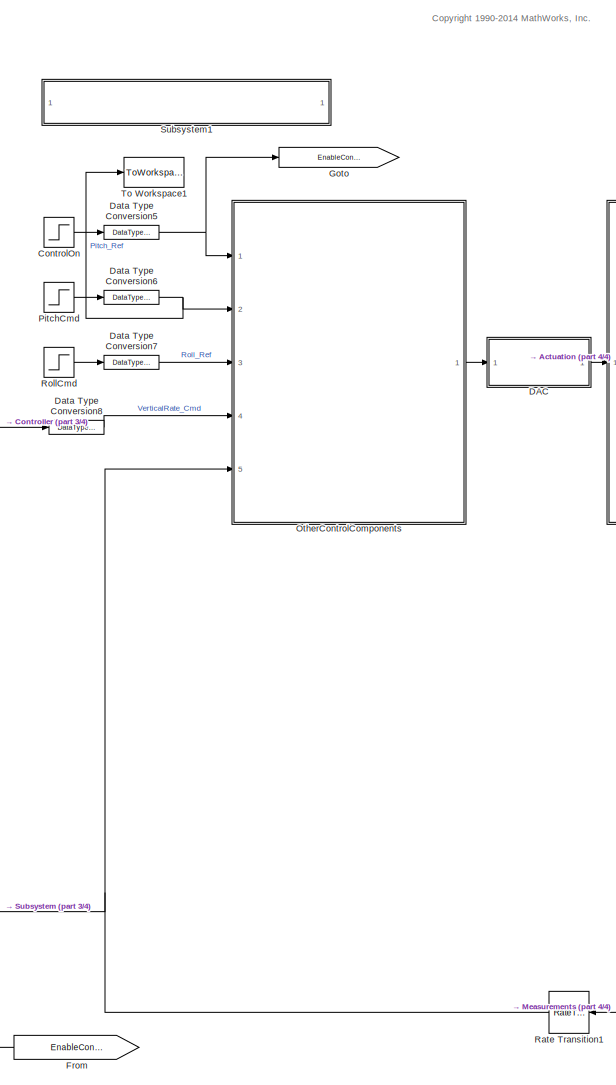
[diagram: root canvas - part 1/4, center side, full height]
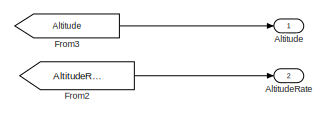
[diagram: root canvas - part 2/4, top right region]
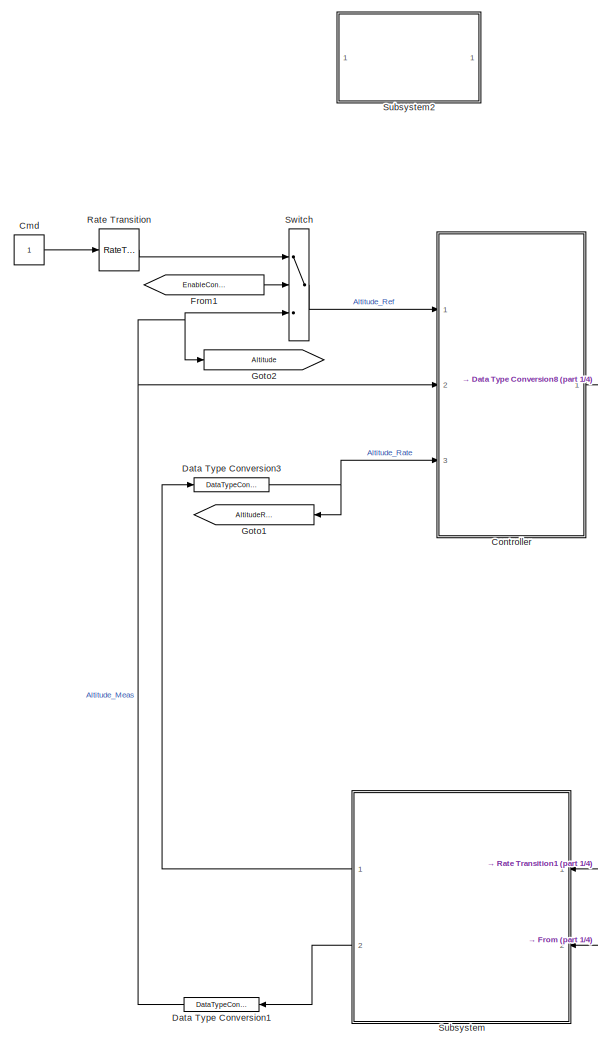
[diagram: root canvas - part 3/4, left side, full height]
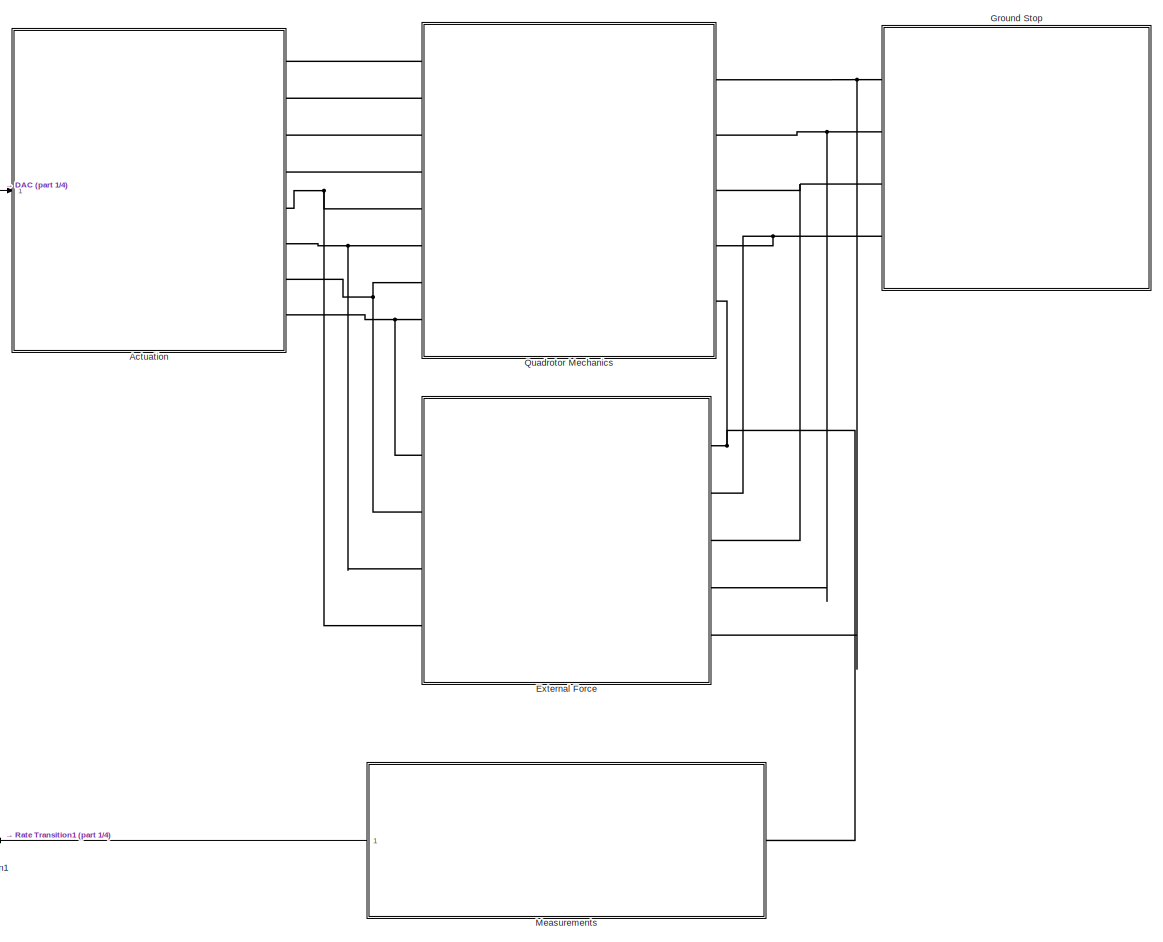
[diagram: root canvas - part 4/4, right side, full height]
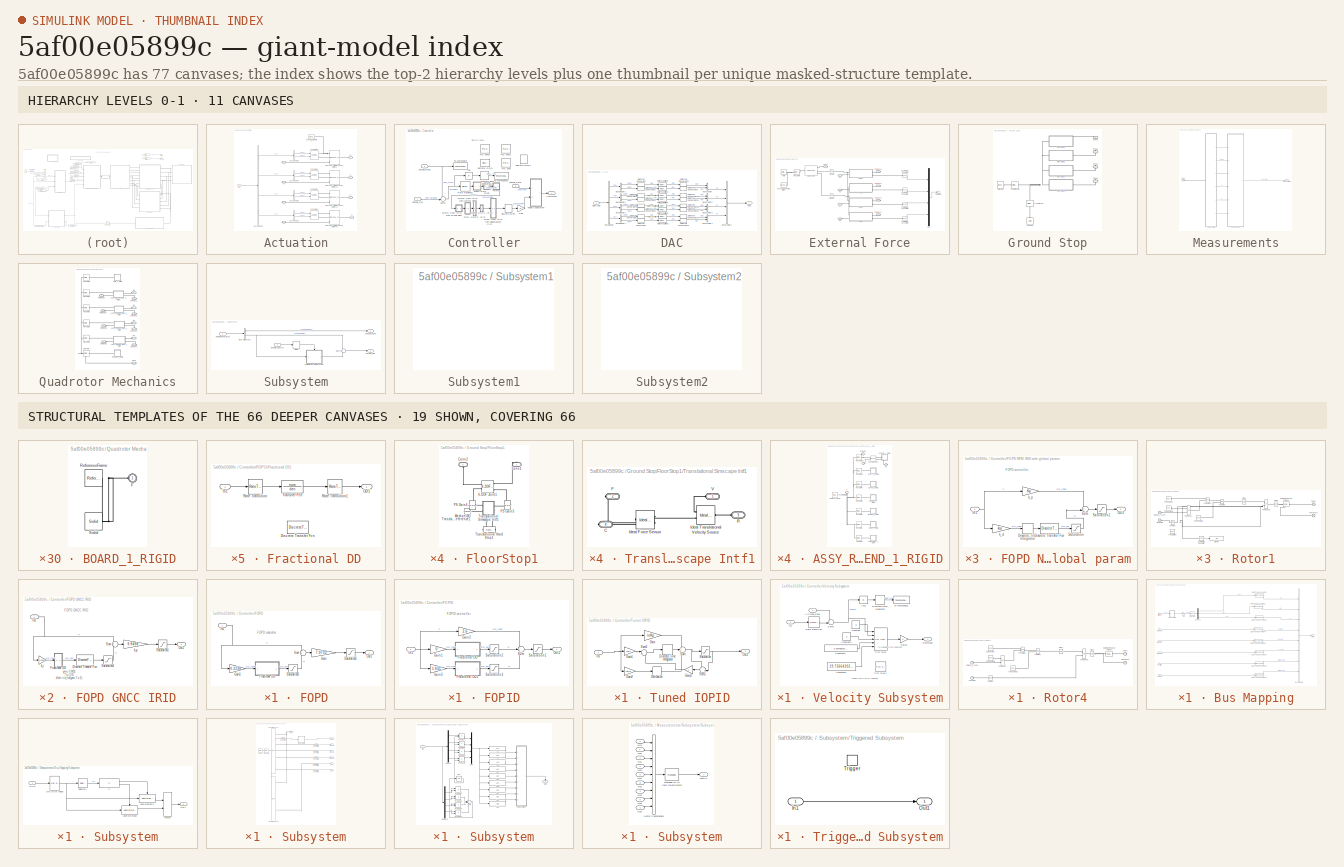
[diagram: thumbnail index - top-2 hierarchy levels (11 canvases) + 19 structural-template representatives of the remaining 66 canvases]
MODEL slx_5af00e05899c
KIND model
CONFIG AbsTol = auto
CONFIG EnableMultiTasking = on
CONFIG FixedStep = 1/100
CONFIG MaxStep = auto
CONFIG MinStep = auto
CONFIG RelTol = 1e-3
CONFIG SampleTimeConstraint = Unconstrained
CONFIG Solver = ode14x
CONFIG SolverName = ode14x
CONFIG StartTime = 0.0
CONFIG StopTime = 10
BLOCK [SubSystem] Actuation
  Ports = [1, 0, 0, 0, 0, 0, 8]
  RequestExecContextInheritance = off
BLOCK [Reference] Actuation/ P1 DCMotor  REF=Electrical_Library/
DCMotor
  Ports = [2, 0, 0, 0, 0, 0, 2]
  SourceBlock = Electrical_Library/\nDCMotor
BLOCK [Reference] Actuation/ P2 DCMotor  REF=Electrical_Library/
DCMotor
  Ports = [2, 0, 0, 0, 0, 0, 2]
  SourceBlock = Electrical_Library/\nDCMotor
BLOCK [Reference] Actuation/ P3 DCMotor  REF=Electrical_Library/
DCMotor
  Ports = [2, 0, 0, 0, 0, 0, 2]
  SourceBlock = Electrical_Library/\nDCMotor
BLOCK [Reference] Actuation/ P4 DCMotor  REF=Electrical_Library/
DCMotor
  Ports = [2, 0, 0, 0, 0, 0, 2]
  SourceBlock = Electrical_Library/\nDCMotor
BLOCK [BusSelector] Actuation/Bus Selector1
  OutputAsBus = off
  OutputSignals = Duty,Rev
  Ports = [1, 2]
BLOCK [BusSelector] Actuation/Bus Selector2
  OutputAsBus = off
  OutputSignals = P4,P3,P2,P1
  Ports = [1, 4]
BLOCK [BusSelector] Actuation/Bus Selector3
  OutputAsBus = off
  OutputSignals = Duty,Rev
  Ports = [1, 2]
BLOCK [BusSelector] Actuation/Bus Selector4
  OutputAsBus = off
  OutputSignals = Duty,Rev
  Ports = [1, 2]
BLOCK [BusSelector] Actuation/Bus Selector5
  OutputAsBus = off
  OutputSignals = Duty,Rev
  Ports = [1, 2]
BLOCK [Inport] Actuation/In1
  IconDisplay = Port number
  OutDataTypeStr = Bus: MotorCommands
BLOCK [Reference] Actuation/Simscape_SimMechanics_Interface  REF=Mechanical_Library/Simscape_SimMechanics_Interface
  Ports = [0, 0, 0, 0, 0, 3, 1]
  SourceBlock = Mechanical_Library/Simscape_SimMechanics_Interface
  SourceType = SubSystem
BLOCK [Reference] Actuation/Simscape_SimMechanics_Interface1  REF=Mechanical_Library/Simscape_SimMechanics_Interface
  Ports = [0, 0, 0, 0, 0, 3, 1]
  SourceBlock = Mechanical_Library/Simscape_SimMechanics_Interface
  SourceType = SubSystem
BLOCK [Reference] Actuation/Simscape_SimMechanics_Interface2  REF=Mechanical_Library/Simscape_SimMechanics_Interface
  Ports = [0, 0, 0, 0, 0, 3, 1]
  SourceBlock = Mechanical_Library/Simscape_SimMechanics_Interface
  SourceType = SubSystem
BLOCK [Reference] Actuation/Simscape_SimMechanics_Interface3  REF=Mechanical_Library/Simscape_SimMechanics_Interface
  Ports = [0, 0, 0, 0, 0, 3, 1]
  SourceBlock = Mechanical_Library/Simscape_SimMechanics_Interface
  SourceType = SubSystem
BLOCK [Reference] Actuation/Solver Configuration  REF=nesl_utility/Solver
Configuration
  Ports = [0, 0, 0, 0, 0, 0, 1]
  SourceBlock = nesl_utility/Solver\nConfiguration
  SourceProductBaseCode = SS
  SourceProductName = Simscape
  SourceType = Solver\nConfiguration
BLOCK [PMIOPort] Actuation/T1
  Port = 7
  Side = Right
BLOCK [PMIOPort] Actuation/T2
  Port = 4
  Side = Right
BLOCK [PMIOPort] Actuation/T3
  Port = 6
  Side = Right
BLOCK [PMIOPort] Actuation/T4
  Port = 5
  Side = Right
BLOCK [PMIOPort] Actuation/T5
  Side = Right
BLOCK [PMIOPort] Actuation/T6
  Port = 2
  Side = Right
BLOCK [PMIOPort] Actuation/T7
  Port = 3
  Side = Right
BLOCK [PMIOPort] Actuation/T8
  Port = 8
  Side = Right
BLOCK [Outport] Altitude
  IconDisplay = Port number
BLOCK [Outport] AltitudeRate
  IconDisplay = Port number
  Port = 2
BLOCK [Constant] Cmd
BLOCK [Step] ControlOn
  SampleTime = 0.01
  Time = 5
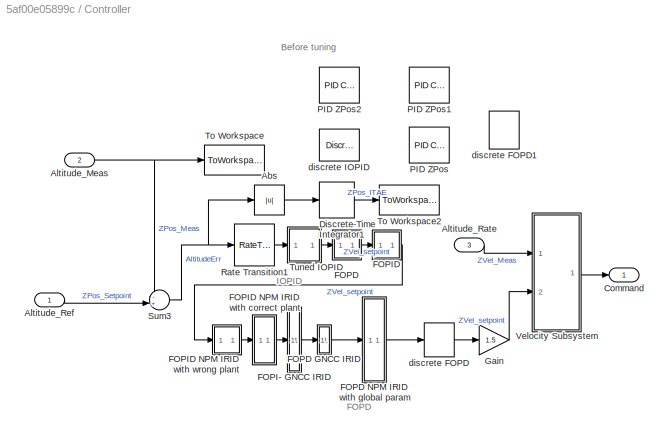
BLOCK [SubSystem] Controller
  Ports = [3, 1]
  RequestExecContextInheritance = off
  VariantControl = DesktopMode
BLOCK [Abs] Controller/Abs
  SaturateOnIntegerOverflow = off
BLOCK [Inport] Controller/Altitude_Meas
  IconDisplay = Port number
  Port = 2
BLOCK [Inport] Controller/Altitude_Rate
  IconDisplay = Port number
  Port = 3
BLOCK [Inport] Controller/Altitude_Ref
  IconDisplay = Port number
BLOCK [Outport] Controller/Command
  IconDisplay = Port number
BLOCK [DiscreteIntegrator] Controller/Discrete-Time Integrator1
  ICPrevOutput = DiscIntNeverNeededParam
  ICPrevScaledInput = DiscIntNeverNeededParam
  InitialConditionSetting = Auto
  Ports = [1, 1]
  SampleTime = -1
BLOCK [SubSystem] Controller/FOPD
  Commented = through
  Ports = [1, 1]
  RequestExecContextInheritance = off
BLOCK [SubSystem] Controller/FOPD GNCC IRID
  Commented = through
  Ports = [1, 1]
  RequestExecContextInheritance = off
  ShowPortLabels = none
BLOCK [DiscreteTransferFcn] Controller/FOPD GNCC IRID/Discrete Transfer Fcn
  Denominator = dfod.Denominator{1}
  InputPortMap = u0
  Numerator = dfod.num{1}
  Ports = [1, 1]
BLOCK [SubSystem] Controller/FOPD GNCC IRID/Fractional DD
  Commented = through
  Ports = [1, 1]
  RequestExecContextInheritance = off
BLOCK [DiscreteTransferFcn] Controller/FOPD GNCC IRID/Fractional DD/Discrete Transfer Fcn
  Commented = on
  Denominator = den
  InputPortMap = u0
  Numerator = num
  Ports = [1, 1]
  SampleTime = Ts
BLOCK [Inport] Controller/FOPD GNCC IRID/Fractional DD/In1
  IconDisplay = Port number
BLOCK [Outport] Controller/FOPD GNCC IRID/Fractional DD/Out1
  IconDisplay = Port number
BLOCK [RateTransition] Controller/FOPD GNCC IRID/Fractional DD/Rate Transition
  OutPortSampleTime = Ts
BLOCK [RateTransition] Controller/FOPD GNCC IRID/Fractional DD/Rate Transition1
  OutPortSampleTime = 0.01
BLOCK [TransferFcn] Controller/FOPD GNCC IRID/Fractional DD/Transfer Fcn
  Denominator = den
  Numerator = num
BLOCK [Inport] Controller/FOPD GNCC IRID/In1
  IconDisplay = Port number
BLOCK [Outport] Controller/FOPD GNCC IRID/Out1
  IconDisplay = Port number
BLOCK [Saturate] Controller/FOPD GNCC IRID/Saturation1
  Commented = through
  InputPortMap = u0
  LowerLimit = -2e3
  Ports = [1, 1]
  UpperLimit = 2e3
BLOCK [Saturate] Controller/FOPD GNCC IRID/Saturation2
  Commented = through
  InputPortMap = u0
  LowerLimit = -100
  Ports = [1, 1]
  UpperLimit = 100
BLOCK [Sum] Controller/FOPD GNCC IRID/Sum
  IconShape = round
  InputSameDT = off
  OutDataTypeStr = Inherit: Inherit via internal rule
  Ports = [2, 1]
  SaturateOnIntegerOverflow = off
BLOCK [Gain] Controller/FOPD GNCC IRID/k_i
  Gain = 0.1631
  OutDataTypeStr = Inherit: Inherit via internal rule
  ParamDataTypeStr = Inherit: Inherit via internal rule
  SaturateOnIntegerOverflow = off
BLOCK [Gain] Controller/FOPD GNCC IRID/k_p
  Gain = 9.9498
  OutDataTypeStr = Inherit: Inherit via internal rule
  ParamDataTypeStr = Inherit: Inherit via internal rule
  SaturateOnIntegerOverflow = off
BLOCK [SubSystem] Controller/FOPD NPM IRID with global param
  Ports = [1, 1]
  RequestExecContextInheritance = off
  ShowPortLabels = none
BLOCK [DiscreteTransferFcn] Controller/FOPD NPM IRID with global param/Discrete Transfer Fcn
  Denominator = dfod.Denominator{1,1}
  InputPortMap = u0
  Numerator = dfod.Num{1,1}
  Ports = [1, 1]
  SampleTime = 0.01
BLOCK [DiscreteIntegrator] Controller/FOPD NPM IRID with global param/Discrete-Time Integrator
  ICPrevOutput = DiscIntNeverNeededParam
  ICPrevScaledInput = DiscIntNeverNeededParam
  InitialConditionSetting = Auto
  Ports = [1, 1]
  SampleTime = 0.01
BLOCK [Inport] Controller/FOPD NPM IRID with global param/In1
  IconDisplay = Port number
BLOCK [Outport] Controller/FOPD NPM IRID with global param/Out1
  IconDisplay = Port number
BLOCK [Saturate] Controller/FOPD NPM IRID with global param/Saturation
  InputPortMap = u0
  LowerLimit = -100
  Ports = [1, 1]
  UpperLimit = 100
BLOCK [Saturate] Controller/FOPD NPM IRID with global param/Saturation1
  InputPortMap = u0
  LowerLimit = -2e3
  Ports = [1, 1]
  UpperLimit = 2e3
BLOCK [Sum] Controller/FOPD NPM IRID with global param/Sum
  IconShape = round
  InputSameDT = off
  Inputs = ++|
  OutDataTypeStr = Inherit: Inherit via internal rule
  Ports = [2, 1]
  SaturateOnIntegerOverflow = off
BLOCK [Gain] Controller/FOPD NPM IRID with global param/k_d
  Gain = Kd
  OutDataTypeStr = Inherit: Inherit via internal rule
  ParamDataTypeStr = Inherit: Inherit via internal rule
  SaturateOnIntegerOverflow = off
BLOCK [Gain] Controller/FOPD NPM IRID with global param/k_p
  Gain = Kp
  OutDataTypeStr = Inherit: Inherit via internal rule
  ParamDataTypeStr = Inherit: Inherit via internal rule
  SaturateOnIntegerOverflow = off
BLOCK [SubSystem] Controller/FOPD/Fractional DD
  Ports = [1, 1]
  RequestExecContextInheritance = off
BLOCK [DiscreteTransferFcn] Controller/FOPD/Fractional DD/Discrete Transfer Fcn
  Commented = on
  Denominator = den
  InputPortMap = u0
  Numerator = num
  Ports = [1, 1]
  SampleTime = Ts
BLOCK [Inport] Controller/FOPD/Fractional DD/In1
  IconDisplay = Port number
BLOCK [Outport] Controller/FOPD/Fractional DD/Out1
  IconDisplay = Port number
BLOCK [RateTransition] Controller/FOPD/Fractional DD/Rate Transition
  OutPortSampleTime = Ts
BLOCK [RateTransition] Controller/FOPD/Fractional DD/Rate Transition1
  OutPortSampleTime = 0.01
BLOCK [TransferFcn] Controller/FOPD/Fractional DD/Transfer Fcn
  Denominator = den
  Numerator = num
BLOCK [Gain] Controller/FOPD/Gain
  Gain = 7.9733
  OutDataTypeStr = Inherit: Inherit via internal rule
  ParamDataTypeStr = Inherit: Inherit via internal rule
  SaturateOnIntegerOverflow = off
BLOCK [Gain] Controller/FOPD/Gain1
  Gain = 0.2238
  OutDataTypeStr = Inherit: Inherit via internal rule
  ParamDataTypeStr = Inherit: Inherit via internal rule
  SaturateOnIntegerOverflow = off
BLOCK [Inport] Controller/FOPD/In1
  IconDisplay = Port number
BLOCK [Outport] Controller/FOPD/Out1
  IconDisplay = Port number
BLOCK [Saturate] Controller/FOPD/Saturation1
  InputPortMap = u0
  LowerLimit = -2e3
  Ports = [1, 1]
  UpperLimit = 2e3
BLOCK [Saturate] Controller/FOPD/Saturation2
  InputPortMap = u0
  LowerLimit = -100
  Ports = [1, 1]
  UpperLimit = 100
BLOCK [Sum] Controller/FOPD/Sum
  IconShape = round
  InputSameDT = off
  OutDataTypeStr = Inherit: Inherit via internal rule
  Ports = [2, 1]
  SaturateOnIntegerOverflow = off
BLOCK [SubSystem] Controller/FOPI- GNCC IRID
  Commented = through
  Ports = [1, 1]
  RequestExecContextInheritance = off
  ShowPortLabels = none
BLOCK [DiscreteTransferFcn] Controller/FOPI- GNCC IRID/Discrete Transfer Fcn
  Denominator = [1,-3.37446144143197,4.28685637101180,-2.49589501448942,0.632511381183536,-0.0490106070515154]
  InputPortMap = u0
  Numerator = [0.0101201839324044,-0.0228427827690589,0.0162967440497079,-0.00320636053105791,-0.000423005899049262,8.95094110425754e-05]
  Ports = [1, 1]
BLOCK [SubSystem] Controller/FOPI- GNCC IRID/Fractional DD
  Commented = through
  Ports = [1, 1]
  RequestExecContextInheritance = off
BLOCK [DiscreteTransferFcn] Controller/FOPI- GNCC IRID/Fractional DD/Discrete Transfer Fcn
  Commented = on
  Denominator = den
  InputPortMap = u0
  Numerator = num
  Ports = [1, 1]
  SampleTime = Ts
BLOCK [Inport] Controller/FOPI- GNCC IRID/Fractional DD/In1
  IconDisplay = Port number
BLOCK [Outport] Controller/FOPI- GNCC IRID/Fractional DD/Out1
  IconDisplay = Port number
BLOCK [RateTransition] Controller/FOPI- GNCC IRID/Fractional DD/Rate Transition
  OutPortSampleTime = Ts
BLOCK [RateTransition] Controller/FOPI- GNCC IRID/Fractional DD/Rate Transition1
  OutPortSampleTime = 0.01
BLOCK [TransferFcn] Controller/FOPI- GNCC IRID/Fractional DD/Transfer Fcn
  Denominator = den
  Numerator = num
BLOCK [Inport] Controller/FOPI- GNCC IRID/In1
  IconDisplay = Port number
BLOCK [Outport] Controller/FOPI- GNCC IRID/Out1
  IconDisplay = Port number
BLOCK [Saturate] Controller/FOPI- GNCC IRID/Saturation1
  Commented = through
  InputPortMap = u0
  LowerLimit = -2e3
  Ports = [1, 1]
  UpperLimit = 2e3
BLOCK [Saturate] Controller/FOPI- GNCC IRID/Saturation2
  Commented = through
  InputPortMap = u0
  LowerLimit = -100
  Ports = [1, 1]
  UpperLimit = 100
BLOCK [Sum] Controller/FOPI- GNCC IRID/Sum
  IconShape = round
  InputSameDT = off
  OutDataTypeStr = Inherit: Inherit via internal rule
  Ports = [2, 1]
  SaturateOnIntegerOverflow = off
BLOCK [Gain] Controller/FOPI- GNCC IRID/k_i
  Gain = 0.1631
  OutDataTypeStr = Inherit: Inherit via internal rule
  ParamDataTypeStr = Inherit: Inherit via internal rule
  SaturateOnIntegerOverflow = off
BLOCK [Gain] Controller/FOPI- GNCC IRID/k_p
  Gain = 9.9498
  OutDataTypeStr = Inherit: Inherit via internal rule
  ParamDataTypeStr = Inherit: Inherit via internal rule
  SaturateOnIntegerOverflow = off
BLOCK [SubSystem] Controller/FOPID
  Commented = through
  Ports = [1, 1]
  RequestExecContextInheritance = off
BLOCK [SubSystem] Controller/FOPID NPM IRID with correct plant
  Commented = through
  Ports = [1, 1]
  RequestExecContextInheritance = off
  ShowPortLabels = none
BLOCK [DiscreteTransferFcn] Controller/FOPID NPM IRID with correct plant/Discrete Transfer Fcn
  Denominator = [0.0935414346693485,-0.239486864955964,0.209356682991156,-0.0676440492684792,0.00352282535674651,0.000822432073709469]
  InputPortMap = u0
  Numerator = [1,-3.16336631308587,3.71959536925849,-1.96568707629962,0.436885459917815,-0.0273811687803932]
  Ports = [1, 1]
  SampleTime = 0.01
BLOCK [DiscreteIntegrator] Controller/FOPID NPM IRID with correct plant/Discrete-Time Integrator
  ICPrevOutput = DiscIntNeverNeededParam
  ICPrevScaledInput = DiscIntNeverNeededParam
  InitialConditionSetting = Auto
  Ports = [1, 1]
  SampleTime = 0.01
BLOCK [Inport] Controller/FOPID NPM IRID with correct plant/In1
  IconDisplay = Port number
BLOCK [Outport] Controller/FOPID NPM IRID with correct plant/Out1
  IconDisplay = Port number
BLOCK [Saturate] Controller/FOPID NPM IRID with correct plant/Saturation1
  InputPortMap = u0
  LowerLimit = -2e3
  Ports = [1, 1]
  UpperLimit = 2e3
BLOCK [Saturate] Controller/FOPID NPM IRID with correct plant/Saturation3
  InputPortMap = u0
  LowerLimit = -100
  Ports = [1, 1]
  UpperLimit = 100
BLOCK [Sum] Controller/FOPID NPM IRID with correct plant/Sum
  IconShape = round
  InputSameDT = off
  Inputs = ++|
  OutDataTypeStr = Inherit: Inherit via internal rule
  Ports = [2, 1]
  SaturateOnIntegerOverflow = off
BLOCK [Gain] Controller/FOPID NPM IRID with correct plant/k_d
  Gain = 0.9588
  OutDataTypeStr = Inherit: Inherit via internal rule
  ParamDataTypeStr = Inherit: Inherit via internal rule
  SaturateOnIntegerOverflow = off
BLOCK [Gain] Controller/FOPID NPM IRID with correct plant/k_p
  Gain = 2.6
  OutDataTypeStr = Inherit: Inherit via internal rule
  ParamDataTypeStr = Inherit: Inherit via internal rule
  SaturateOnIntegerOverflow = off
BLOCK [SubSystem] Controller/FOPID NPM IRID with wrong plant
  Commented = through
  Ports = [1, 1]
  RequestExecContextInheritance = off
  ShowPortLabels = none
BLOCK [DiscreteTransferFcn] Controller/FOPID NPM IRID with wrong plant/Discrete Transfer Fcn
  Denominator = [0.0935414346693485,-0.239486864955964,0.209356682991156,-0.0676440492684792,0.00352282535674651,0.000822432073709469]
  InputPortMap = u0
  Numerator = [1,-3.16336631308587,3.71959536925849,-1.96568707629962,0.436885459917815,-0.0273811687803932]
  Ports = [1, 1]
  SampleTime = 0.01
BLOCK [DiscreteIntegrator] Controller/FOPID NPM IRID with wrong plant/Discrete-Time Integrator
  ICPrevOutput = DiscIntNeverNeededParam
  ICPrevScaledInput = DiscIntNeverNeededParam
  InitialConditionSetting = Auto
  Ports = [1, 1]
  SampleTime = 0.01
BLOCK [Gain] Controller/FOPID NPM IRID with wrong plant/Gain2
  Gain = 2.6
  OutDataTypeStr = Inherit: Inherit via internal rule
  ParamDataTypeStr = Inherit: Inherit via internal rule
  SaturateOnIntegerOverflow = off
BLOCK [Gain] Controller/FOPID NPM IRID with wrong plant/Gain3
  Gain = 1.631
  OutDataTypeStr = Inherit: Inherit via internal rule
  ParamDataTypeStr = Inherit: Inherit via internal rule
  SaturateOnIntegerOverflow = off
BLOCK [Inport] Controller/FOPID NPM IRID with wrong plant/In1
  IconDisplay = Port number
BLOCK [Outport] Controller/FOPID NPM IRID with wrong plant/Out1
  IconDisplay = Port number
BLOCK [Saturate] Controller/FOPID NPM IRID with wrong plant/Saturation1
  InputPortMap = u0
  LowerLimit = -2e3
  Ports = [1, 1]
  UpperLimit = 2e3
BLOCK [Saturate] Controller/FOPID NPM IRID with wrong plant/Saturation3
  InputPortMap = u0
  LowerLimit = -100
  Ports = [1, 1]
  UpperLimit = 100
BLOCK [Sum] Controller/FOPID NPM IRID with wrong plant/Sum
  IconShape = round
  InputSameDT = off
  Inputs = +++
  OutDataTypeStr = Inherit: Inherit via internal rule
  Ports = [3, 1]
  SaturateOnIntegerOverflow = off
BLOCK [SubSystem] Controller/FOPID/Fractional DD
  Ports = [1, 1]
  RequestExecContextInheritance = off
BLOCK [DiscreteTransferFcn] Controller/FOPID/Fractional DD/Discrete Transfer Fcn
  Commented = on
  Denominator = den
  InputPortMap = u0
  Numerator = num
  Ports = [1, 1]
  SampleTime = Ts
BLOCK [Inport] Controller/FOPID/Fractional DD/In1
  IconDisplay = Port number
BLOCK [Outport] Controller/FOPID/Fractional DD/Out1
  IconDisplay = Port number
BLOCK [RateTransition] Controller/FOPID/Fractional DD/Rate Transition
  OutPortSampleTime = Ts
BLOCK [RateTransition] Controller/FOPID/Fractional DD/Rate Transition1
  OutPortSampleTime = 0.01
BLOCK [TransferFcn] Controller/FOPID/Fractional DD/Transfer Fcn
  Denominator = den
  Numerator = num
BLOCK [SubSystem] Controller/FOPID/Fractional DD1
  Ports = [1, 1]
  RequestExecContextInheritance = off
BLOCK [DiscreteTransferFcn] Controller/FOPID/Fractional DD1/Discrete Transfer Fcn
  Commented = on
  Denominator = den
  InputPortMap = u0
  Numerator = num
  Ports = [1, 1]
  SampleTime = Ts
BLOCK [Inport] Controller/FOPID/Fractional DD1/In1
  IconDisplay = Port number
BLOCK [Outport] Controller/FOPID/Fractional DD1/Out1
  IconDisplay = Port number
BLOCK [RateTransition] Controller/FOPID/Fractional DD1/Rate Transition
  OutPortSampleTime = Ts
BLOCK [RateTransition] Controller/FOPID/Fractional DD1/Rate Transition1
  OutPortSampleTime = 0.01
BLOCK [TransferFcn] Controller/FOPID/Fractional DD1/Transfer Fcn
  Denominator = den
  Numerator = num
BLOCK [Gain] Controller/FOPID/Gain1
  Gain = 0
  OutDataTypeStr = Inherit: Inherit via internal rule
  ParamDataTypeStr = Inherit: Inherit via internal rule
  SaturateOnIntegerOverflow = off
BLOCK [Gain] Controller/FOPID/Gain2
  Gain = 2.6
  OutDataTypeStr = Inherit: Inherit via internal rule
  ParamDataTypeStr = Inherit: Inherit via internal rule
  SaturateOnIntegerOverflow = off
BLOCK [Gain] Controller/FOPID/Gain3
  Gain = 1.631
  OutDataTypeStr = Inherit: Inherit via internal rule
  ParamDataTypeStr = Inherit: Inherit via internal rule
  SaturateOnIntegerOverflow = off
BLOCK [Inport] Controller/FOPID/In1
  IconDisplay = Port number
BLOCK [Outport] Controller/FOPID/Out1
  IconDisplay = Port number
BLOCK [Saturate] Controller/FOPID/Saturation1
  InputPortMap = u0
  LowerLimit = -2e3
  Ports = [1, 1]
  UpperLimit = 2e3
BLOCK [Saturate] Controller/FOPID/Saturation2
  InputPortMap = u0
  LowerLimit = -100
  Ports = [1, 1]
  UpperLimit = 100
BLOCK [Saturate] Controller/FOPID/Saturation3
  InputPortMap = u0
  LowerLimit = -100
  Ports = [1, 1]
  UpperLimit = 100
BLOCK [Sum] Controller/FOPID/Sum
  IconShape = round
  InputSameDT = off
  Inputs = +++
  OutDataTypeStr = Inherit: Inherit via internal rule
  Ports = [3, 1]
  SaturateOnIntegerOverflow = off
BLOCK [Gain] Controller/Gain
  Gain = 1.5
  OutDataTypeStr = Inherit: Inherit via internal rule
  ParamDataTypeStr = Inherit: Inherit via internal rule
  SaturateOnIntegerOverflow = off
BLOCK [Reference] Controller/PID ZPos  REF=simulink/Continuous/PID Controller
  Commented = on
  Ports = [1, 1]
  SourceBlock = simulink/Continuous/PID Controller
  SourceProductBaseCode = SL
  SourceProductName = Simulink
  SourceType = PID 1dof
BLOCK [Reference] Controller/PID ZPos1  REF=simulink/Continuous/PID Controller
  Commented = on
  Ports = [1, 1]
  SourceBlock = simulink/Continuous/PID Controller
  SourceProductBaseCode = SL
  SourceProductName = Simulink
  SourceType = PID 1dof
BLOCK [Reference] Controller/PID ZPos2  REF=simulink/Continuous/PID Controller
  Commented = on
  Ports = [1, 1]
  SourceBlock = simulink/Continuous/PID Controller
  SourceProductBaseCode = SL
  SourceProductName = Simulink
  SourceType = PID 1dof
BLOCK [RateTransition] Controller/Rate Transition1
  OutPortSampleTime = 0.01
BLOCK [Sum] Controller/Sum3
  IconShape = round
  InputSameDT = off
  Inputs = -+|
  OutDataTypeStr = Inherit: Inherit via internal rule
  Ports = [2, 1]
  SaturateOnIntegerOverflow = off
BLOCK [ToWorkspace] Controller/To Workspace
  FixptAsFi = on
  MaxDataPoints = inf
  Ports = [1]
  SampleTime = -1
  SaveFormat = Timeseries
  VariableName = Altitude_Meas
BLOCK [ToWorkspace] Controller/To Workspace2
  FixptAsFi = on
  MaxDataPoints = inf
  Ports = [1]
  SampleTime = -1
  SaveFormat = Timeseries
  VariableName = itae
BLOCK [SubSystem] Controller/Tuned IOPID
  Commented = through
  Ports = [1, 1]
  RequestExecContextInheritance = off
  ShowPortLabels = none
BLOCK [Derivative] Controller/Tuned IOPID/Derivative
BLOCK [DiscreteIntegrator] Controller/Tuned IOPID/Discrete-Time Integrator
  ICPrevOutput = DiscIntNeverNeededParam
  ICPrevScaledInput = DiscIntNeverNeededParam
  InitialConditionSetting = Auto
  Ports = [1, 1]
  SampleTime = -1
BLOCK [Gain] Controller/Tuned IOPID/Gain
  Gain = ioKp
  OutDataTypeStr = Inherit: Inherit via internal rule
  ParamDataTypeStr = Inherit: Inherit via internal rule
  SaturateOnIntegerOverflow = off
BLOCK [Gain] Controller/Tuned IOPID/Gain1
  Gain = ioKi
  OutDataTypeStr = Inherit: Inherit via internal rule
  ParamDataTypeStr = Inherit: Inherit via internal rule
  SaturateOnIntegerOverflow = off
BLOCK [Gain] Controller/Tuned IOPID/Gain2
  Gain = ioKd
  OutDataTypeStr = Inherit: Inherit via internal rule
  ParamDataTypeStr = Inherit: Inherit via internal rule
  SaturateOnIntegerOverflow = off
BLOCK [Gain] Controller/Tuned IOPID/Gain3
  OutDataTypeStr = Inherit: Inherit via internal rule
  ParamDataTypeStr = Inherit: Inherit via internal rule
  SaturateOnIntegerOverflow = off
BLOCK [Inport] Controller/Tuned IOPID/In1
  IconDisplay = Port number
BLOCK [Outport] Controller/Tuned IOPID/Out1
  IconDisplay = Port number
BLOCK [Saturate] Controller/Tuned IOPID/Saturation
  InputPortMap = u0
  LowerLimit = -10
  Ports = [1, 1]
  UpperLimit = 10
BLOCK [Sum] Controller/Tuned IOPID/Sum
  IconShape = round
  InputSameDT = off
  Inputs = +++
  OutDataTypeStr = Inherit: Inherit via internal rule
  Ports = [3, 1]
  SaturateOnIntegerOverflow = off
BLOCK [Sum] Controller/Tuned IOPID/Sum1
  IconShape = round
  InputSameDT = off
  Inputs = -+|
  OutDataTypeStr = Inherit: Inherit via internal rule
  Ports = [2, 1]
  SaturateOnIntegerOverflow = off
BLOCK [Sum] Controller/Tuned IOPID/Sum2
  IconShape = round
  InputSameDT = off
  Inputs = |++
  OutDataTypeStr = Inherit: Inherit via internal rule
  Ports = [2, 1]
  SaturateOnIntegerOverflow = off
BLOCK [SubSystem] Controller/Velocity Subsystem
  Ports = [2, 1]
  RequestExecContextInheritance = off
BLOCK [Abs] Controller/Velocity Subsystem/Abs1
  SaturateOnIntegerOverflow = off
BLOCK [Inport] Controller/Velocity Subsystem/Altitude_Rate
  IconDisplay = Port number
BLOCK [Outport] Controller/Velocity Subsystem/Command
  IconDisplay = Port number
BLOCK [Constant] Controller/Velocity Subsystem/Constant
  Value = 8
BLOCK [Constant] Controller/Velocity Subsystem/Constant1
  Value = 8
BLOCK [Constant] Controller/Velocity Subsystem/Constant2
  Value = 0.324786114614273
BLOCK [Constant] Controller/Velocity Subsystem/Constant3
  Value = 19.7366420228035
BLOCK [DiscreteIntegrator] Controller/Velocity Subsystem/Discrete-Time Integrator
  ICPrevOutput = DiscIntNeverNeededParam
  ICPrevScaledInput = DiscIntNeverNeededParam
  InitialConditionSetting = Auto
  Ports = [1, 1]
  SampleTime = -1
BLOCK [Gain] Controller/Velocity Subsystem/Gain1
  OutDataTypeStr = Inherit: Inherit via internal rule
  ParamDataTypeStr = Inherit: Inherit via internal rule
  SaturateOnIntegerOverflow = off
BLOCK [Inport] Controller/Velocity Subsystem/In2
  IconDisplay = Port number
  Port = 2
BLOCK [Reference] Controller/Velocity Subsystem/PID ZVel  REF=simulink/Continuous/PID Controller
  Ports = [5, 1]
  SourceBlock = simulink/Continuous/PID Controller
  SourceProductBaseCode = SL
  SourceProductName = Simulink
  SourceType = PID 1dof
BLOCK [Reference] Controller/Velocity Subsystem/PID ZVel1  REF=simulink/Continuous/PID Controller
  Commented = on
  Ports = [1, 1]
  SourceBlock = simulink/Continuous/PID Controller
  SourceProductBaseCode = SL
  SourceProductName = Simulink
  SourceType = PID 1dof
BLOCK [RateTransition] Controller/Velocity Subsystem/Rate Transition
  OutPortSampleTime = 0.01
BLOCK [Sum] Controller/Velocity Subsystem/Sum5
  IconShape = round
  InputSameDT = off
  Inputs = -+|
  OutDataTypeStr = Inherit: Inherit via internal rule
  Ports = [2, 1]
  SaturateOnIntegerOverflow = off
BLOCK [ToWorkspace] Controller/Velocity Subsystem/To Workspace1
  FixptAsFi = on
  MaxDataPoints = inf
  Ports = [1]
  SampleTime = -1
  SaveFormat = Timeseries
  VariableName = VelITAE
BLOCK [DiscreteTransferFcn] Controller/discrete FOPD
  Commented = through
  Denominator = [0.0101201839324044,-0.0228427827690589,0.0162967440497079,-0.00320636053105791,-0.000423005899049262,8.95094110425754e-05]
  InputPortMap = u0
  Numerator = [1.72350618609064,-5.70339892298403,7.11891293410561,-4.08227197470563,1.02223847578118,-0.0786444191365231]
  Ports = [1, 1]
  SampleTime = 0.01
BLOCK [DiscreteTransferFcn] Controller/discrete FOPD1
  Commented = on
  Denominator = [0.0101201839324044,-0.0228427827690589,0.0162967440497079,-0.00320636053105791,-0.000423005899049262,8.95094110425754e-05]
  InputPortMap = u0
  Numerator = [1.86511580254824,-6.20360416522752,7.77951053722034,-4.47930158754086,1.12529607747831,-0.0867420445559554]
  Ports = [1, 1]
  SampleTime = 0.01
BLOCK [DiscreteTransferFcn] Controller/discrete IOPID
  Commented = on
  Denominator = cd.den{1}
  Description = This one makes saturation, because no anti-windup
  InputPortMap = u0
  Numerator = cd.num{1}
  Ports = [1, 1]
  SampleTime = 0.01
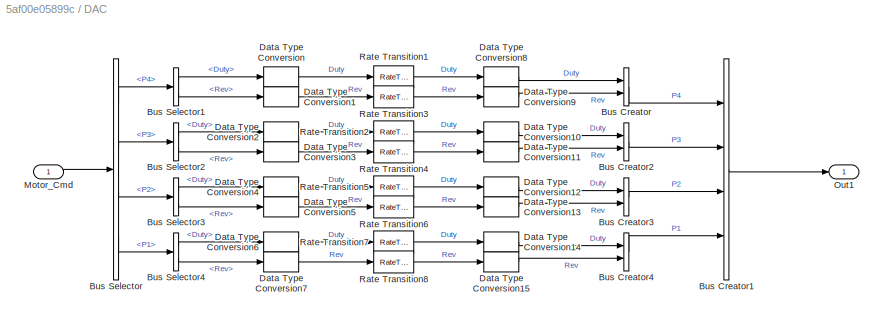
BLOCK [SubSystem] DAC
  Ports = [1, 1]
  RequestExecContextInheritance = off
BLOCK [BusCreator] DAC/Bus Creator
  DisplayOption = bar
  InheritFromInputs = on
  Inputs = 'Duty','Rev'
  OutDataTypeStr = Bus: PWMBus
  Ports = [2, 1]
BLOCK [BusCreator] DAC/Bus Creator1
  DisplayOption = bar
  InheritFromInputs = on
  Inputs = 'P4','P3','P2','P1'
  OutDataTypeStr = Bus: MotorCommands
  Ports = [4, 1]
BLOCK [BusCreator] DAC/Bus Creator2
  DisplayOption = bar
  InheritFromInputs = on
  Inputs = 'Duty','Rev'
  OutDataTypeStr = Bus: PWMBus
  Ports = [2, 1]
BLOCK [BusCreator] DAC/Bus Creator3
  DisplayOption = bar
  InheritFromInputs = on
  Inputs = 'Duty','Rev'
  OutDataTypeStr = Bus: PWMBus
  Ports = [2, 1]
BLOCK [BusCreator] DAC/Bus Creator4
  DisplayOption = bar
  InheritFromInputs = on
  Inputs = 'Duty','Rev'
  OutDataTypeStr = Bus: PWMBus
  Ports = [2, 1]
BLOCK [BusSelector] DAC/Bus Selector
  OutputAsBus = off
  OutputSignals = P4,P3,P2,P1
  Ports = [1, 4]
BLOCK [BusSelector] DAC/Bus Selector1
  OutputAsBus = off
  OutputSignals = Duty,Rev
  Ports = [1, 2]
BLOCK [BusSelector] DAC/Bus Selector2
  OutputAsBus = off
  OutputSignals = Duty,Rev
  Ports = [1, 2]
BLOCK [BusSelector] DAC/Bus Selector3
  OutputAsBus = off
  OutputSignals = Duty,Rev
  Ports = [1, 2]
BLOCK [BusSelector] DAC/Bus Selector4
  OutputAsBus = off
  OutputSignals = Duty,Rev
  Ports = [1, 2]
BLOCK [DataTypeConversion] DAC/Data Type Conversion
  OutDataTypeStr = double
  RndMeth = Floor
  SaturateOnIntegerOverflow = off
BLOCK [DataTypeConversion] DAC/Data Type Conversion1
  OutDataTypeStr = double
  RndMeth = Floor
  SaturateOnIntegerOverflow = off
BLOCK [DataTypeConversion] DAC/Data Type Conversion10
  OutDataTypeStr = single
  RndMeth = Floor
  SaturateOnIntegerOverflow = off
BLOCK [DataTypeConversion] DAC/Data Type Conversion11
  OutDataTypeStr = single
  RndMeth = Floor
  SaturateOnIntegerOverflow = off
BLOCK [DataTypeConversion] DAC/Data Type Conversion12
  OutDataTypeStr = single
  RndMeth = Floor
  SaturateOnIntegerOverflow = off
BLOCK [DataTypeConversion] DAC/Data Type Conversion13
  OutDataTypeStr = single
  RndMeth = Floor
  SaturateOnIntegerOverflow = off
BLOCK [DataTypeConversion] DAC/Data Type Conversion14
  OutDataTypeStr = single
  RndMeth = Floor
  SaturateOnIntegerOverflow = off
BLOCK [DataTypeConversion] DAC/Data Type Conversion15
  OutDataTypeStr = single
  RndMeth = Floor
  SaturateOnIntegerOverflow = off
BLOCK [DataTypeConversion] DAC/Data Type Conversion2
  OutDataTypeStr = double
  RndMeth = Floor
  SaturateOnIntegerOverflow = off
BLOCK [DataTypeConversion] DAC/Data Type Conversion3
  OutDataTypeStr = double
  RndMeth = Floor
  SaturateOnIntegerOverflow = off
BLOCK [DataTypeConversion] DAC/Data Type Conversion4
  OutDataTypeStr = double
  RndMeth = Floor
  SaturateOnIntegerOverflow = off
BLOCK [DataTypeConversion] DAC/Data Type Conversion5
  OutDataTypeStr = double
  RndMeth = Floor
  SaturateOnIntegerOverflow = off
BLOCK [DataTypeConversion] DAC/Data Type Conversion6
  OutDataTypeStr = double
  RndMeth = Floor
  SaturateOnIntegerOverflow = off
BLOCK [DataTypeConversion] DAC/Data Type Conversion7
  OutDataTypeStr = double
  RndMeth = Floor
  SaturateOnIntegerOverflow = off
BLOCK [DataTypeConversion] DAC/Data Type Conversion8
  OutDataTypeStr = single
  RndMeth = Floor
  SaturateOnIntegerOverflow = off
BLOCK [DataTypeConversion] DAC/Data Type Conversion9
  OutDataTypeStr = single
  RndMeth = Floor
  SaturateOnIntegerOverflow = off
BLOCK [Inport] DAC/Motor_Cmd
  IconDisplay = Port number
BLOCK [Outport] DAC/Out1
  IconDisplay = Port number
BLOCK [RateTransition] DAC/Rate Transition1
BLOCK [RateTransition] DAC/Rate Transition2
BLOCK [RateTransition] DAC/Rate Transition3
BLOCK [RateTransition] DAC/Rate Transition4
BLOCK [RateTransition] DAC/Rate Transition5
BLOCK [RateTransition] DAC/Rate Transition6
BLOCK [RateTransition] DAC/Rate Transition7
BLOCK [RateTransition] DAC/Rate Transition8
BLOCK [DataTypeConversion] Data Type Conversion1
  RndMeth = Floor
  SaturateOnIntegerOverflow = off
BLOCK [DataTypeConversion] Data Type Conversion3
  RndMeth = Floor
  SaturateOnIntegerOverflow = off
BLOCK [DataTypeConversion] Data Type Conversion5
  OutDataTypeStr = boolean
  RndMeth = Floor
  SaturateOnIntegerOverflow = off
BLOCK [DataTypeConversion] Data Type Conversion6
  OutDataTypeStr = single
  RndMeth = Floor
  SaturateOnIntegerOverflow = off
BLOCK [DataTypeConversion] Data Type Conversion7
  OutDataTypeStr = single
  RndMeth = Floor
  SaturateOnIntegerOverflow = off
BLOCK [DataTypeConversion] Data Type Conversion8
  OutDataTypeStr = single
  RndMeth = Floor
  SaturateOnIntegerOverflow = off
BLOCK [SubSystem] External Force
  Ports = [0, 0, 0, 0, 0, 4, 5]
  RequestExecContextInheritance = off
BLOCK [Reference] External Force/6-DOF Joint  REF=sm_lib/Joints/6-DOF Joint
  Ports = [0, 0, 0, 0, 0, 1, 4]
  SourceBlock = sm_lib/Joints/6-DOF Joint
  SourceProductBaseCode = MS
  SourceProductName = Simscape Multibody
  SourceType = 6-DOF Joint
BLOCK [PMIOPort] External Force/6DoF
  Port = 5
  Side = Right
BLOCK [PMIOPort] External Force/ExtForce1
  Port = 9
  Side = Right
BLOCK [PMIOPort] External Force/ExtForce2
  Port = 8
  Side = Right
BLOCK [PMIOPort] External Force/ExtForce3
  Port = 7
  Side = Right
BLOCK [PMIOPort] External Force/ExtForce4
  Port = 6
  Side = Right
BLOCK [Reference] External Force/MechanismConfiguration  REF=sm_lib/Utilities/Mechanism
Configuration
  Ports = [0, 0, 0, 0, 0, 0, 1]
  SourceBlock = sm_lib/Utilities/Mechanism\nConfiguration
  SourceProductBaseCode = MS
  SourceProductName = Simscape Multibody
  SourceType = Mechanism\nConfiguration
BLOCK [Mux] External Force/Mux
  DisplayOption = bar
  Ports = [4, 1]
BLOCK [Reference] External Force/PS Gain  REF=fl_ps_legacy_lib/Legacy Physical
Signals/Functions/PS Gain
  Ports = [0, 0, 0, 0, 0, 1, 1]
  SourceBlock = fl_ps_legacy_lib/Legacy Physical\nSignals/Functions/PS Gain
  SourceProductBaseCode = SS
  SourceProductName = Simscape
  SourceType = PS Gain
BLOCK [Reference] External Force/PS Gain1  REF=fl_ps_legacy_lib/Legacy Physical
Signals/Functions/PS Gain
  Ports = [0, 0, 0, 0, 0, 1, 1]
  SourceBlock = fl_ps_legacy_lib/Legacy Physical\nSignals/Functions/PS Gain
  SourceProductBaseCode = SS
  SourceProductName = Simscape
  SourceType = PS Gain
BLOCK [Reference] External Force/PS-Simulink Converter6  REF=nesl_utility/PS-Simulink
Converter
  Ports = [0, 1, 0, 0, 0, 1]
  SourceBlock = nesl_utility/PS-Simulink\nConverter
  SourceProductBaseCode = SS
  SourceProductName = Simscape
  SourceType = PS-Simulink\nConverter
BLOCK [Reference] External Force/PS-Simulink Converter7  REF=nesl_utility/PS-Simulink
Converter
  Ports = [0, 1, 0, 0, 0, 1]
  SourceBlock = nesl_utility/PS-Simulink\nConverter
  SourceProductBaseCode = SS
  SourceProductName = Simscape
  SourceType = PS-Simulink\nConverter
BLOCK [Reference] External Force/PS-Simulink Converter8  REF=nesl_utility/PS-Simulink
Converter
  Ports = [0, 1, 0, 0, 0, 1]
  SourceBlock = nesl_utility/PS-Simulink\nConverter
  SourceProductBaseCode = SS
  SourceProductName = Simscape
  SourceType = PS-Simulink\nConverter
BLOCK [Reference] External Force/PS-Simulink Converter9  REF=nesl_utility/PS-Simulink
Converter
  Ports = [0, 1, 0, 0, 0, 1]
  SourceBlock = nesl_utility/PS-Simulink\nConverter
  SourceProductBaseCode = SS
  SourceProductName = Simscape
  SourceType = PS-Simulink\nConverter
BLOCK [SubSystem] External Force/Rotor1
  Ports = [0, 0, 0, 0, 0, 2, 2]
  RequestExecContextInheritance = off
BLOCK [PMIOPort] External Force/Rotor1/AlphaProp
  Port = 2
  Side = Left
BLOCK [Display] External Force/Rotor1/Display
  Decimation = 1
  Ports = [1]
BLOCK [Reference] External Force/Rotor1/External Force  and Torque1  REF=sm_lib/Forces and
Torques/External Force
and Torque
  Ports = [0, 0, 0, 0, 0, 1, 1]
  SourceBlock = sm_lib/Forces and\nTorques/External Force\nand Torque
  SourceProductBaseCode = MS
  SourceProductName = Simscape Multibody
  SourceType = External Force\nand Torque
BLOCK [PMIOPort] External Force/Rotor1/Omega_x_body
  Side = Left
BLOCK [Reference] External Force/Rotor1/PS Constant  REF=fl_lib/Physical Signals/Sources/PS Constant
  Ports = [0, 0, 0, 0, 0, 0, 1]
  SourceBlock = fl_lib/Physical Signals/Sources/PS Constant
  SourceProductBaseCode = SS
  SourceProductName = Simscape
  SourceType = PS Constant
BLOCK [Reference] External Force/Rotor1/PS Constant1  REF=fl_lib/Physical Signals/Sources/PS Constant
  Ports = [0, 0, 0, 0, 0, 0, 1]
  SourceBlock = fl_lib/Physical Signals/Sources/PS Constant
  SourceProductBaseCode = SS
  SourceProductName = Simscape
  SourceType = PS Constant
BLOCK [Reference] External Force/Rotor1/PS Constant2  REF=fl_lib/Physical Signals/Sources/PS Constant
  Ports = [0, 0, 0, 0, 0, 0, 1]
  SourceBlock = fl_lib/Physical Signals/Sources/PS Constant
  SourceProductBaseCode = SS
  SourceProductName = Simscape
  SourceType = PS Constant
BLOCK [Reference] External Force/Rotor1/PS Divide  REF=fl_ps_legacy_lib/Legacy Physical
Signals/Functions/PS Divide
  Ports = [0, 0, 0, 0, 0, 2, 1]
  SourceBlock = fl_ps_legacy_lib/Legacy Physical\nSignals/Functions/PS Divide
  SourceProductBaseCode = SS
  SourceProductName = Simscape
  SourceType = PS Divide
BLOCK [Reference] External Force/Rotor1/PS Gain1  REF=fl_ps_legacy_lib/Legacy Physical
Signals/Functions/PS Gain
  Ports = [0, 0, 0, 0, 0, 1, 1]
  SourceBlock = fl_ps_legacy_lib/Legacy Physical\nSignals/Functions/PS Gain
  SourceProductBaseCode = SS
  SourceProductName = Simscape
  SourceType = PS Gain
BLOCK [Reference] External Force/Rotor1/PS Product  REF=fl_ps_legacy_lib/Legacy Physical
Signals/Functions/PS Product
  Ports = [0, 0, 0, 0, 0, 2, 1]
  SourceBlock = fl_ps_legacy_lib/Legacy Physical\nSignals/Functions/PS Product
  SourceProductBaseCode = SS
  SourceProductName = Simscape
  SourceType = PS Product
BLOCK [Reference] External Force/Rotor1/PS Product1  REF=fl_ps_legacy_lib/Legacy Physical
Signals/Functions/PS Product
  Ports = [0, 0, 0, 0, 0, 2, 1]
  SourceBlock = fl_ps_legacy_lib/Legacy Physical\nSignals/Functions/PS Product
  SourceProductBaseCode = SS
  SourceProductName = Simscape
  SourceType = PS Product
BLOCK [Reference] External Force/Rotor1/PS Saturation  REF=fl_ps_legacy_lib/Legacy Physical
Signals/Nonlinear Operators/PS Saturation
  Commented = on
  Ports = [0, 0, 0, 0, 0, 1, 1]
  SourceBlock = fl_ps_legacy_lib/Legacy Physical\nSignals/Nonlinear Operators/PS Saturation
  SourceProductBaseCode = SS
  SourceProductName = Simscape
  SourceType = PS Saturation
BLOCK [Reference] External Force/Rotor1/PS Subtract  REF=fl_ps_legacy_lib/Legacy Physical
Signals/Functions/PS Subtract
  Ports = [0, 0, 0, 0, 0, 2, 1]
  SourceBlock = fl_ps_legacy_lib/Legacy Physical\nSignals/Functions/PS Subtract
  SourceProductBaseCode = SS
  SourceProductName = Simscape
  SourceType = PS Subtract
BLOCK [Reference] External Force/Rotor1/PS-Simulink Converter  REF=nesl_utility/PS-Simulink
Converter
  Ports = [0, 1, 0, 0, 0, 1]
  SourceBlock = nesl_utility/PS-Simulink\nConverter
  SourceProductBaseCode = SS
  SourceProductName = Simscape
  SourceType = PS-Simulink\nConverter
BLOCK [Reference] External Force/Rotor1/Pitch1  REF=fl_ps_legacy_lib/Legacy Physical
Signals/Functions/PS Gain
  Ports = [0, 0, 0, 0, 0, 1, 1]
  SourceBlock = fl_ps_legacy_lib/Legacy Physical\nSignals/Functions/PS Gain
  SourceProductBaseCode = SS
  SourceProductName = Simscape
  SourceType = PS Gain
BLOCK [Reference] External Force/Rotor1/Pitch2  REF=fl_ps_legacy_lib/Legacy Physical
Signals/Functions/PS Gain
  Ports = [0, 0, 0, 0, 0, 1, 1]
  SourceBlock = fl_ps_legacy_lib/Legacy Physical\nSignals/Functions/PS Gain
  SourceProductBaseCode = SS
  SourceProductName = Simscape
  SourceType = PS Gain
BLOCK [PMIOPort] External Force/Rotor1/Prop Speed
  Port = 4
  Side = Right
BLOCK [PMIOPort] External Force/Rotor1/Thrust
  Port = 3
  Side = Right
BLOCK [SubSystem] External Force/Rotor2
  Ports = [0, 0, 0, 0, 0, 2, 2]
  RequestExecContextInheritance = off
BLOCK [PMIOPort] External Force/Rotor2/AlphaProp
  Port = 2
  Side = Left
BLOCK [Display] External Force/Rotor2/Display
  Decimation = 1
  Ports = [1]
BLOCK [Reference] External Force/Rotor2/External Force  and Torque2  REF=sm_lib/Forces and
Torques/External Force
and Torque
  Ports = [0, 0, 0, 0, 0, 1, 1]
  SourceBlock = sm_lib/Forces and\nTorques/External Force\nand Torque
  SourceProductBaseCode = MS
  SourceProductName = Simscape Multibody
  SourceType = External Force\nand Torque
BLOCK [PMIOPort] External Force/Rotor2/Omega_x_body
  Side = Left
BLOCK [Reference] External Force/Rotor2/PS Constant  REF=fl_lib/Physical Signals/Sources/PS Constant
  Ports = [0, 0, 0, 0, 0, 0, 1]
  SourceBlock = fl_lib/Physical Signals/Sources/PS Constant
  SourceProductBaseCode = SS
  SourceProductName = Simscape
  SourceType = PS Constant
BLOCK [Reference] External Force/Rotor2/PS Constant1  REF=fl_lib/Physical Signals/Sources/PS Constant
  Ports = [0, 0, 0, 0, 0, 0, 1]
  SourceBlock = fl_lib/Physical Signals/Sources/PS Constant
  SourceProductBaseCode = SS
  SourceProductName = Simscape
  SourceType = PS Constant
BLOCK [Reference] External Force/Rotor2/PS Constant2  REF=fl_lib/Physical Signals/Sources/PS Constant
  Ports = [0, 0, 0, 0, 0, 0, 1]
  SourceBlock = fl_lib/Physical Signals/Sources/PS Constant
  SourceProductBaseCode = SS
  SourceProductName = Simscape
  SourceType = PS Constant
BLOCK [Reference] External Force/Rotor2/PS Divide  REF=fl_ps_legacy_lib/Legacy Physical
Signals/Functions/PS Divide
  Ports = [0, 0, 0, 0, 0, 2, 1]
  SourceBlock = fl_ps_legacy_lib/Legacy Physical\nSignals/Functions/PS Divide
  SourceProductBaseCode = SS
  SourceProductName = Simscape
  SourceType = PS Divide
BLOCK [Reference] External Force/Rotor2/PS Gain1  REF=fl_ps_legacy_lib/Legacy Physical
Signals/Functions/PS Gain
  Ports = [0, 0, 0, 0, 0, 1, 1]
  SourceBlock = fl_ps_legacy_lib/Legacy Physical\nSignals/Functions/PS Gain
  SourceProductBaseCode = SS
  SourceProductName = Simscape
  SourceType = PS Gain
BLOCK [Reference] External Force/Rotor2/PS Product  REF=fl_ps_legacy_lib/Legacy Physical
Signals/Functions/PS Product
  Ports = [0, 0, 0, 0, 0, 2, 1]
  SourceBlock = fl_ps_legacy_lib/Legacy Physical\nSignals/Functions/PS Product
  SourceProductBaseCode = SS
  SourceProductName = Simscape
  SourceType = PS Product
BLOCK [Reference] External Force/Rotor2/PS Product1  REF=fl_ps_legacy_lib/Legacy Physical
Signals/Functions/PS Product
  Ports = [0, 0, 0, 0, 0, 2, 1]
  SourceBlock = fl_ps_legacy_lib/Legacy Physical\nSignals/Functions/PS Product
  SourceProductBaseCode = SS
  SourceProductName = Simscape
  SourceType = PS Product
BLOCK [Reference] External Force/Rotor2/PS Saturation  REF=fl_ps_legacy_lib/Legacy Physical
Signals/Nonlinear Operators/PS Saturation
  Commented = on
  Ports = [0, 0, 0, 0, 0, 1, 1]
  SourceBlock = fl_ps_legacy_lib/Legacy Physical\nSignals/Nonlinear Operators/PS Saturation
  SourceProductBaseCode = SS
  SourceProductName = Simscape
  SourceType = PS Saturation
BLOCK [Reference] External Force/Rotor2/PS Subtract  REF=fl_ps_legacy_lib/Legacy Physical
Signals/Functions/PS Subtract
  Ports = [0, 0, 0, 0, 0, 2, 1]
  SourceBlock = fl_ps_legacy_lib/Legacy Physical\nSignals/Functions/PS Subtract
  SourceProductBaseCode = SS
  SourceProductName = Simscape
  SourceType = PS Subtract
BLOCK [Reference] External Force/Rotor2/PS-Simulink Converter  REF=nesl_utility/PS-Simulink
Converter
  Ports = [0, 1, 0, 0, 0, 1]
  SourceBlock = nesl_utility/PS-Simulink\nConverter
  SourceProductBaseCode = SS
  SourceProductName = Simscape
  SourceType = PS-Simulink\nConverter
BLOCK [Reference] External Force/Rotor2/Pitch1  REF=fl_ps_legacy_lib/Legacy Physical
Signals/Functions/PS Gain
  Ports = [0, 0, 0, 0, 0, 1, 1]
  SourceBlock = fl_ps_legacy_lib/Legacy Physical\nSignals/Functions/PS Gain
  SourceProductBaseCode = SS
  SourceProductName = Simscape
  SourceType = PS Gain
BLOCK [Reference] External Force/Rotor2/Pitch2  REF=fl_ps_legacy_lib/Legacy Physical
Signals/Functions/PS Gain
  Ports = [0, 0, 0, 0, 0, 1, 1]
  SourceBlock = fl_ps_legacy_lib/Legacy Physical\nSignals/Functions/PS Gain
  SourceProductBaseCode = SS
  SourceProductName = Simscape
  SourceType = PS Gain
BLOCK [PMIOPort] External Force/Rotor2/Prop Speed
  Port = 4
  Side = Right
BLOCK [PMIOPort] External Force/Rotor2/Thrust1
  Port = 3
  Side = Right
BLOCK [SubSystem] External Force/Rotor3
  Ports = [0, 0, 0, 0, 0, 2, 2]
  RequestExecContextInheritance = off
BLOCK [PMIOPort] External Force/Rotor3/AlphaProp
  Port = 2
  Side = Left
BLOCK [Display] External Force/Rotor3/Display
  Decimation = 1
  Ports = [1]
BLOCK [Reference] External Force/Rotor3/External Force  and Torque3  REF=sm_lib/Forces and
Torques/External Force
and Torque
  Ports = [0, 0, 0, 0, 0, 1, 1]
  SourceBlock = sm_lib/Forces and\nTorques/External Force\nand Torque
  SourceProductBaseCode = MS
  SourceProductName = Simscape Multibody
  SourceType = External Force\nand Torque
BLOCK [PMIOPort] External Force/Rotor3/Omega_x_body
  Side = Left
BLOCK [Reference] External Force/Rotor3/PS Constant  REF=fl_lib/Physical Signals/Sources/PS Constant
  Ports = [0, 0, 0, 0, 0, 0, 1]
  SourceBlock = fl_lib/Physical Signals/Sources/PS Constant
  SourceProductBaseCode = SS
  SourceProductName = Simscape
  SourceType = PS Constant
BLOCK [Reference] External Force/Rotor3/PS Constant1  REF=fl_lib/Physical Signals/Sources/PS Constant
  Ports = [0, 0, 0, 0, 0, 0, 1]
  SourceBlock = fl_lib/Physical Signals/Sources/PS Constant
  SourceProductBaseCode = SS
  SourceProductName = Simscape
  SourceType = PS Constant
BLOCK [Reference] External Force/Rotor3/PS Constant2  REF=fl_lib/Physical Signals/Sources/PS Constant
  Ports = [0, 0, 0, 0, 0, 0, 1]
  SourceBlock = fl_lib/Physical Signals/Sources/PS Constant
  SourceProductBaseCode = SS
  SourceProductName = Simscape
  SourceType = PS Constant
BLOCK [Reference] External Force/Rotor3/PS Divide  REF=fl_ps_legacy_lib/Legacy Physical
Signals/Functions/PS Divide
  Ports = [0, 0, 0, 0, 0, 2, 1]
  SourceBlock = fl_ps_legacy_lib/Legacy Physical\nSignals/Functions/PS Divide
  SourceProductBaseCode = SS
  SourceProductName = Simscape
  SourceType = PS Divide
BLOCK [Reference] External Force/Rotor3/PS Gain1  REF=fl_ps_legacy_lib/Legacy Physical
Signals/Functions/PS Gain
  Ports = [0, 0, 0, 0, 0, 1, 1]
  SourceBlock = fl_ps_legacy_lib/Legacy Physical\nSignals/Functions/PS Gain
  SourceProductBaseCode = SS
  SourceProductName = Simscape
  SourceType = PS Gain
BLOCK [Reference] External Force/Rotor3/PS Product  REF=fl_ps_legacy_lib/Legacy Physical
Signals/Functions/PS Product
  Ports = [0, 0, 0, 0, 0, 2, 1]
  SourceBlock = fl_ps_legacy_lib/Legacy Physical\nSignals/Functions/PS Product
  SourceProductBaseCode = SS
  SourceProductName = Simscape
  SourceType = PS Product
BLOCK [Reference] External Force/Rotor3/PS Product1  REF=fl_ps_legacy_lib/Legacy Physical
Signals/Functions/PS Product
  Ports = [0, 0, 0, 0, 0, 2, 1]
  SourceBlock = fl_ps_legacy_lib/Legacy Physical\nSignals/Functions/PS Product
  SourceProductBaseCode = SS
  SourceProductName = Simscape
  SourceType = PS Product
BLOCK [Reference] External Force/Rotor3/PS Saturation  REF=fl_ps_legacy_lib/Legacy Physical
Signals/Nonlinear Operators/PS Saturation
  Commented = on
  Ports = [0, 0, 0, 0, 0, 1, 1]
  SourceBlock = fl_ps_legacy_lib/Legacy Physical\nSignals/Nonlinear Operators/PS Saturation
  SourceProductBaseCode = SS
  SourceProductName = Simscape
  SourceType = PS Saturation
BLOCK [Reference] External Force/Rotor3/PS Subtract  REF=fl_ps_legacy_lib/Legacy Physical
Signals/Functions/PS Subtract
  Ports = [0, 0, 0, 0, 0, 2, 1]
  SourceBlock = fl_ps_legacy_lib/Legacy Physical\nSignals/Functions/PS Subtract
  SourceProductBaseCode = SS
  SourceProductName = Simscape
  SourceType = PS Subtract
BLOCK [Reference] External Force/Rotor3/PS-Simulink Converter  REF=nesl_utility/PS-Simulink
Converter
  Ports = [0, 1, 0, 0, 0, 1]
  SourceBlock = nesl_utility/PS-Simulink\nConverter
  SourceProductBaseCode = SS
  SourceProductName = Simscape
  SourceType = PS-Simulink\nConverter
BLOCK [Reference] External Force/Rotor3/Pitch1  REF=fl_ps_legacy_lib/Legacy Physical
Signals/Functions/PS Gain
  Ports = [0, 0, 0, 0, 0, 1, 1]
  SourceBlock = fl_ps_legacy_lib/Legacy Physical\nSignals/Functions/PS Gain
  SourceProductBaseCode = SS
  SourceProductName = Simscape
  SourceType = PS Gain
BLOCK [Reference] External Force/Rotor3/Pitch3  REF=fl_ps_legacy_lib/Legacy Physical
Signals/Functions/PS Gain
  Ports = [0, 0, 0, 0, 0, 1, 1]
  SourceBlock = fl_ps_legacy_lib/Legacy Physical\nSignals/Functions/PS Gain
  SourceProductBaseCode = SS
  SourceProductName = Simscape
  SourceType = PS Gain
BLOCK [PMIOPort] External Force/Rotor3/Prop Speed
  Port = 4
  Side = Right
BLOCK [PMIOPort] External Force/Rotor3/Thrust
  Port = 3
  Side = Right
BLOCK [SubSystem] External Force/Rotor4
  Ports = [0, 0, 0, 0, 0, 2, 2]
  RequestExecContextInheritance = off
BLOCK [PMIOPort] External Force/Rotor4/AlphaProp
  Port = 2
  Side = Left
BLOCK [Reference] External Force/Rotor4/External Force  and Torque4  REF=sm_lib/Forces and
Torques/External Force
and Torque
  Ports = [0, 0, 0, 0, 0, 1, 1]
  SourceBlock = sm_lib/Forces and\nTorques/External Force\nand Torque
  SourceProductBaseCode = MS
  SourceProductName = Simscape Multibody
  SourceType = External Force\nand Torque
BLOCK [PMIOPort] External Force/Rotor4/Omega_x_body
  Side = Left
BLOCK [Reference] External Force/Rotor4/PS Constant  REF=fl_lib/Physical Signals/Sources/PS Constant
  Ports = [0, 0, 0, 0, 0, 0, 1]
  SourceBlock = fl_lib/Physical Signals/Sources/PS Constant
  SourceProductBaseCode = SS
  SourceProductName = Simscape
  SourceType = PS Constant
BLOCK [Reference] External Force/Rotor4/PS Constant1  REF=fl_lib/Physical Signals/Sources/PS Constant
  Ports = [0, 0, 0, 0, 0, 0, 1]
  SourceBlock = fl_lib/Physical Signals/Sources/PS Constant
  SourceProductBaseCode = SS
  SourceProductName = Simscape
  SourceType = PS Constant
BLOCK [Reference] External Force/Rotor4/PS Constant2  REF=fl_lib/Physical Signals/Sources/PS Constant
  Ports = [0, 0, 0, 0, 0, 0, 1]
  SourceBlock = fl_lib/Physical Signals/Sources/PS Constant
  SourceProductBaseCode = SS
  SourceProductName = Simscape
  SourceType = PS Constant
BLOCK [Reference] External Force/Rotor4/PS Divide  REF=fl_ps_legacy_lib/Legacy Physical
Signals/Functions/PS Divide
  Ports = [0, 0, 0, 0, 0, 2, 1]
  SourceBlock = fl_ps_legacy_lib/Legacy Physical\nSignals/Functions/PS Divide
  SourceProductBaseCode = SS
  SourceProductName = Simscape
  SourceType = PS Divide
BLOCK [Reference] External Force/Rotor4/PS Gain1  REF=fl_ps_legacy_lib/Legacy Physical
Signals/Functions/PS Gain
  Ports = [0, 0, 0, 0, 0, 1, 1]
  SourceBlock = fl_ps_legacy_lib/Legacy Physical\nSignals/Functions/PS Gain
  SourceProductBaseCode = SS
  SourceProductName = Simscape
  SourceType = PS Gain
BLOCK [Reference] External Force/Rotor4/PS Product  REF=fl_ps_legacy_lib/Legacy Physical
Signals/Functions/PS Product
  Ports = [0, 0, 0, 0, 0, 2, 1]
  SourceBlock = fl_ps_legacy_lib/Legacy Physical\nSignals/Functions/PS Product
  SourceProductBaseCode = SS
  SourceProductName = Simscape
  SourceType = PS Product
BLOCK [Reference] External Force/Rotor4/PS Product1  REF=fl_ps_legacy_lib/Legacy Physical
Signals/Functions/PS Product
  Ports = [0, 0, 0, 0, 0, 2, 1]
  SourceBlock = fl_ps_legacy_lib/Legacy Physical\nSignals/Functions/PS Product
  SourceProductBaseCode = SS
  SourceProductName = Simscape
  SourceType = PS Product
BLOCK [Reference] External Force/Rotor4/PS Subtract  REF=fl_ps_legacy_lib/Legacy Physical
Signals/Functions/PS Subtract
  Ports = [0, 0, 0, 0, 0, 2, 1]
  SourceBlock = fl_ps_legacy_lib/Legacy Physical\nSignals/Functions/PS Subtract
  SourceProductBaseCode = SS
  SourceProductName = Simscape
  SourceType = PS Subtract
BLOCK [Reference] External Force/Rotor4/Pitch1  REF=fl_ps_legacy_lib/Legacy Physical
Signals/Functions/PS Gain
  Ports = [0, 0, 0, 0, 0, 1, 1]
  SourceBlock = fl_ps_legacy_lib/Legacy Physical\nSignals/Functions/PS Gain
  SourceProductBaseCode = SS
  SourceProductName = Simscape
  SourceType = PS Gain
BLOCK [Reference] External Force/Rotor4/Pitch4  REF=fl_ps_legacy_lib/Legacy Physical
Signals/Functions/PS Gain
  Ports = [0, 0, 0, 0, 0, 1, 1]
  SourceBlock = fl_ps_legacy_lib/Legacy Physical\nSignals/Functions/PS Gain
  SourceProductBaseCode = SS
  SourceProductName = Simscape
  SourceType = PS Gain
BLOCK [PMIOPort] External Force/Rotor4/Prop Speed
  Port = 4
  Side = Right
BLOCK [PMIOPort] External Force/Rotor4/Thrust
  Port = 3
  Side = Right
BLOCK [Terminator] External Force/Terminator
BLOCK [Reference] External Force/Transform6  REF=sm_lib/Frames and
Transforms/Rigid
Transform
  Ports = [0, 0, 0, 0, 0, 1, 1]
  SourceBlock = sm_lib/Frames and\nTransforms/Rigid\nTransform
  SourceProductBaseCode = MS
  SourceProductName = Simscape Multibody
  SourceType = Rigid\nTransform
BLOCK [Reference] External Force/World  REF=sm_lib/Frames and
Transforms/World Frame
  Ports = [0, 0, 0, 0, 0, 0, 1]
  SourceBlock = sm_lib/Frames and\nTransforms/World Frame
  SourceProductBaseCode = MS
  SourceProductName = Simscape Multibody
  SourceType = World Frame
BLOCK [PMIOPort] External Force/w1
  Port = 4
  Side = Left
BLOCK [PMIOPort] External Force/w2
  Port = 3
  Side = Left
BLOCK [PMIOPort] External Force/w3
  Port = 2
  Side = Left
BLOCK [PMIOPort] External Force/w4
  Side = Left
BLOCK [From] From
  GotoTag = EnableControl
BLOCK [From] From1
  GotoTag = EnableControl
BLOCK [From] From2
  GotoTag = AltitudeRate
BLOCK [From] From3
  GotoTag = Altitude
BLOCK [Goto] Goto
  GotoTag = EnableControl
BLOCK [Goto] Goto1
  GotoTag = AltitudeRate
BLOCK [Goto] Goto2
  GotoTag = Altitude
BLOCK [SubSystem] Ground Stop
  Ports = [0, 0, 0, 0, 0, 0, 4]
  RequestExecContextInheritance = off
BLOCK [PMIOPort] Ground Stop/Conn1
  Side = Right
BLOCK [PMIOPort] Ground Stop/Conn2
  Port = 2
  Side = Right
BLOCK [PMIOPort] Ground Stop/Conn3
  Port = 3
  Side = Right
BLOCK [PMIOPort] Ground Stop/Conn4
  Port = 4
  Side = Right
BLOCK [SubSystem] Ground Stop/FloorStop1
  Ports = [0, 0, 0, 0, 0, 1, 1]
  RequestExecContextInheritance = off
BLOCK [Reference] Ground Stop/FloorStop1/6-DOF Joint1  REF=sm_lib/Joints/6-DOF Joint
  Ports = [0, 0, 0, 0, 0, 2, 3]
  SourceBlock = sm_lib/Joints/6-DOF Joint
  SourceProductBaseCode = MS
  SourceProductName = Simscape Multibody
  SourceType = 6-DOF Joint
BLOCK [PMIOPort] Ground Stop/FloorStop1/Conn1
  Side = Right
BLOCK [PMIOPort] Ground Stop/FloorStop1/Conn2
  Port = 2
  Side = Left
BLOCK [Reference] Ground Stop/FloorStop1/Mechanical Translational Reference1  REF=fl_lib/Mechanical/Translational
Elements/Mechanical
Translational
Reference
  Ports = [0, 0, 0, 0, 0, 1]
  SourceBlock = fl_lib/Mechanical/Translational\nElements/Mechanical\nTranslational\nReference
  SourceProductBaseCode = SS
  SourceProductName = Simscape
  SourceType = Mechanical\nTranslational\nReference
BLOCK [Reference] Ground Stop/FloorStop1/PS Gain3  REF=fl_ps_legacy_lib/Legacy Physical
Signals/Functions/PS Gain
  Ports = [0, 0, 0, 0, 0, 1, 1]
  SourceBlock = fl_ps_legacy_lib/Legacy Physical\nSignals/Functions/PS Gain
  SourceProductBaseCode = SS
  SourceProductName = Simscape
  SourceType = PS Gain
BLOCK [Reference] Ground Stop/FloorStop1/PS Gain4  REF=fl_ps_legacy_lib/Legacy Physical
Signals/Functions/PS Gain
  Ports = [0, 0, 0, 0, 0, 1, 1]
  SourceBlock = fl_ps_legacy_lib/Legacy Physical\nSignals/Functions/PS Gain
  SourceProductBaseCode = SS
  SourceProductName = Simscape
  SourceType = PS Gain
BLOCK [Reference] Ground Stop/FloorStop1/Translational Hard Stop1  REF=fl_lib/Mechanical/Translational
Elements/Translational Hard
Stop
  Ports = [0, 0, 0, 0, 0, 1, 1]
  SourceBlock = fl_lib/Mechanical/Translational\nElements/Translational Hard\nStop
  SourceProductBaseCode = SS
  SourceProductName = Simscape
  SourceType = Translational Hard\nStop
BLOCK [SubSystem] Ground Stop/FloorStop1/Translational Simscape Intf1
  Ports = [0, 0, 0, 0, 0, 2, 2]
  RequestExecContextInheritance = off
BLOCK [PMIOPort] Ground Stop/FloorStop1/Translational Simscape Intf1/C
  Port = 4
  Side = Right
BLOCK [PMIOPort] Ground Stop/FloorStop1/Translational Simscape Intf1/F
  Port = 2
  Side = Right
BLOCK [Reference] Ground Stop/FloorStop1/Translational Simscape Intf1/Ideal Force Sensor  REF=fl_lib/Mechanical/Mechanical Sensors/Ideal Force Sensor
  Ports = [0, 0, 0, 0, 0, 1, 2]
  SourceBlock = fl_lib/Mechanical/Mechanical Sensors/Ideal Force Sensor
  SourceProductBaseCode = SS
  SourceProductName = Simscape
  SourceType = Ideal Force Sensor
BLOCK [Reference] Ground Stop/FloorStop1/Translational Simscape Intf1/Ideal Translational Velocity Source  REF=fl_lib/Mechanical/Mechanical Sources/Ideal Translational
Velocity Source
  Ports = [0, 0, 0, 0, 0, 1, 2]
  SourceBlock = fl_lib/Mechanical/Mechanical Sources/Ideal Translational\nVelocity Source
  SourceProductBaseCode = SS
  SourceProductName = Simscape
  SourceType = Ideal Translational\nVelocity Source
BLOCK [PMIOPort] Ground Stop/FloorStop1/Translational Simscape Intf1/R
  Port = 3
  Side = Left
BLOCK [PMIOPort] Ground Stop/FloorStop1/Translational Simscape Intf1/V
  Side = Left
BLOCK [SubSystem] Ground Stop/FloorStop2
  Ports = [0, 0, 0, 0, 0, 1, 1]
  RequestExecContextInheritance = off
BLOCK [Reference] Ground Stop/FloorStop2/6-DOF Joint1  REF=sm_lib/Joints/6-DOF Joint
  Ports = [0, 0, 0, 0, 0, 2, 3]
  SourceBlock = sm_lib/Joints/6-DOF Joint
  SourceProductBaseCode = MS
  SourceProductName = Simscape Multibody
  SourceType = 6-DOF Joint
BLOCK [PMIOPort] Ground Stop/FloorStop2/Conn1
  Side = Right
BLOCK [PMIOPort] Ground Stop/FloorStop2/Conn2
  Port = 2
  Side = Left
BLOCK [Reference] Ground Stop/FloorStop2/Mechanical Translational Reference1  REF=fl_lib/Mechanical/Translational
Elements/Mechanical
Translational
Reference
  Ports = [0, 0, 0, 0, 0, 1]
  SourceBlock = fl_lib/Mechanical/Translational\nElements/Mechanical\nTranslational\nReference
  SourceProductBaseCode = SS
  SourceProductName = Simscape
  SourceType = Mechanical\nTranslational\nReference
BLOCK [Reference] Ground Stop/FloorStop2/PS Gain3  REF=fl_ps_legacy_lib/Legacy Physical
Signals/Functions/PS Gain
  Ports = [0, 0, 0, 0, 0, 1, 1]
  SourceBlock = fl_ps_legacy_lib/Legacy Physical\nSignals/Functions/PS Gain
  SourceProductBaseCode = SS
  SourceProductName = Simscape
  SourceType = PS Gain
BLOCK [Reference] Ground Stop/FloorStop2/PS Gain4  REF=fl_ps_legacy_lib/Legacy Physical
Signals/Functions/PS Gain
  Ports = [0, 0, 0, 0, 0, 1, 1]
  SourceBlock = fl_ps_legacy_lib/Legacy Physical\nSignals/Functions/PS Gain
  SourceProductBaseCode = SS
  SourceProductName = Simscape
  SourceType = PS Gain
BLOCK [Reference] Ground Stop/FloorStop2/Translational Hard Stop1  REF=fl_lib/Mechanical/Translational
Elements/Translational Hard
Stop
  Ports = [0, 0, 0, 0, 0, 1, 1]
  SourceBlock = fl_lib/Mechanical/Translational\nElements/Translational Hard\nStop
  SourceProductBaseCode = SS
  SourceProductName = Simscape
  SourceType = Translational Hard\nStop
BLOCK [SubSystem] Ground Stop/FloorStop2/Translational Simscape Intf1
  Ports = [0, 0, 0, 0, 0, 2, 2]
  RequestExecContextInheritance = off
BLOCK [PMIOPort] Ground Stop/FloorStop2/Translational Simscape Intf1/C
  Port = 4
  Side = Right
BLOCK [PMIOPort] Ground Stop/FloorStop2/Translational Simscape Intf1/F
  Port = 2
  Side = Right
BLOCK [Reference] Ground Stop/FloorStop2/Translational Simscape Intf1/Ideal Force Sensor  REF=fl_lib/Mechanical/Mechanical Sensors/Ideal Force Sensor
  Ports = [0, 0, 0, 0, 0, 1, 2]
  SourceBlock = fl_lib/Mechanical/Mechanical Sensors/Ideal Force Sensor
  SourceProductBaseCode = SS
  SourceProductName = Simscape
  SourceType = Ideal Force Sensor
BLOCK [Reference] Ground Stop/FloorStop2/Translational Simscape Intf1/Ideal Translational Velocity Source  REF=fl_lib/Mechanical/Mechanical Sources/Ideal Translational
Velocity Source
  Ports = [0, 0, 0, 0, 0, 1, 2]
  SourceBlock = fl_lib/Mechanical/Mechanical Sources/Ideal Translational\nVelocity Source
  SourceProductBaseCode = SS
  SourceProductName = Simscape
  SourceType = Ideal Translational\nVelocity Source
BLOCK [PMIOPort] Ground Stop/FloorStop2/Translational Simscape Intf1/R
  Port = 3
  Side = Left
BLOCK [PMIOPort] Ground Stop/FloorStop2/Translational Simscape Intf1/V
  Side = Left
BLOCK [SubSystem] Ground Stop/FloorStop3
  Ports = [0, 0, 0, 0, 0, 1, 1]
  RequestExecContextInheritance = off
BLOCK [Reference] Ground Stop/FloorStop3/6-DOF Joint1  REF=sm_lib/Joints/6-DOF Joint
  Ports = [0, 0, 0, 0, 0, 2, 3]
  SourceBlock = sm_lib/Joints/6-DOF Joint
  SourceProductBaseCode = MS
  SourceProductName = Simscape Multibody
  SourceType = 6-DOF Joint
BLOCK [PMIOPort] Ground Stop/FloorStop3/Conn1
  Side = Right
BLOCK [PMIOPort] Ground Stop/FloorStop3/Conn2
  Port = 2
  Side = Left
BLOCK [Reference] Ground Stop/FloorStop3/Mechanical Translational Reference1  REF=fl_lib/Mechanical/Translational
Elements/Mechanical
Translational
Reference
  Ports = [0, 0, 0, 0, 0, 1]
  SourceBlock = fl_lib/Mechanical/Translational\nElements/Mechanical\nTranslational\nReference
  SourceProductBaseCode = SS
  SourceProductName = Simscape
  SourceType = Mechanical\nTranslational\nReference
BLOCK [Reference] Ground Stop/FloorStop3/PS Gain3  REF=fl_ps_legacy_lib/Legacy Physical
Signals/Functions/PS Gain
  Ports = [0, 0, 0, 0, 0, 1, 1]
  SourceBlock = fl_ps_legacy_lib/Legacy Physical\nSignals/Functions/PS Gain
  SourceProductBaseCode = SS
  SourceProductName = Simscape
  SourceType = PS Gain
BLOCK [Reference] Ground Stop/FloorStop3/PS Gain4  REF=fl_ps_legacy_lib/Legacy Physical
Signals/Functions/PS Gain
  Ports = [0, 0, 0, 0, 0, 1, 1]
  SourceBlock = fl_ps_legacy_lib/Legacy Physical\nSignals/Functions/PS Gain
  SourceProductBaseCode = SS
  SourceProductName = Simscape
  SourceType = PS Gain
BLOCK [Reference] Ground Stop/FloorStop3/Translational Hard Stop1  REF=fl_lib/Mechanical/Translational
Elements/Translational Hard
Stop
  Ports = [0, 0, 0, 0, 0, 1, 1]
  SourceBlock = fl_lib/Mechanical/Translational\nElements/Translational Hard\nStop
  SourceProductBaseCode = SS
  SourceProductName = Simscape
  SourceType = Translational Hard\nStop
BLOCK [SubSystem] Ground Stop/FloorStop3/Translational Simscape Intf1
  Ports = [0, 0, 0, 0, 0, 2, 2]
  RequestExecContextInheritance = off
BLOCK [PMIOPort] Ground Stop/FloorStop3/Translational Simscape Intf1/C
  Port = 4
  Side = Right
BLOCK [PMIOPort] Ground Stop/FloorStop3/Translational Simscape Intf1/F
  Port = 2
  Side = Right
BLOCK [Reference] Ground Stop/FloorStop3/Translational Simscape Intf1/Ideal Force Sensor  REF=fl_lib/Mechanical/Mechanical Sensors/Ideal Force Sensor
  Ports = [0, 0, 0, 0, 0, 1, 2]
  SourceBlock = fl_lib/Mechanical/Mechanical Sensors/Ideal Force Sensor
  SourceProductBaseCode = SS
  SourceProductName = Simscape
  SourceType = Ideal Force Sensor
BLOCK [Reference] Ground Stop/FloorStop3/Translational Simscape Intf1/Ideal Translational Velocity Source  REF=fl_lib/Mechanical/Mechanical Sources/Ideal Translational
Velocity Source
  Ports = [0, 0, 0, 0, 0, 1, 2]
  SourceBlock = fl_lib/Mechanical/Mechanical Sources/Ideal Translational\nVelocity Source
  SourceProductBaseCode = SS
  SourceProductName = Simscape
  SourceType = Ideal Translational\nVelocity Source
BLOCK [PMIOPort] Ground Stop/FloorStop3/Translational Simscape Intf1/R
  Port = 3
  Side = Left
BLOCK [PMIOPort] Ground Stop/FloorStop3/Translational Simscape Intf1/V
  Side = Left
BLOCK [SubSystem] Ground Stop/FloorStop4
  Ports = [0, 0, 0, 0, 0, 1, 1]
  RequestExecContextInheritance = off
BLOCK [Reference] Ground Stop/FloorStop4/6-DOF Joint1  REF=sm_lib/Joints/6-DOF Joint
  Ports = [0, 0, 0, 0, 0, 2, 3]
  SourceBlock = sm_lib/Joints/6-DOF Joint
  SourceProductBaseCode = MS
  SourceProductName = Simscape Multibody
  SourceType = 6-DOF Joint
BLOCK [PMIOPort] Ground Stop/FloorStop4/Conn1
  Side = Right
BLOCK [PMIOPort] Ground Stop/FloorStop4/Conn2
  Port = 2
  Side = Left
BLOCK [Reference] Ground Stop/FloorStop4/Mechanical Translational Reference1  REF=fl_lib/Mechanical/Translational
Elements/Mechanical
Translational
Reference
  Ports = [0, 0, 0, 0, 0, 1]
  SourceBlock = fl_lib/Mechanical/Translational\nElements/Mechanical\nTranslational\nReference
  SourceProductBaseCode = SS
  SourceProductName = Simscape
  SourceType = Mechanical\nTranslational\nReference
BLOCK [Reference] Ground Stop/FloorStop4/PS Gain3  REF=fl_ps_legacy_lib/Legacy Physical
Signals/Functions/PS Gain
  Ports = [0, 0, 0, 0, 0, 1, 1]
  SourceBlock = fl_ps_legacy_lib/Legacy Physical\nSignals/Functions/PS Gain
  SourceProductBaseCode = SS
  SourceProductName = Simscape
  SourceType = PS Gain
BLOCK [Reference] Ground Stop/FloorStop4/PS Gain4  REF=fl_ps_legacy_lib/Legacy Physical
Signals/Functions/PS Gain
  Ports = [0, 0, 0, 0, 0, 1, 1]
  SourceBlock = fl_ps_legacy_lib/Legacy Physical\nSignals/Functions/PS Gain
  SourceProductBaseCode = SS
  SourceProductName = Simscape
  SourceType = PS Gain
BLOCK [Reference] Ground Stop/FloorStop4/Translational Hard Stop1  REF=fl_lib/Mechanical/Translational
Elements/Translational Hard
Stop
  Ports = [0, 0, 0, 0, 0, 1, 1]
  SourceBlock = fl_lib/Mechanical/Translational\nElements/Translational Hard\nStop
  SourceProductBaseCode = SS
  SourceProductName = Simscape
  SourceType = Translational Hard\nStop
BLOCK [SubSystem] Ground Stop/FloorStop4/Translational Simscape Intf1
  Ports = [0, 0, 0, 0, 0, 2, 2]
  RequestExecContextInheritance = off
BLOCK [PMIOPort] Ground Stop/FloorStop4/Translational Simscape Intf1/C
  Port = 4
  Side = Right
BLOCK [PMIOPort] Ground Stop/FloorStop4/Translational Simscape Intf1/F
  Port = 2
  Side = Right
BLOCK [Reference] Ground Stop/FloorStop4/Translational Simscape Intf1/Ideal Force Sensor  REF=fl_lib/Mechanical/Mechanical Sensors/Ideal Force Sensor
  Ports = [0, 0, 0, 0, 0, 1, 2]
  SourceBlock = fl_lib/Mechanical/Mechanical Sensors/Ideal Force Sensor
  SourceProductBaseCode = SS
  SourceProductName = Simscape
  SourceType = Ideal Force Sensor
BLOCK [Reference] Ground Stop/FloorStop4/Translational Simscape Intf1/Ideal Translational Velocity Source  REF=fl_lib/Mechanical/Mechanical Sources/Ideal Translational
Velocity Source
  Ports = [0, 0, 0, 0, 0, 1, 2]
  SourceBlock = fl_lib/Mechanical/Mechanical Sources/Ideal Translational\nVelocity Source
  SourceProductBaseCode = SS
  SourceProductName = Simscape
  SourceType = Ideal Translational\nVelocity Source
BLOCK [PMIOPort] Ground Stop/FloorStop4/Translational Simscape Intf1/R
  Port = 3
  Side = Left
BLOCK [PMIOPort] Ground Stop/FloorStop4/Translational Simscape Intf1/V
  Side = Left
BLOCK [Reference] Ground Stop/Ground  REF=sm_lib/Body Elements/Solid
  Ports = [0, 0, 0, 0, 0, 0, 1]
  SourceBlock = sm_lib/Body Elements/Solid
  SourceProductBaseCode = MS
  SourceProductName = Simscape Multibody
  SourceType = Solid
BLOCK [Reference] Ground Stop/Transform1  REF=sm_lib/Frames and
Transforms/Rigid
Transform
  Ports = [0, 0, 0, 0, 0, 1, 1]
  SourceBlock = sm_lib/Frames and\nTransforms/Rigid\nTransform
  SourceProductBaseCode = MS
  SourceProductName = Simscape Multibody
  SourceType = Rigid\nTransform
BLOCK [Reference] Ground Stop/Transform6  REF=sm_lib/Frames and
Transforms/Rigid
Transform
  Ports = [0, 0, 0, 0, 0, 1, 1]
  SourceBlock = sm_lib/Frames and\nTransforms/Rigid\nTransform
  SourceProductBaseCode = MS
  SourceProductName = Simscape Multibody
  SourceType = Rigid\nTransform
BLOCK [Reference] Ground Stop/World1  REF=sm_lib/Frames and
Transforms/World Frame
  Ports = [0, 0, 0, 0, 0, 0, 1]
  SourceBlock = sm_lib/Frames and\nTransforms/World Frame
  SourceProductBaseCode = MS
  SourceProductName = Simscape Multibody
  SourceType = World Frame
BLOCK [SubSystem] Measurements
  Ports = [0, 1, 0, 0, 0, 1]
  RequestExecContextInheritance = off
BLOCK [PMIOPort] Measurements/6dof 
  Side = Left
BLOCK [Outport] Measurements/Body States
  IconDisplay = Port number
  OutDataTypeStr = Bus: NavigationStates
BLOCK [SubSystem] Measurements/Bus Mapping
  Ports = [6, 1]
  RequestExecContextInheritance = off
BLOCK [Inport] Measurements/Bus Mapping/Attitude
  IconDisplay = Port number
BLOCK [BusCreator] Measurements/Bus Mapping/Bus Creator1
  DisplayOption = bar
  InheritFromInputs = on
  Inputs = 8
  NonVirtualBus = on
  OutDataTypeStr = Bus: NavigationStates
  Ports = [8, 1]
BLOCK [DataTypeConversion] Measurements/Bus Mapping/Data Type Conversion
  RndMeth = Floor
  SaturateOnIntegerOverflow = off
BLOCK [DataTypeConversion] Measurements/Bus Mapping/Data Type Conversion1
  RndMeth = Floor
  SaturateOnIntegerOverflow = off
BLOCK [DataTypeConversion] Measurements/Bus Mapping/Data Type Conversion2
  RndMeth = Floor
  SaturateOnIntegerOverflow = off
BLOCK [DataTypeConversion] Measurements/Bus Mapping/Data Type Conversion3
  RndMeth = Floor
  SaturateOnIntegerOverflow = off
BLOCK [DataTypeConversion] Measurements/Bus Mapping/Data Type Conversion4
  RndMeth = Floor
  SaturateOnIntegerOverflow = off
BLOCK [DataTypeConversion] Measurements/Bus Mapping/Data Type Conversion5
  RndMeth = Floor
  SaturateOnIntegerOverflow = off
BLOCK [DataTypeConversion] Measurements/Bus Mapping/Data Type Conversion6
  RndMeth = Floor
  SaturateOnIntegerOverflow = off
BLOCK [DataTypeConversion] Measurements/Bus Mapping/Data Type Conversion7
  RndMeth = Floor
  SaturateOnIntegerOverflow = off
BLOCK [Demux] Measurements/Bus Mapping/Demux1
  DisplayOption = bar
  Outputs = 3
  Ports = [1, 3]
BLOCK [Gain] Measurements/Bus Mapping/Gain
  Gain = 180/pi
  OutDataTypeStr = Inherit: Inherit via internal rule
  ParamDataTypeStr = Inherit: Inherit via internal rule
  SaturateOnIntegerOverflow = off
BLOCK [Inport] Measurements/Bus Mapping/OmegaX
  IconDisplay = Port number
  Port = 2
BLOCK [Inport] Measurements/Bus Mapping/OmegaY
  IconDisplay = Port number
  Port = 3
BLOCK [Inport] Measurements/Bus Mapping/OmegaZ
  IconDisplay = Port number
  Port = 4
BLOCK [Inport] Measurements/Bus Mapping/Position
  IconDisplay = Port number
  Port = 5
BLOCK [Selector] Measurements/Bus Mapping/Selector1
  IndexOptions = Index vector (dialog)
  Indices = [3 2 1]
  InputPortWidth = 3
  OutputSizes = 1
  Ports = [1, 1]
BLOCK [Outport] Measurements/Bus Mapping/State
  IconDisplay = Port number
  OutDataTypeStr = Bus: NavigationStates
BLOCK [SubSystem] Measurements/Bus Mapping/Subsystem
  Ports = [1, 1]
  RequestExecContextInheritance = off
BLOCK [Reference] Measurements/Bus Mapping/Subsystem/AxisRotDefault  REF=sharedtransform/Direction Cosine Matrix
to Rotation Angles/AxisRotDefault
  Ports = [1, 1, 0, 0, 0, 0, 0, 1]
  SourceBlock = sharedtransform/Direction Cosine Matrix\nto Rotation Angles/AxisRotDefault
  SourceProductBaseCode = AE
  SourceProductName = Aerospace Blockset
  SourceType = SubSystem
BLOCK [Reference] Measurements/Bus Mapping/Subsystem/AxisRotZeroR3  REF=sharedtransform/Direction Cosine Matrix
to Rotation Angles/AxisRotZeroR3
  Ports = [1, 1, 0, 0, 0, 0, 0, 1]
  SourceBlock = sharedtransform/Direction Cosine Matrix\nto Rotation Angles/AxisRotZeroR3
  SourceProductBaseCode = AE
  SourceProductName = Aerospace Blockset
  SourceType = SubSystem
BLOCK [Inport] Measurements/Bus Mapping/Subsystem/DCM
  IconDisplay = Port number
BLOCK [Reference] Measurements/Bus Mapping/Subsystem/Get DCM Values  REF=sharedtransform/Direction Cosine Matrix
to Rotation Angles/Get DCM Values
  Ports = [1, 1]
  SourceBlock = sharedtransform/Direction Cosine Matrix\nto Rotation Angles/Get DCM Values
  SourceProductBaseCode = AE
  SourceProductName = Aerospace Blockset
  SourceType = SubSystem
BLOCK [If] Measurements/Bus Mapping/Subsystem/If
  IfExpression = (u1>=1)|(u1<=-1)
  Ports = [1, 2]
BLOCK [Merge] Measurements/Bus Mapping/Subsystem/Merge
  Ports = [2, 1]
BLOCK [Outport] Measurements/Bus Mapping/Subsystem/Out1
  IconDisplay = Port number
BLOCK [Selector] Measurements/Bus Mapping/Subsystem/Selector4
  IndexOptions = Index vector (dialog)
  Indices = 3
  InputPortWidth = 7
  OutputSizes = 1
  Ports = [1, 1]
BLOCK [Inport] Measurements/Bus Mapping/Velocity
  IconDisplay = Port number
  Port = 6
BLOCK [SubSystem] Measurements/Subsystem
  Ports = [0, 6, 0, 0, 0, 1]
  RequestExecContextInheritance = off
BLOCK [PMIOPort] Measurements/Subsystem/6dof 
  Side = Left
BLOCK [Outport] Measurements/Subsystem/DCMbe
  IconDisplay = Port number
BLOCK [Outport] Measurements/Subsystem/OmegaX
  IconDisplay = Port number
  Port = 2
BLOCK [Outport] Measurements/Subsystem/OmegaY
  IconDisplay = Port number
  Port = 3
BLOCK [Outport] Measurements/Subsystem/OmegaZ
  IconDisplay = Port number
  Port = 4
BLOCK [Reference] Measurements/Subsystem/PS-Simulink Converter  REF=nesl_utility/PS-Simulink
Converter
  Ports = [0, 1, 0, 0, 0, 1]
  SourceBlock = nesl_utility/PS-Simulink\nConverter
  SourceProductBaseCode = SS
  SourceProductName = Simscape
  SourceType = PS-Simulink\nConverter
BLOCK [Reference] Measurements/Subsystem/PS-Simulink Converter1  REF=nesl_utility/PS-Simulink
Converter
  Ports = [0, 1, 0, 0, 0, 1]
  SourceBlock = nesl_utility/PS-Simulink\nConverter
  SourceProductBaseCode = SS
  SourceProductName = Simscape
  SourceType = PS-Simulink\nConverter
BLOCK [Reference] Measurements/Subsystem/PS-Simulink Converter2  REF=nesl_utility/PS-Simulink
Converter
  Ports = [0, 1, 0, 0, 0, 1]
  SourceBlock = nesl_utility/PS-Simulink\nConverter
  SourceProductBaseCode = SS
  SourceProductName = Simscape
  SourceType = PS-Simulink\nConverter
BLOCK [Reference] Measurements/Subsystem/PS-Simulink Converter3  REF=nesl_utility/PS-Simulink
Converter
  Ports = [0, 1, 0, 0, 0, 1]
  SourceBlock = nesl_utility/PS-Simulink\nConverter
  SourceProductBaseCode = SS
  SourceProductName = Simscape
  SourceType = PS-Simulink\nConverter
BLOCK [Reference] Measurements/Subsystem/PS-Simulink Converter4  REF=nesl_utility/PS-Simulink
Converter
  Ports = [0, 1, 0, 0, 0, 1]
  SourceBlock = nesl_utility/PS-Simulink\nConverter
  SourceProductBaseCode = SS
  SourceProductName = Simscape
  SourceType = PS-Simulink\nConverter
BLOCK [Reference] Measurements/Subsystem/PS-Simulink Converter5  REF=nesl_utility/PS-Simulink
Converter
  Ports = [0, 1, 0, 0, 0, 1]
  SourceBlock = nesl_utility/PS-Simulink\nConverter
  SourceProductBaseCode = SS
  SourceProductName = Simscape
  SourceType = PS-Simulink\nConverter
BLOCK [SubSystem] Measurements/Subsystem/Subsystem
  Ports = [1, 1]
  RequestExecContextInheritance = off
BLOCK [Reference] Measurements/Subsystem/Subsystem/A11  REF=sharedtransform/Quaternions to 
Direction Cosine Matrix/A11
  Ports = [1, 1]
  SourceBlock = sharedtransform/Quaternions to \nDirection Cosine Matrix/A11
  SourceProductBaseCode = AE
  SourceProductName = Aerospace Blockset
  SourceType = SubSystem
BLOCK [Reference] Measurements/Subsystem/Subsystem/A12  REF=sharedtransform/Quaternions to 
Direction Cosine Matrix/A12
  Ports = [1, 1]
  SourceBlock = sharedtransform/Quaternions to \nDirection Cosine Matrix/A12
  SourceProductBaseCode = AE
  SourceProductName = Aerospace Blockset
  SourceType = SubSystem
BLOCK [Reference] Measurements/Subsystem/Subsystem/A13  REF=sharedtransform/Quaternions to 
Direction Cosine Matrix/A13
  Ports = [1, 1]
  SourceBlock = sharedtransform/Quaternions to \nDirection Cosine Matrix/A13
  SourceProductBaseCode = AE
  SourceProductName = Aerospace Blockset
  SourceType = SubSystem
BLOCK [Reference] Measurements/Subsystem/Subsystem/A21  REF=sharedtransform/Quaternions to 
Direction Cosine Matrix/A21
  Ports = [1, 1]
  SourceBlock = sharedtransform/Quaternions to \nDirection Cosine Matrix/A21
  SourceProductBaseCode = AE
  SourceProductName = Aerospace Blockset
  SourceType = SubSystem
BLOCK [Reference] Measurements/Subsystem/Subsystem/A22  REF=sharedtransform/Quaternions to 
Direction Cosine Matrix/A22
  Ports = [1, 1]
  SourceBlock = sharedtransform/Quaternions to \nDirection Cosine Matrix/A22
  SourceProductBaseCode = AE
  SourceProductName = Aerospace Blockset
  SourceType = SubSystem
BLOCK [Reference] Measurements/Subsystem/Subsystem/A23  REF=sharedtransform/Quaternions to 
Direction Cosine Matrix/A23
  Ports = [1, 1]
  SourceBlock = sharedtransform/Quaternions to \nDirection Cosine Matrix/A23
  SourceProductBaseCode = AE
  SourceProductName = Aerospace Blockset
  SourceType = SubSystem
BLOCK [Reference] Measurements/Subsystem/Subsystem/A31  REF=sharedtransform/Quaternions to 
Direction Cosine Matrix/A31
  Ports = [1, 1]
  SourceBlock = sharedtransform/Quaternions to \nDirection Cosine Matrix/A31
  SourceProductBaseCode = AE
  SourceProductName = Aerospace Blockset
  SourceType = SubSystem
BLOCK [Reference] Measurements/Subsystem/Subsystem/A32  REF=sharedtransform/Quaternions to 
Direction Cosine Matrix/A32
  Ports = [1, 1]
  SourceBlock = sharedtransform/Quaternions to \nDirection Cosine Matrix/A32
  SourceProductBaseCode = AE
  SourceProductName = Aerospace Blockset
  SourceType = SubSystem
BLOCK [Reference] Measurements/Subsystem/Subsystem/A33  REF=sharedtransform/Quaternions to 
Direction Cosine Matrix/A33
  Ports = [1, 1]
  SourceBlock = sharedtransform/Quaternions to \nDirection Cosine Matrix/A33
  SourceProductBaseCode = AE
  SourceProductName = Aerospace Blockset
  SourceType = SubSystem
BLOCK [Demux] Measurements/Subsystem/Subsystem/Demux
  DisplayOption = bar
  Ports = [1, 4]
BLOCK [Demux] Measurements/Subsystem/Subsystem/Demux1
  DisplayOption = bar
  Ports = [1, 4]
BLOCK [Inport] Measurements/Subsystem/Subsystem/In1
  IconDisplay = Port number
BLOCK [Mux] Measurements/Subsystem/Subsystem/Mux
  DisplayOption = bar
  Ports = [4, 1]
BLOCK [Outport] Measurements/Subsystem/Subsystem/Out1
  IconDisplay = Port number
BLOCK [Product] Measurements/Subsystem/Subsystem/Product
  InputSameDT = off
  Inputs = */
  OutDataTypeStr = Inherit: Inherit via internal rule
  Ports = [2, 1]
  RndMeth = Floor
  SaturateOnIntegerOverflow = off
BLOCK [Product] Measurements/Subsystem/Subsystem/Product1
  InputSameDT = off
  Inputs = */
  OutDataTypeStr = Inherit: Inherit via internal rule
  Ports = [2, 1]
  RndMeth = Floor
  SaturateOnIntegerOverflow = off
BLOCK [Product] Measurements/Subsystem/Subsystem/Product2
  InputSameDT = off
  Inputs = */
  OutDataTypeStr = Inherit: Inherit via internal rule
  Ports = [2, 1]
  RndMeth = Floor
  SaturateOnIntegerOverflow = off
BLOCK [Product] Measurements/Subsystem/Subsystem/Product3
  InputSameDT = off
  Inputs = */
  OutDataTypeStr = Inherit: Inherit via internal rule
  Ports = [2, 1]
  RndMeth = Floor
  SaturateOnIntegerOverflow = off
BLOCK [Product] Measurements/Subsystem/Subsystem/Product4
  InputSameDT = off
  OutDataTypeStr = Inherit: Inherit via internal rule
  Ports = [2, 1]
  RndMeth = Floor
  SaturateOnIntegerOverflow = off
BLOCK [Product] Measurements/Subsystem/Subsystem/Product5
  InputSameDT = off
  OutDataTypeStr = Inherit: Inherit via internal rule
  Ports = [2, 1]
  RndMeth = Floor
  SaturateOnIntegerOverflow = off
BLOCK [Product] Measurements/Subsystem/Subsystem/Product6
  InputSameDT = off
  OutDataTypeStr = Inherit: Inherit via internal rule
  Ports = [2, 1]
  RndMeth = Floor
  SaturateOnIntegerOverflow = off
BLOCK [Product] Measurements/Subsystem/Subsystem/Product7
  InputSameDT = off
  OutDataTypeStr = Inherit: Inherit via internal rule
  Ports = [2, 1]
  RndMeth = Floor
  SaturateOnIntegerOverflow = off
BLOCK [SubSystem] Measurements/Subsystem/Subsystem/Subsystem
  Ports = [9, 1]
  RequestExecContextInheritance = off
BLOCK [Inport] Measurements/Subsystem/Subsystem/Subsystem/M11
  IconDisplay = Port number
  PortDimensions = 1
BLOCK [Inport] Measurements/Subsystem/Subsystem/Subsystem/M12
  IconDisplay = Port number
  Port = 2
  PortDimensions = 1
BLOCK [Inport] Measurements/Subsystem/Subsystem/Subsystem/M13
  IconDisplay = Port number
  Port = 3
  PortDimensions = 1
BLOCK [Inport] Measurements/Subsystem/Subsystem/Subsystem/M21
  IconDisplay = Port number
  Port = 4
  PortDimensions = 1
BLOCK [Inport] Measurements/Subsystem/Subsystem/Subsystem/M22
  IconDisplay = Port number
  Port = 5
  PortDimensions = 1
BLOCK [Inport] Measurements/Subsystem/Subsystem/Subsystem/M23
  IconDisplay = Port number
  Port = 6
  PortDimensions = 1
BLOCK [Inport] Measurements/Subsystem/Subsystem/Subsystem/M31
  IconDisplay = Port number
  Port = 7
  PortDimensions = 1
BLOCK [Inport] Measurements/Subsystem/Subsystem/Subsystem/M32
  IconDisplay = Port number
  Port = 8
  PortDimensions = 1
BLOCK [Inport] Measurements/Subsystem/Subsystem/Subsystem/M33
  IconDisplay = Port number
  Port = 9
  PortDimensions = 1
BLOCK [Outport] Measurements/Subsystem/Subsystem/Subsystem/Matrix
  IconDisplay = Port number
  PortDimensions = [3 3]
BLOCK [Reshape] Measurements/Subsystem/Subsystem/Subsystem/Reshape (9) to [3x3] column-major
  OutputDimensionality = Customize
  OutputDimensions = [3,3]
  Ports = [1, 1]
BLOCK [Concatenate] Measurements/Subsystem/Subsystem/Subsystem/Vector Concatenate
  NumInputs = 9
  Ports = [9, 1]
BLOCK [Sum] Measurements/Subsystem/Subsystem/Sum
  IconShape = round
  InputSameDT = off
  Inputs = 4
  OutDataTypeStr = Inherit: Inherit via internal rule
  Ports = [4, 1]
  SaturateOnIntegerOverflow = off
BLOCK [Sqrt] Measurements/Subsystem/Subsystem/sqrt
  AlgorithmType = Newton-Raphson
BLOCK [Reference] Measurements/Subsystem/Transform Sensor  REF=sm_lib/Frames and
Transforms/Transform
Sensor
  Ports = [0, 0, 0, 0, 0, 1, 7]
  SourceBlock = sm_lib/Frames and\nTransforms/Transform\nSensor
  SourceProductBaseCode = MS
  SourceProductName = Simscape Multibody
  SourceType = Transform\nSensor
BLOCK [Reference] Measurements/Subsystem/Transform Sensor1  REF=sm_lib/Frames and
Transforms/Transform
Sensor
  Ports = [0, 0, 0, 0, 0, 1, 7]
  SourceBlock = sm_lib/Frames and\nTransforms/Transform\nSensor
  SourceProductBaseCode = MS
  SourceProductName = Simscape Multibody
  SourceType = Transform\nSensor
BLOCK [Reference] Measurements/Subsystem/Transform6  REF=sm_lib/Frames and
Transforms/Rigid
Transform
  Ports = [0, 0, 0, 0, 0, 1, 1]
  SourceBlock = sm_lib/Frames and\nTransforms/Rigid\nTransform
  SourceProductBaseCode = MS
  SourceProductName = Simscape Multibody
  SourceType = Rigid\nTransform
BLOCK [Reference] Measurements/Subsystem/World  REF=sm_lib/Frames and
Transforms/World Frame
  Ports = [0, 0, 0, 0, 0, 0, 1]
  SourceBlock = sm_lib/Frames and\nTransforms/World Frame
  SourceProductBaseCode = MS
  SourceProductName = Simscape Multibody
  SourceType = World Frame
BLOCK [Outport] Measurements/Subsystem/ZPos
  IconDisplay = Port number
  Port = 5
BLOCK [Outport] Measurements/Subsystem/ZVel
  IconDisplay = Port number
  Port = 6
BLOCK [ModelReference] OtherControlComponents
  ModelNameDialog = OtherControlComponents
  ModelReferenceVersion = 1.151
  Ports = [5, 1]
BLOCK [Step] PitchCmd
  After = 0
  SampleTime = 0.01
  Time = 8
BLOCK [SubSystem] Quadrotor Mechanics
  Ports = [0, 0, 0, 0, 0, 8, 5]
  RequestExecContextInheritance = off
BLOCK [PMIOPort] Quadrotor Mechanics/6DoF
  Port = 13
  Side = Right
BLOCK [SubSystem] Quadrotor Mechanics/ASSY_ROTOR_END_1_RIGID
  Ports = [0, 0, 0, 0, 0, 2, 2]
  RequestExecContextInheritance = off
BLOCK [SubSystem] Quadrotor Mechanics/ASSY_ROTOR_END_1_RIGID/CARRIER_1_RIGID
  Ports = [0, 0, 0, 0, 0, 1]
  RequestExecContextInheritance = off
BLOCK [PMIOPort] Quadrotor Mechanics/ASSY_ROTOR_END_1_RIGID/CARRIER_1_RIGID/F
  Side = Left
BLOCK [Reference] Quadrotor Mechanics/ASSY_ROTOR_END_1_RIGID/CARRIER_1_RIGID/ReferenceFrame  REF=sm_lib/Frames and
Transforms/Reference
Frame
  Ports = [0, 0, 0, 0, 0, 0, 1]
  SourceBlock = sm_lib/Frames and\nTransforms/Reference\nFrame
  SourceProductBaseCode = MS
  SourceProductName = Simscape Multibody
  SourceType = Reference\nFrame
BLOCK [Reference] Quadrotor Mechanics/ASSY_ROTOR_END_1_RIGID/CARRIER_1_RIGID/Solid  REF=sm_lib/Body Elements/Solid
  Ports = [0, 0, 0, 0, 0, 0, 1]
  SourceBlock = sm_lib/Body Elements/Solid
  SourceProductBaseCode = MS
  SourceProductName = Simscape Multibody
  SourceType = Solid
BLOCK [PMIOPort] Quadrotor Mechanics/ASSY_ROTOR_END_1_RIGID/ExtForce
  Port = 4
  Side = Right
BLOCK [PMIOPort] Quadrotor Mechanics/ASSY_ROTOR_END_1_RIGID/F
  Side = Left
BLOCK [SubSystem] Quadrotor Mechanics/ASSY_ROTOR_END_1_RIGID/GEAR_1_RIGID
  Ports = [0, 0, 0, 0, 0, 1]
  RequestExecContextInheritance = off
BLOCK [PMIOPort] Quadrotor Mechanics/ASSY_ROTOR_END_1_RIGID/GEAR_1_RIGID/F
  Side = Left
BLOCK [Reference] Quadrotor Mechanics/ASSY_ROTOR_END_1_RIGID/GEAR_1_RIGID/ReferenceFrame  REF=sm_lib/Frames and
Transforms/Reference
Frame
  Ports = [0, 0, 0, 0, 0, 0, 1]
  SourceBlock = sm_lib/Frames and\nTransforms/Reference\nFrame
  SourceProductBaseCode = MS
  SourceProductName = Simscape Multibody
  SourceType = Reference\nFrame
BLOCK [Reference] Quadrotor Mechanics/ASSY_ROTOR_END_1_RIGID/GEAR_1_RIGID/Solid  REF=sm_lib/Body Elements/Solid
  Ports = [0, 0, 0, 0, 0, 0, 1]
  SourceBlock = sm_lib/Body Elements/Solid
  SourceProductBaseCode = MS
  SourceProductName = Simscape Multibody
  SourceType = Solid
BLOCK [SubSystem] Quadrotor Mechanics/ASSY_ROTOR_END_1_RIGID/MOTOR_1_RIGID
  Ports = [0, 0, 0, 0, 0, 1]
  RequestExecContextInheritance = off
BLOCK [PMIOPort] Quadrotor Mechanics/ASSY_ROTOR_END_1_RIGID/MOTOR_1_RIGID/F
  Side = Left
BLOCK [Reference] Quadrotor Mechanics/ASSY_ROTOR_END_1_RIGID/MOTOR_1_RIGID/ReferenceFrame  REF=sm_lib/Frames and
Transforms/Reference
Frame
  Ports = [0, 0, 0, 0, 0, 0, 1]
  SourceBlock = sm_lib/Frames and\nTransforms/Reference\nFrame
  SourceProductBaseCode = MS
  SourceProductName = Simscape Multibody
  SourceType = Reference\nFrame
BLOCK [Reference] Quadrotor Mechanics/ASSY_ROTOR_END_1_RIGID/MOTOR_1_RIGID/Solid  REF=sm_lib/Body Elements/Solid
  Ports = [0, 0, 0, 0, 0, 0, 1]
  SourceBlock = sm_lib/Body Elements/Solid
  SourceProductBaseCode = MS
  SourceProductName = Simscape Multibody
  SourceType = Solid
BLOCK [SubSystem] Quadrotor Mechanics/ASSY_ROTOR_END_1_RIGID/ROTOR_1_RIGID
  Ports = [0, 0, 0, 0, 0, 1]
  RequestExecContextInheritance = off
BLOCK [PMIOPort] Quadrotor Mechanics/ASSY_ROTOR_END_1_RIGID/ROTOR_1_RIGID/F
  Side = Left
BLOCK [Reference] Quadrotor Mechanics/ASSY_ROTOR_END_1_RIGID/ROTOR_1_RIGID/ReferenceFrame  REF=sm_lib/Frames and
Transforms/Reference
Frame
  Ports = [0, 0, 0, 0, 0, 0, 1]
  SourceBlock = sm_lib/Frames and\nTransforms/Reference\nFrame
  SourceProductBaseCode = MS
  SourceProductName = Simscape Multibody
  SourceType = Reference\nFrame
BLOCK [Reference] Quadrotor Mechanics/ASSY_ROTOR_END_1_RIGID/ROTOR_1_RIGID/Solid  REF=sm_lib/Body Elements/Solid
  Ports = [0, 0, 0, 0, 0, 0, 1]
  SourceBlock = sm_lib/Body Elements/Solid
  SourceProductBaseCode = MS
  SourceProductName = Simscape Multibody
  SourceType = Solid
BLOCK [Reference] Quadrotor Mechanics/ASSY_ROTOR_END_1_RIGID/ReferenceFrame  REF=sm_lib/Frames and
Transforms/Reference
Frame
  Ports = [0, 0, 0, 0, 0, 0, 1]
  SourceBlock = sm_lib/Frames and\nTransforms/Reference\nFrame
  SourceProductBaseCode = MS
  SourceProductName = Simscape Multibody
  SourceType = Reference\nFrame
BLOCK [Reference] Quadrotor Mechanics/ASSY_ROTOR_END_1_RIGID/Revolute Joint  REF=sm_lib/Joints/Revolute Joint
  Ports = [0, 0, 0, 0, 0, 2, 2]
  SourceBlock = sm_lib/Joints/Revolute Joint
  SourceProductBaseCode = MS
  SourceProductName = Simscape Multibody
  SourceType = Revolute Joint
BLOCK [SubSystem] Quadrotor Mechanics/ASSY_ROTOR_END_1_RIGID/SHAFT_1_RIGID
  Ports = [0, 0, 0, 0, 0, 1]
  RequestExecContextInheritance = off
BLOCK [PMIOPort] Quadrotor Mechanics/ASSY_ROTOR_END_1_RIGID/SHAFT_1_RIGID/F
  Side = Left
BLOCK [Reference] Quadrotor Mechanics/ASSY_ROTOR_END_1_RIGID/SHAFT_1_RIGID/ReferenceFrame  REF=sm_lib/Frames and
Transforms/Reference
Frame
  Ports = [0, 0, 0, 0, 0, 0, 1]
  SourceBlock = sm_lib/Frames and\nTransforms/Reference\nFrame
  SourceProductBaseCode = MS
  SourceProductName = Simscape Multibody
  SourceType = Reference\nFrame
BLOCK [Reference] Quadrotor Mechanics/ASSY_ROTOR_END_1_RIGID/SHAFT_1_RIGID/Solid  REF=sm_lib/Body Elements/Solid
  Ports = [0, 0, 0, 0, 0, 0, 1]
  SourceBlock = sm_lib/Body Elements/Solid
  SourceProductBaseCode = MS
  SourceProductName = Simscape Multibody
  SourceType = Solid
BLOCK [SubSystem] Quadrotor Mechanics/ASSY_ROTOR_END_1_RIGID/TUBE_1_RIGID
  Ports = [0, 0, 0, 0, 0, 1]
  RequestExecContextInheritance = off
BLOCK [PMIOPort] Quadrotor Mechanics/ASSY_ROTOR_END_1_RIGID/TUBE_1_RIGID/F
  Side = Left
BLOCK [Reference] Quadrotor Mechanics/ASSY_ROTOR_END_1_RIGID/TUBE_1_RIGID/ReferenceFrame  REF=sm_lib/Frames and
Transforms/Reference
Frame
  Ports = [0, 0, 0, 0, 0, 0, 1]
  SourceBlock = sm_lib/Frames and\nTransforms/Reference\nFrame
  SourceProductBaseCode = MS
  SourceProductName = Simscape Multibody
  SourceType = Reference\nFrame
BLOCK [Reference] Quadrotor Mechanics/ASSY_ROTOR_END_1_RIGID/TUBE_1_RIGID/Solid  REF=sm_lib/Body Elements/Solid
  Ports = [0, 0, 0, 0, 0, 0, 1]
  SourceBlock = sm_lib/Body Elements/Solid
  SourceProductBaseCode = MS
  SourceProductName = Simscape Multibody
  SourceType = Solid
BLOCK [SubSystem] Quadrotor Mechanics/ASSY_ROTOR_END_1_RIGID/TUBE_END_1_RIGID
  Ports = [0, 0, 0, 0, 0, 1]
  RequestExecContextInheritance = off
BLOCK [PMIOPort] Quadrotor Mechanics/ASSY_ROTOR_END_1_RIGID/TUBE_END_1_RIGID/F
  Side = Left
BLOCK [Reference] Quadrotor Mechanics/ASSY_ROTOR_END_1_RIGID/TUBE_END_1_RIGID/ReferenceFrame  REF=sm_lib/Frames and
Transforms/Reference
Frame
  Ports = [0, 0, 0, 0, 0, 0, 1]
  SourceBlock = sm_lib/Frames and\nTransforms/Reference\nFrame
  SourceProductBaseCode = MS
  SourceProductName = Simscape Multibody
  SourceType = Reference\nFrame
BLOCK [Reference] Quadrotor Mechanics/ASSY_ROTOR_END_1_RIGID/TUBE_END_1_RIGID/Solid  REF=sm_lib/Body Elements/Solid
  Ports = [0, 0, 0, 0, 0, 0, 1]
  SourceBlock = sm_lib/Body Elements/Solid
  SourceProductBaseCode = MS
  SourceProductName = Simscape Multibody
  SourceType = Solid
BLOCK [Reference] Quadrotor Mechanics/ASSY_ROTOR_END_1_RIGID/Transform  REF=sm_lib/Frames and
Transforms/Rigid
Transform
  Ports = [0, 0, 0, 0, 0, 1, 1]
  SourceBlock = sm_lib/Frames and\nTransforms/Rigid\nTransform
  SourceProductBaseCode = MS
  SourceProductName = Simscape Multibody
  SourceType = Rigid\nTransform
BLOCK [Reference] Quadrotor Mechanics/ASSY_ROTOR_END_1_RIGID/Transform1  REF=sm_lib/Frames and
Transforms/Rigid
Transform
  Ports = [0, 0, 0, 0, 0, 1, 1]
  SourceBlock = sm_lib/Frames and\nTransforms/Rigid\nTransform
  SourceProductBaseCode = MS
  SourceProductName = Simscape Multibody
  SourceType = Rigid\nTransform
BLOCK [Reference] Quadrotor Mechanics/ASSY_ROTOR_END_1_RIGID/Transform2  REF=sm_lib/Frames and
Transforms/Rigid
Transform
  Ports = [0, 0, 0, 0, 0, 1, 1]
  SourceBlock = sm_lib/Frames and\nTransforms/Rigid\nTransform
  SourceProductBaseCode = MS
  SourceProductName = Simscape Multibody
  SourceType = Rigid\nTransform
BLOCK [Reference] Quadrotor Mechanics/ASSY_ROTOR_END_1_RIGID/Transform3  REF=sm_lib/Frames and
Transforms/Rigid
Transform
  Ports = [0, 0, 0, 0, 0, 1, 1]
  SourceBlock = sm_lib/Frames and\nTransforms/Rigid\nTransform
  SourceProductBaseCode = MS
  SourceProductName = Simscape Multibody
  SourceType = Rigid\nTransform
BLOCK [Reference] Quadrotor Mechanics/ASSY_ROTOR_END_1_RIGID/Transform4  REF=sm_lib/Frames and
Transforms/Rigid
Transform
  Ports = [0, 0, 0, 0, 0, 1, 1]
  SourceBlock = sm_lib/Frames and\nTransforms/Rigid\nTransform
  SourceProductBaseCode = MS
  SourceProductName = Simscape Multibody
  SourceType = Rigid\nTransform
BLOCK [Reference] Quadrotor Mechanics/ASSY_ROTOR_END_1_RIGID/Transform5  REF=sm_lib/Frames and
Transforms/Rigid
Transform
  Ports = [0, 0, 0, 0, 0, 1, 1]
  SourceBlock = sm_lib/Frames and\nTransforms/Rigid\nTransform
  SourceProductBaseCode = MS
  SourceProductName = Simscape Multibody
  SourceType = Rigid\nTransform
BLOCK [Reference] Quadrotor Mechanics/ASSY_ROTOR_END_1_RIGID/Transform6  REF=sm_lib/Frames and
Transforms/Rigid
Transform
  Ports = [0, 0, 0, 0, 0, 1, 1]
  SourceBlock = sm_lib/Frames and\nTransforms/Rigid\nTransform
  SourceProductBaseCode = MS
  SourceProductName = Simscape Multibody
  SourceType = Rigid\nTransform
BLOCK [PMIOPort] Quadrotor Mechanics/ASSY_ROTOR_END_1_RIGID/t1
  Port = 3
  Side = Left
BLOCK [PMIOPort] Quadrotor Mechanics/ASSY_ROTOR_END_1_RIGID/w1
  Port = 2
  Side = Right
BLOCK [SubSystem] Quadrotor Mechanics/ASSY_ROTOR_END_2_RIGID
  Ports = [0, 0, 0, 0, 0, 2, 2]
  RequestExecContextInheritance = off
BLOCK [SubSystem] Quadrotor Mechanics/ASSY_ROTOR_END_2_RIGID/CARRIER_1_RIGID
  Ports = [0, 0, 0, 0, 0, 1]
  RequestExecContextInheritance = off
BLOCK [PMIOPort] Quadrotor Mechanics/ASSY_ROTOR_END_2_RIGID/CARRIER_1_RIGID/F
  Side = Left
BLOCK [Reference] Quadrotor Mechanics/ASSY_ROTOR_END_2_RIGID/CARRIER_1_RIGID/ReferenceFrame  REF=sm_lib/Frames and
Transforms/Reference
Frame
  Ports = [0, 0, 0, 0, 0, 0, 1]
  SourceBlock = sm_lib/Frames and\nTransforms/Reference\nFrame
  SourceProductBaseCode = MS
  SourceProductName = Simscape Multibody
  SourceType = Reference\nFrame
BLOCK [Reference] Quadrotor Mechanics/ASSY_ROTOR_END_2_RIGID/CARRIER_1_RIGID/Solid  REF=sm_lib/Body Elements/Solid
  Ports = [0, 0, 0, 0, 0, 0, 1]
  SourceBlock = sm_lib/Body Elements/Solid
  SourceProductBaseCode = MS
  SourceProductName = Simscape Multibody
  SourceType = Solid
BLOCK [PMIOPort] Quadrotor Mechanics/ASSY_ROTOR_END_2_RIGID/ExtForce
  Port = 4
  Side = Right
BLOCK [PMIOPort] Quadrotor Mechanics/ASSY_ROTOR_END_2_RIGID/F
  Side = Left
BLOCK [SubSystem] Quadrotor Mechanics/ASSY_ROTOR_END_2_RIGID/GEAR_1_RIGID
  Ports = [0, 0, 0, 0, 0, 1]
  RequestExecContextInheritance = off
BLOCK [PMIOPort] Quadrotor Mechanics/ASSY_ROTOR_END_2_RIGID/GEAR_1_RIGID/F
  Side = Left
BLOCK [Reference] Quadrotor Mechanics/ASSY_ROTOR_END_2_RIGID/GEAR_1_RIGID/ReferenceFrame  REF=sm_lib/Frames and
Transforms/Reference
Frame
  Ports = [0, 0, 0, 0, 0, 0, 1]
  SourceBlock = sm_lib/Frames and\nTransforms/Reference\nFrame
  SourceProductBaseCode = MS
  SourceProductName = Simscape Multibody
  SourceType = Reference\nFrame
BLOCK [Reference] Quadrotor Mechanics/ASSY_ROTOR_END_2_RIGID/GEAR_1_RIGID/Solid  REF=sm_lib/Body Elements/Solid
  Ports = [0, 0, 0, 0, 0, 0, 1]
  SourceBlock = sm_lib/Body Elements/Solid
  SourceProductBaseCode = MS
  SourceProductName = Simscape Multibody
  SourceType = Solid
BLOCK [SubSystem] Quadrotor Mechanics/ASSY_ROTOR_END_2_RIGID/MOTOR_1_RIGID
  Ports = [0, 0, 0, 0, 0, 1]
  RequestExecContextInheritance = off
BLOCK [PMIOPort] Quadrotor Mechanics/ASSY_ROTOR_END_2_RIGID/MOTOR_1_RIGID/F
  Side = Left
BLOCK [Reference] Quadrotor Mechanics/ASSY_ROTOR_END_2_RIGID/MOTOR_1_RIGID/ReferenceFrame  REF=sm_lib/Frames and
Transforms/Reference
Frame
  Ports = [0, 0, 0, 0, 0, 0, 1]
  SourceBlock = sm_lib/Frames and\nTransforms/Reference\nFrame
  SourceProductBaseCode = MS
  SourceProductName = Simscape Multibody
  SourceType = Reference\nFrame
BLOCK [Reference] Quadrotor Mechanics/ASSY_ROTOR_END_2_RIGID/MOTOR_1_RIGID/Solid  REF=sm_lib/Body Elements/Solid
  Ports = [0, 0, 0, 0, 0, 0, 1]
  SourceBlock = sm_lib/Body Elements/Solid
  SourceProductBaseCode = MS
  SourceProductName = Simscape Multibody
  SourceType = Solid
BLOCK [SubSystem] Quadrotor Mechanics/ASSY_ROTOR_END_2_RIGID/ROTOR_1_RIGID
  Ports = [0, 0, 0, 0, 0, 1]
  RequestExecContextInheritance = off
BLOCK [PMIOPort] Quadrotor Mechanics/ASSY_ROTOR_END_2_RIGID/ROTOR_1_RIGID/F
  Side = Left
BLOCK [Reference] Quadrotor Mechanics/ASSY_ROTOR_END_2_RIGID/ROTOR_1_RIGID/ReferenceFrame  REF=sm_lib/Frames and
Transforms/Reference
Frame
  Ports = [0, 0, 0, 0, 0, 0, 1]
  SourceBlock = sm_lib/Frames and\nTransforms/Reference\nFrame
  SourceProductBaseCode = MS
  SourceProductName = Simscape Multibody
  SourceType = Reference\nFrame
BLOCK [Reference] Quadrotor Mechanics/ASSY_ROTOR_END_2_RIGID/ROTOR_1_RIGID/Solid  REF=sm_lib/Body Elements/Solid
  Ports = [0, 0, 0, 0, 0, 0, 1]
  SourceBlock = sm_lib/Body Elements/Solid
  SourceProductBaseCode = MS
  SourceProductName = Simscape Multibody
  SourceType = Solid
BLOCK [Reference] Quadrotor Mechanics/ASSY_ROTOR_END_2_RIGID/ReferenceFrame  REF=sm_lib/Frames and
Transforms/Reference
Frame
  Ports = [0, 0, 0, 0, 0, 0, 1]
  SourceBlock = sm_lib/Frames and\nTransforms/Reference\nFrame
  SourceProductBaseCode = MS
  SourceProductName = Simscape Multibody
  SourceType = Reference\nFrame
BLOCK [Reference] Quadrotor Mechanics/ASSY_ROTOR_END_2_RIGID/Revolute Joint  REF=sm_lib/Joints/Revolute Joint
  Ports = [0, 0, 0, 0, 0, 2, 2]
  SourceBlock = sm_lib/Joints/Revolute Joint
  SourceProductBaseCode = MS
  SourceProductName = Simscape Multibody
  SourceType = Revolute Joint
BLOCK [SubSystem] Quadrotor Mechanics/ASSY_ROTOR_END_2_RIGID/SHAFT_1_RIGID
  Ports = [0, 0, 0, 0, 0, 1]
  RequestExecContextInheritance = off
BLOCK [PMIOPort] Quadrotor Mechanics/ASSY_ROTOR_END_2_RIGID/SHAFT_1_RIGID/F
  Side = Left
BLOCK [Reference] Quadrotor Mechanics/ASSY_ROTOR_END_2_RIGID/SHAFT_1_RIGID/ReferenceFrame  REF=sm_lib/Frames and
Transforms/Reference
Frame
  Ports = [0, 0, 0, 0, 0, 0, 1]
  SourceBlock = sm_lib/Frames and\nTransforms/Reference\nFrame
  SourceProductBaseCode = MS
  SourceProductName = Simscape Multibody
  SourceType = Reference\nFrame
BLOCK [Reference] Quadrotor Mechanics/ASSY_ROTOR_END_2_RIGID/SHAFT_1_RIGID/Solid  REF=sm_lib/Body Elements/Solid
  Ports = [0, 0, 0, 0, 0, 0, 1]
  SourceBlock = sm_lib/Body Elements/Solid
  SourceProductBaseCode = MS
  SourceProductName = Simscape Multibody
  SourceType = Solid
BLOCK [SubSystem] Quadrotor Mechanics/ASSY_ROTOR_END_2_RIGID/TUBE_1_RIGID
  Ports = [0, 0, 0, 0, 0, 1]
  RequestExecContextInheritance = off
BLOCK [PMIOPort] Quadrotor Mechanics/ASSY_ROTOR_END_2_RIGID/TUBE_1_RIGID/F
  Side = Left
BLOCK [Reference] Quadrotor Mechanics/ASSY_ROTOR_END_2_RIGID/TUBE_1_RIGID/ReferenceFrame  REF=sm_lib/Frames and
Transforms/Reference
Frame
  Ports = [0, 0, 0, 0, 0, 0, 1]
  SourceBlock = sm_lib/Frames and\nTransforms/Reference\nFrame
  SourceProductBaseCode = MS
  SourceProductName = Simscape Multibody
  SourceType = Reference\nFrame
BLOCK [Reference] Quadrotor Mechanics/ASSY_ROTOR_END_2_RIGID/TUBE_1_RIGID/Solid  REF=sm_lib/Body Elements/Solid
  Ports = [0, 0, 0, 0, 0, 0, 1]
  SourceBlock = sm_lib/Body Elements/Solid
  SourceProductBaseCode = MS
  SourceProductName = Simscape Multibody
  SourceType = Solid
BLOCK [SubSystem] Quadrotor Mechanics/ASSY_ROTOR_END_2_RIGID/TUBE_END_1_RIGID
  Ports = [0, 0, 0, 0, 0, 1]
  RequestExecContextInheritance = off
BLOCK [PMIOPort] Quadrotor Mechanics/ASSY_ROTOR_END_2_RIGID/TUBE_END_1_RIGID/F
  Side = Left
BLOCK [Reference] Quadrotor Mechanics/ASSY_ROTOR_END_2_RIGID/TUBE_END_1_RIGID/ReferenceFrame  REF=sm_lib/Frames and
Transforms/Reference
Frame
  Ports = [0, 0, 0, 0, 0, 0, 1]
  SourceBlock = sm_lib/Frames and\nTransforms/Reference\nFrame
  SourceProductBaseCode = MS
  SourceProductName = Simscape Multibody
  SourceType = Reference\nFrame
BLOCK [Reference] Quadrotor Mechanics/ASSY_ROTOR_END_2_RIGID/TUBE_END_1_RIGID/Solid  REF=sm_lib/Body Elements/Solid
  Ports = [0, 0, 0, 0, 0, 0, 1]
  SourceBlock = sm_lib/Body Elements/Solid
  SourceProductBaseCode = MS
  SourceProductName = Simscape Multibody
  SourceType = Solid
BLOCK [Reference] Quadrotor Mechanics/ASSY_ROTOR_END_2_RIGID/Transform  REF=sm_lib/Frames and
Transforms/Rigid
Transform
  Ports = [0, 0, 0, 0, 0, 1, 1]
  SourceBlock = sm_lib/Frames and\nTransforms/Rigid\nTransform
  SourceProductBaseCode = MS
  SourceProductName = Simscape Multibody
  SourceType = Rigid\nTransform
BLOCK [Reference] Quadrotor Mechanics/ASSY_ROTOR_END_2_RIGID/Transform1  REF=sm_lib/Frames and
Transforms/Rigid
Transform
  Ports = [0, 0, 0, 0, 0, 1, 1]
  SourceBlock = sm_lib/Frames and\nTransforms/Rigid\nTransform
  SourceProductBaseCode = MS
  SourceProductName = Simscape Multibody
  SourceType = Rigid\nTransform
BLOCK [Reference] Quadrotor Mechanics/ASSY_ROTOR_END_2_RIGID/Transform2  REF=sm_lib/Frames and
Transforms/Rigid
Transform
  Ports = [0, 0, 0, 0, 0, 1, 1]
  SourceBlock = sm_lib/Frames and\nTransforms/Rigid\nTransform
  SourceProductBaseCode = MS
  SourceProductName = Simscape Multibody
  SourceType = Rigid\nTransform
BLOCK [Reference] Quadrotor Mechanics/ASSY_ROTOR_END_2_RIGID/Transform3  REF=sm_lib/Frames and
Transforms/Rigid
Transform
  Ports = [0, 0, 0, 0, 0, 1, 1]
  SourceBlock = sm_lib/Frames and\nTransforms/Rigid\nTransform
  SourceProductBaseCode = MS
  SourceProductName = Simscape Multibody
  SourceType = Rigid\nTransform
BLOCK [Reference] Quadrotor Mechanics/ASSY_ROTOR_END_2_RIGID/Transform4  REF=sm_lib/Frames and
Transforms/Rigid
Transform
  Ports = [0, 0, 0, 0, 0, 1, 1]
  SourceBlock = sm_lib/Frames and\nTransforms/Rigid\nTransform
  SourceProductBaseCode = MS
  SourceProductName = Simscape Multibody
  SourceType = Rigid\nTransform
BLOCK [Reference] Quadrotor Mechanics/ASSY_ROTOR_END_2_RIGID/Transform5  REF=sm_lib/Frames and
Transforms/Rigid
Transform
  Ports = [0, 0, 0, 0, 0, 1, 1]
  SourceBlock = sm_lib/Frames and\nTransforms/Rigid\nTransform
  SourceProductBaseCode = MS
  SourceProductName = Simscape Multibody
  SourceType = Rigid\nTransform
BLOCK [Reference] Quadrotor Mechanics/ASSY_ROTOR_END_2_RIGID/Transform6  REF=sm_lib/Frames and
Transforms/Rigid
Transform
  Ports = [0, 0, 0, 0, 0, 1, 1]
  SourceBlock = sm_lib/Frames and\nTransforms/Rigid\nTransform
  SourceProductBaseCode = MS
  SourceProductName = Simscape Multibody
  SourceType = Rigid\nTransform
BLOCK [PMIOPort] Quadrotor Mechanics/ASSY_ROTOR_END_2_RIGID/t2
  Port = 3
  Side = Left
BLOCK [PMIOPort] Quadrotor Mechanics/ASSY_ROTOR_END_2_RIGID/w2
  Port = 2
  Side = Right
BLOCK [SubSystem] Quadrotor Mechanics/ASSY_ROTOR_END_3_RIGID
  Ports = [0, 0, 0, 0, 0, 2, 2]
  RequestExecContextInheritance = off
BLOCK [SubSystem] Quadrotor Mechanics/ASSY_ROTOR_END_3_RIGID/CARRIER_1_RIGID
  Ports = [0, 0, 0, 0, 0, 1]
  RequestExecContextInheritance = off
BLOCK [PMIOPort] Quadrotor Mechanics/ASSY_ROTOR_END_3_RIGID/CARRIER_1_RIGID/F
  Side = Left
BLOCK [Reference] Quadrotor Mechanics/ASSY_ROTOR_END_3_RIGID/CARRIER_1_RIGID/ReferenceFrame  REF=sm_lib/Frames and
Transforms/Reference
Frame
  Ports = [0, 0, 0, 0, 0, 0, 1]
  SourceBlock = sm_lib/Frames and\nTransforms/Reference\nFrame
  SourceProductBaseCode = MS
  SourceProductName = Simscape Multibody
  SourceType = Reference\nFrame
BLOCK [Reference] Quadrotor Mechanics/ASSY_ROTOR_END_3_RIGID/CARRIER_1_RIGID/Solid  REF=sm_lib/Body Elements/Solid
  Ports = [0, 0, 0, 0, 0, 0, 1]
  SourceBlock = sm_lib/Body Elements/Solid
  SourceProductBaseCode = MS
  SourceProductName = Simscape Multibody
  SourceType = Solid
BLOCK [PMIOPort] Quadrotor Mechanics/ASSY_ROTOR_END_3_RIGID/ExtForce
  Port = 4
  Side = Right
BLOCK [PMIOPort] Quadrotor Mechanics/ASSY_ROTOR_END_3_RIGID/F
  Side = Left
BLOCK [SubSystem] Quadrotor Mechanics/ASSY_ROTOR_END_3_RIGID/GEAR_1_RIGID
  Ports = [0, 0, 0, 0, 0, 1]
  RequestExecContextInheritance = off
BLOCK [PMIOPort] Quadrotor Mechanics/ASSY_ROTOR_END_3_RIGID/GEAR_1_RIGID/F
  Side = Left
BLOCK [Reference] Quadrotor Mechanics/ASSY_ROTOR_END_3_RIGID/GEAR_1_RIGID/ReferenceFrame  REF=sm_lib/Frames and
Transforms/Reference
Frame
  Ports = [0, 0, 0, 0, 0, 0, 1]
  SourceBlock = sm_lib/Frames and\nTransforms/Reference\nFrame
  SourceProductBaseCode = MS
  SourceProductName = Simscape Multibody
  SourceType = Reference\nFrame
BLOCK [Reference] Quadrotor Mechanics/ASSY_ROTOR_END_3_RIGID/GEAR_1_RIGID/Solid  REF=sm_lib/Body Elements/Solid
  Ports = [0, 0, 0, 0, 0, 0, 1]
  SourceBlock = sm_lib/Body Elements/Solid
  SourceProductBaseCode = MS
  SourceProductName = Simscape Multibody
  SourceType = Solid
BLOCK [SubSystem] Quadrotor Mechanics/ASSY_ROTOR_END_3_RIGID/MOTOR_1_RIGID
  Ports = [0, 0, 0, 0, 0, 1]
  RequestExecContextInheritance = off
BLOCK [PMIOPort] Quadrotor Mechanics/ASSY_ROTOR_END_3_RIGID/MOTOR_1_RIGID/F
  Side = Left
BLOCK [Reference] Quadrotor Mechanics/ASSY_ROTOR_END_3_RIGID/MOTOR_1_RIGID/ReferenceFrame  REF=sm_lib/Frames and
Transforms/Reference
Frame
  Ports = [0, 0, 0, 0, 0, 0, 1]
  SourceBlock = sm_lib/Frames and\nTransforms/Reference\nFrame
  SourceProductBaseCode = MS
  SourceProductName = Simscape Multibody
  SourceType = Reference\nFrame
BLOCK [Reference] Quadrotor Mechanics/ASSY_ROTOR_END_3_RIGID/MOTOR_1_RIGID/Solid  REF=sm_lib/Body Elements/Solid
  Ports = [0, 0, 0, 0, 0, 0, 1]
  SourceBlock = sm_lib/Body Elements/Solid
  SourceProductBaseCode = MS
  SourceProductName = Simscape Multibody
  SourceType = Solid
BLOCK [SubSystem] Quadrotor Mechanics/ASSY_ROTOR_END_3_RIGID/ROTOR_1_RIGID
  Ports = [0, 0, 0, 0, 0, 1]
  RequestExecContextInheritance = off
BLOCK [PMIOPort] Quadrotor Mechanics/ASSY_ROTOR_END_3_RIGID/ROTOR_1_RIGID/F
  Side = Left
BLOCK [Reference] Quadrotor Mechanics/ASSY_ROTOR_END_3_RIGID/ROTOR_1_RIGID/ReferenceFrame  REF=sm_lib/Frames and
Transforms/Reference
Frame
  Ports = [0, 0, 0, 0, 0, 0, 1]
  SourceBlock = sm_lib/Frames and\nTransforms/Reference\nFrame
  SourceProductBaseCode = MS
  SourceProductName = Simscape Multibody
  SourceType = Reference\nFrame
BLOCK [Reference] Quadrotor Mechanics/ASSY_ROTOR_END_3_RIGID/ROTOR_1_RIGID/Solid  REF=sm_lib/Body Elements/Solid
  Ports = [0, 0, 0, 0, 0, 0, 1]
  SourceBlock = sm_lib/Body Elements/Solid
  SourceProductBaseCode = MS
  SourceProductName = Simscape Multibody
  SourceType = Solid
BLOCK [Reference] Quadrotor Mechanics/ASSY_ROTOR_END_3_RIGID/ReferenceFrame  REF=sm_lib/Frames and
Transforms/Reference
Frame
  Ports = [0, 0, 0, 0, 0, 0, 1]
  SourceBlock = sm_lib/Frames and\nTransforms/Reference\nFrame
  SourceProductBaseCode = MS
  SourceProductName = Simscape Multibody
  SourceType = Reference\nFrame
BLOCK [Reference] Quadrotor Mechanics/ASSY_ROTOR_END_3_RIGID/Revolute Joint  REF=sm_lib/Joints/Revolute Joint
  Ports = [0, 0, 0, 0, 0, 2, 2]
  SourceBlock = sm_lib/Joints/Revolute Joint
  SourceProductBaseCode = MS
  SourceProductName = Simscape Multibody
  SourceType = Revolute Joint
BLOCK [SubSystem] Quadrotor Mechanics/ASSY_ROTOR_END_3_RIGID/SHAFT_1_RIGID
  Ports = [0, 0, 0, 0, 0, 1]
  RequestExecContextInheritance = off
BLOCK [PMIOPort] Quadrotor Mechanics/ASSY_ROTOR_END_3_RIGID/SHAFT_1_RIGID/F
  Side = Left
BLOCK [Reference] Quadrotor Mechanics/ASSY_ROTOR_END_3_RIGID/SHAFT_1_RIGID/ReferenceFrame  REF=sm_lib/Frames and
Transforms/Reference
Frame
  Ports = [0, 0, 0, 0, 0, 0, 1]
  SourceBlock = sm_lib/Frames and\nTransforms/Reference\nFrame
  SourceProductBaseCode = MS
  SourceProductName = Simscape Multibody
  SourceType = Reference\nFrame
BLOCK [Reference] Quadrotor Mechanics/ASSY_ROTOR_END_3_RIGID/SHAFT_1_RIGID/Solid  REF=sm_lib/Body Elements/Solid
  Ports = [0, 0, 0, 0, 0, 0, 1]
  SourceBlock = sm_lib/Body Elements/Solid
  SourceProductBaseCode = MS
  SourceProductName = Simscape Multibody
  SourceType = Solid
BLOCK [SubSystem] Quadrotor Mechanics/ASSY_ROTOR_END_3_RIGID/TUBE_1_RIGID
  Ports = [0, 0, 0, 0, 0, 1]
  RequestExecContextInheritance = off
BLOCK [PMIOPort] Quadrotor Mechanics/ASSY_ROTOR_END_3_RIGID/TUBE_1_RIGID/F
  Side = Left
BLOCK [Reference] Quadrotor Mechanics/ASSY_ROTOR_END_3_RIGID/TUBE_1_RIGID/ReferenceFrame  REF=sm_lib/Frames and
Transforms/Reference
Frame
  Ports = [0, 0, 0, 0, 0, 0, 1]
  SourceBlock = sm_lib/Frames and\nTransforms/Reference\nFrame
  SourceProductBaseCode = MS
  SourceProductName = Simscape Multibody
  SourceType = Reference\nFrame
BLOCK [Reference] Quadrotor Mechanics/ASSY_ROTOR_END_3_RIGID/TUBE_1_RIGID/Solid  REF=sm_lib/Body Elements/Solid
  Ports = [0, 0, 0, 0, 0, 0, 1]
  SourceBlock = sm_lib/Body Elements/Solid
  SourceProductBaseCode = MS
  SourceProductName = Simscape Multibody
  SourceType = Solid
BLOCK [SubSystem] Quadrotor Mechanics/ASSY_ROTOR_END_3_RIGID/TUBE_END_1_RIGID
  Ports = [0, 0, 0, 0, 0, 1]
  RequestExecContextInheritance = off
BLOCK [PMIOPort] Quadrotor Mechanics/ASSY_ROTOR_END_3_RIGID/TUBE_END_1_RIGID/F
  Side = Left
BLOCK [Reference] Quadrotor Mechanics/ASSY_ROTOR_END_3_RIGID/TUBE_END_1_RIGID/ReferenceFrame  REF=sm_lib/Frames and
Transforms/Reference
Frame
  Ports = [0, 0, 0, 0, 0, 0, 1]
  SourceBlock = sm_lib/Frames and\nTransforms/Reference\nFrame
  SourceProductBaseCode = MS
  SourceProductName = Simscape Multibody
  SourceType = Reference\nFrame
BLOCK [Reference] Quadrotor Mechanics/ASSY_ROTOR_END_3_RIGID/TUBE_END_1_RIGID/Solid  REF=sm_lib/Body Elements/Solid
  Ports = [0, 0, 0, 0, 0, 0, 1]
  SourceBlock = sm_lib/Body Elements/Solid
  SourceProductBaseCode = MS
  SourceProductName = Simscape Multibody
  SourceType = Solid
BLOCK [Reference] Quadrotor Mechanics/ASSY_ROTOR_END_3_RIGID/Transform  REF=sm_lib/Frames and
Transforms/Rigid
Transform
  Ports = [0, 0, 0, 0, 0, 1, 1]
  SourceBlock = sm_lib/Frames and\nTransforms/Rigid\nTransform
  SourceProductBaseCode = MS
  SourceProductName = Simscape Multibody
  SourceType = Rigid\nTransform
BLOCK [Reference] Quadrotor Mechanics/ASSY_ROTOR_END_3_RIGID/Transform1  REF=sm_lib/Frames and
Transforms/Rigid
Transform
  Ports = [0, 0, 0, 0, 0, 1, 1]
  SourceBlock = sm_lib/Frames and\nTransforms/Rigid\nTransform
  SourceProductBaseCode = MS
  SourceProductName = Simscape Multibody
  SourceType = Rigid\nTransform
BLOCK [Reference] Quadrotor Mechanics/ASSY_ROTOR_END_3_RIGID/Transform2  REF=sm_lib/Frames and
Transforms/Rigid
Transform
  Ports = [0, 0, 0, 0, 0, 1, 1]
  SourceBlock = sm_lib/Frames and\nTransforms/Rigid\nTransform
  SourceProductBaseCode = MS
  SourceProductName = Simscape Multibody
  SourceType = Rigid\nTransform
BLOCK [Reference] Quadrotor Mechanics/ASSY_ROTOR_END_3_RIGID/Transform3  REF=sm_lib/Frames and
Transforms/Rigid
Transform
  Ports = [0, 0, 0, 0, 0, 1, 1]
  SourceBlock = sm_lib/Frames and\nTransforms/Rigid\nTransform
  SourceProductBaseCode = MS
  SourceProductName = Simscape Multibody
  SourceType = Rigid\nTransform
BLOCK [Reference] Quadrotor Mechanics/ASSY_ROTOR_END_3_RIGID/Transform4  REF=sm_lib/Frames and
Transforms/Rigid
Transform
  Ports = [0, 0, 0, 0, 0, 1, 1]
  SourceBlock = sm_lib/Frames and\nTransforms/Rigid\nTransform
  SourceProductBaseCode = MS
  SourceProductName = Simscape Multibody
  SourceType = Rigid\nTransform
BLOCK [Reference] Quadrotor Mechanics/ASSY_ROTOR_END_3_RIGID/Transform5  REF=sm_lib/Frames and
Transforms/Rigid
Transform
  Ports = [0, 0, 0, 0, 0, 1, 1]
  SourceBlock = sm_lib/Frames and\nTransforms/Rigid\nTransform
  SourceProductBaseCode = MS
  SourceProductName = Simscape Multibody
  SourceType = Rigid\nTransform
BLOCK [Reference] Quadrotor Mechanics/ASSY_ROTOR_END_3_RIGID/Transform6  REF=sm_lib/Frames and
Transforms/Rigid
Transform
  Ports = [0, 0, 0, 0, 0, 1, 1]
  SourceBlock = sm_lib/Frames and\nTransforms/Rigid\nTransform
  SourceProductBaseCode = MS
  SourceProductName = Simscape Multibody
  SourceType = Rigid\nTransform
BLOCK [PMIOPort] Quadrotor Mechanics/ASSY_ROTOR_END_3_RIGID/t3
  Port = 3
  Side = Left
BLOCK [PMIOPort] Quadrotor Mechanics/ASSY_ROTOR_END_3_RIGID/w3
  Port = 2
  Side = Right
BLOCK [SubSystem] Quadrotor Mechanics/ASSY_ROTOR_END_4_RIGID1
  Ports = [0, 0, 0, 0, 0, 2, 2]
  RequestExecContextInheritance = off
BLOCK [SubSystem] Quadrotor Mechanics/ASSY_ROTOR_END_4_RIGID1/CARRIER_1_RIGID
  Ports = [0, 0, 0, 0, 0, 1]
  RequestExecContextInheritance = off
BLOCK [PMIOPort] Quadrotor Mechanics/ASSY_ROTOR_END_4_RIGID1/CARRIER_1_RIGID/F
  Side = Left
BLOCK [Reference] Quadrotor Mechanics/ASSY_ROTOR_END_4_RIGID1/CARRIER_1_RIGID/ReferenceFrame  REF=sm_lib/Frames and
Transforms/Reference
Frame
  Ports = [0, 0, 0, 0, 0, 0, 1]
  SourceBlock = sm_lib/Frames and\nTransforms/Reference\nFrame
  SourceProductBaseCode = MS
  SourceProductName = Simscape Multibody
  SourceType = Reference\nFrame
BLOCK [Reference] Quadrotor Mechanics/ASSY_ROTOR_END_4_RIGID1/CARRIER_1_RIGID/Solid  REF=sm_lib/Body Elements/Solid
  Ports = [0, 0, 0, 0, 0, 0, 1]
  SourceBlock = sm_lib/Body Elements/Solid
  SourceProductBaseCode = MS
  SourceProductName = Simscape Multibody
  SourceType = Solid
BLOCK [PMIOPort] Quadrotor Mechanics/ASSY_ROTOR_END_4_RIGID1/ExtForce
  Port = 4
  Side = Right
BLOCK [PMIOPort] Quadrotor Mechanics/ASSY_ROTOR_END_4_RIGID1/F
  Side = Left
BLOCK [SubSystem] Quadrotor Mechanics/ASSY_ROTOR_END_4_RIGID1/GEAR_1_RIGID
  Ports = [0, 0, 0, 0, 0, 1]
  RequestExecContextInheritance = off
BLOCK [PMIOPort] Quadrotor Mechanics/ASSY_ROTOR_END_4_RIGID1/GEAR_1_RIGID/F
  Side = Left
BLOCK [Reference] Quadrotor Mechanics/ASSY_ROTOR_END_4_RIGID1/GEAR_1_RIGID/ReferenceFrame  REF=sm_lib/Frames and
Transforms/Reference
Frame
  Ports = [0, 0, 0, 0, 0, 0, 1]
  SourceBlock = sm_lib/Frames and\nTransforms/Reference\nFrame
  SourceProductBaseCode = MS
  SourceProductName = Simscape Multibody
  SourceType = Reference\nFrame
BLOCK [Reference] Quadrotor Mechanics/ASSY_ROTOR_END_4_RIGID1/GEAR_1_RIGID/Solid  REF=sm_lib/Body Elements/Solid
  Ports = [0, 0, 0, 0, 0, 0, 1]
  SourceBlock = sm_lib/Body Elements/Solid
  SourceProductBaseCode = MS
  SourceProductName = Simscape Multibody
  SourceType = Solid
BLOCK [SubSystem] Quadrotor Mechanics/ASSY_ROTOR_END_4_RIGID1/MOTOR_1_RIGID
  Ports = [0, 0, 0, 0, 0, 1]
  RequestExecContextInheritance = off
BLOCK [PMIOPort] Quadrotor Mechanics/ASSY_ROTOR_END_4_RIGID1/MOTOR_1_RIGID/F
  Side = Left
BLOCK [Reference] Quadrotor Mechanics/ASSY_ROTOR_END_4_RIGID1/MOTOR_1_RIGID/ReferenceFrame  REF=sm_lib/Frames and
Transforms/Reference
Frame
  Ports = [0, 0, 0, 0, 0, 0, 1]
  SourceBlock = sm_lib/Frames and\nTransforms/Reference\nFrame
  SourceProductBaseCode = MS
  SourceProductName = Simscape Multibody
  SourceType = Reference\nFrame
BLOCK [Reference] Quadrotor Mechanics/ASSY_ROTOR_END_4_RIGID1/MOTOR_1_RIGID/Solid  REF=sm_lib/Body Elements/Solid
  Ports = [0, 0, 0, 0, 0, 0, 1]
  SourceBlock = sm_lib/Body Elements/Solid
  SourceProductBaseCode = MS
  SourceProductName = Simscape Multibody
  SourceType = Solid
BLOCK [SubSystem] Quadrotor Mechanics/ASSY_ROTOR_END_4_RIGID1/ROTOR_1_RIGID
  Ports = [0, 0, 0, 0, 0, 1]
  RequestExecContextInheritance = off
BLOCK [PMIOPort] Quadrotor Mechanics/ASSY_ROTOR_END_4_RIGID1/ROTOR_1_RIGID/F
  Side = Left
BLOCK [Reference] Quadrotor Mechanics/ASSY_ROTOR_END_4_RIGID1/ROTOR_1_RIGID/ReferenceFrame  REF=sm_lib/Frames and
Transforms/Reference
Frame
  Ports = [0, 0, 0, 0, 0, 0, 1]
  SourceBlock = sm_lib/Frames and\nTransforms/Reference\nFrame
  SourceProductBaseCode = MS
  SourceProductName = Simscape Multibody
  SourceType = Reference\nFrame
BLOCK [Reference] Quadrotor Mechanics/ASSY_ROTOR_END_4_RIGID1/ROTOR_1_RIGID/Solid  REF=sm_lib/Body Elements/Solid
  Ports = [0, 0, 0, 0, 0, 0, 1]
  SourceBlock = sm_lib/Body Elements/Solid
  SourceProductBaseCode = MS
  SourceProductName = Simscape Multibody
  SourceType = Solid
BLOCK [Reference] Quadrotor Mechanics/ASSY_ROTOR_END_4_RIGID1/ReferenceFrame  REF=sm_lib/Frames and
Transforms/Reference
Frame
  Ports = [0, 0, 0, 0, 0, 0, 1]
  SourceBlock = sm_lib/Frames and\nTransforms/Reference\nFrame
  SourceProductBaseCode = MS
  SourceProductName = Simscape Multibody
  SourceType = Reference\nFrame
BLOCK [Reference] Quadrotor Mechanics/ASSY_ROTOR_END_4_RIGID1/Revolute Joint  REF=sm_lib/Joints/Revolute Joint
  Ports = [0, 0, 0, 0, 0, 2, 2]
  SourceBlock = sm_lib/Joints/Revolute Joint
  SourceProductBaseCode = MS
  SourceProductName = Simscape Multibody
  SourceType = Revolute Joint
BLOCK [SubSystem] Quadrotor Mechanics/ASSY_ROTOR_END_4_RIGID1/SHAFT_1_RIGID
  Ports = [0, 0, 0, 0, 0, 1]
  RequestExecContextInheritance = off
BLOCK [PMIOPort] Quadrotor Mechanics/ASSY_ROTOR_END_4_RIGID1/SHAFT_1_RIGID/F
  Side = Left
BLOCK [Reference] Quadrotor Mechanics/ASSY_ROTOR_END_4_RIGID1/SHAFT_1_RIGID/ReferenceFrame  REF=sm_lib/Frames and
Transforms/Reference
Frame
  Ports = [0, 0, 0, 0, 0, 0, 1]
  SourceBlock = sm_lib/Frames and\nTransforms/Reference\nFrame
  SourceProductBaseCode = MS
  SourceProductName = Simscape Multibody
  SourceType = Reference\nFrame
BLOCK [Reference] Quadrotor Mechanics/ASSY_ROTOR_END_4_RIGID1/SHAFT_1_RIGID/Solid  REF=sm_lib/Body Elements/Solid
  Ports = [0, 0, 0, 0, 0, 0, 1]
  SourceBlock = sm_lib/Body Elements/Solid
  SourceProductBaseCode = MS
  SourceProductName = Simscape Multibody
  SourceType = Solid
BLOCK [SubSystem] Quadrotor Mechanics/ASSY_ROTOR_END_4_RIGID1/TUBE_1_RIGID
  Ports = [0, 0, 0, 0, 0, 1]
  RequestExecContextInheritance = off
BLOCK [PMIOPort] Quadrotor Mechanics/ASSY_ROTOR_END_4_RIGID1/TUBE_1_RIGID/F
  Side = Left
BLOCK [Reference] Quadrotor Mechanics/ASSY_ROTOR_END_4_RIGID1/TUBE_1_RIGID/ReferenceFrame  REF=sm_lib/Frames and
Transforms/Reference
Frame
  Ports = [0, 0, 0, 0, 0, 0, 1]
  SourceBlock = sm_lib/Frames and\nTransforms/Reference\nFrame
  SourceProductBaseCode = MS
  SourceProductName = Simscape Multibody
  SourceType = Reference\nFrame
BLOCK [Reference] Quadrotor Mechanics/ASSY_ROTOR_END_4_RIGID1/TUBE_1_RIGID/Solid  REF=sm_lib/Body Elements/Solid
  Ports = [0, 0, 0, 0, 0, 0, 1]
  SourceBlock = sm_lib/Body Elements/Solid
  SourceProductBaseCode = MS
  SourceProductName = Simscape Multibody
  SourceType = Solid
BLOCK [SubSystem] Quadrotor Mechanics/ASSY_ROTOR_END_4_RIGID1/TUBE_END_1_RIGID
  Ports = [0, 0, 0, 0, 0, 1]
  RequestExecContextInheritance = off
BLOCK [PMIOPort] Quadrotor Mechanics/ASSY_ROTOR_END_4_RIGID1/TUBE_END_1_RIGID/F
  Side = Left
BLOCK [Reference] Quadrotor Mechanics/ASSY_ROTOR_END_4_RIGID1/TUBE_END_1_RIGID/ReferenceFrame  REF=sm_lib/Frames and
Transforms/Reference
Frame
  Ports = [0, 0, 0, 0, 0, 0, 1]
  SourceBlock = sm_lib/Frames and\nTransforms/Reference\nFrame
  SourceProductBaseCode = MS
  SourceProductName = Simscape Multibody
  SourceType = Reference\nFrame
BLOCK [Reference] Quadrotor Mechanics/ASSY_ROTOR_END_4_RIGID1/TUBE_END_1_RIGID/Solid  REF=sm_lib/Body Elements/Solid
  Ports = [0, 0, 0, 0, 0, 0, 1]
  SourceBlock = sm_lib/Body Elements/Solid
  SourceProductBaseCode = MS
  SourceProductName = Simscape Multibody
  SourceType = Solid
BLOCK [Reference] Quadrotor Mechanics/ASSY_ROTOR_END_4_RIGID1/Transform  REF=sm_lib/Frames and
Transforms/Rigid
Transform
  Ports = [0, 0, 0, 0, 0, 1, 1]
  SourceBlock = sm_lib/Frames and\nTransforms/Rigid\nTransform
  SourceProductBaseCode = MS
  SourceProductName = Simscape Multibody
  SourceType = Rigid\nTransform
BLOCK [Reference] Quadrotor Mechanics/ASSY_ROTOR_END_4_RIGID1/Transform1  REF=sm_lib/Frames and
Transforms/Rigid
Transform
  Ports = [0, 0, 0, 0, 0, 1, 1]
  SourceBlock = sm_lib/Frames and\nTransforms/Rigid\nTransform
  SourceProductBaseCode = MS
  SourceProductName = Simscape Multibody
  SourceType = Rigid\nTransform
BLOCK [Reference] Quadrotor Mechanics/ASSY_ROTOR_END_4_RIGID1/Transform2  REF=sm_lib/Frames and
Transforms/Rigid
Transform
  Ports = [0, 0, 0, 0, 0, 1, 1]
  SourceBlock = sm_lib/Frames and\nTransforms/Rigid\nTransform
  SourceProductBaseCode = MS
  SourceProductName = Simscape Multibody
  SourceType = Rigid\nTransform
BLOCK [Reference] Quadrotor Mechanics/ASSY_ROTOR_END_4_RIGID1/Transform3  REF=sm_lib/Frames and
Transforms/Rigid
Transform
  Ports = [0, 0, 0, 0, 0, 1, 1]
  SourceBlock = sm_lib/Frames and\nTransforms/Rigid\nTransform
  SourceProductBaseCode = MS
  SourceProductName = Simscape Multibody
  SourceType = Rigid\nTransform
BLOCK [Reference] Quadrotor Mechanics/ASSY_ROTOR_END_4_RIGID1/Transform4  REF=sm_lib/Frames and
Transforms/Rigid
Transform
  Ports = [0, 0, 0, 0, 0, 1, 1]
  SourceBlock = sm_lib/Frames and\nTransforms/Rigid\nTransform
  SourceProductBaseCode = MS
  SourceProductName = Simscape Multibody
  SourceType = Rigid\nTransform
BLOCK [Reference] Quadrotor Mechanics/ASSY_ROTOR_END_4_RIGID1/Transform5  REF=sm_lib/Frames and
Transforms/Rigid
Transform
  Ports = [0, 0, 0, 0, 0, 1, 1]
  SourceBlock = sm_lib/Frames and\nTransforms/Rigid\nTransform
  SourceProductBaseCode = MS
  SourceProductName = Simscape Multibody
  SourceType = Rigid\nTransform
BLOCK [Reference] Quadrotor Mechanics/ASSY_ROTOR_END_4_RIGID1/Transform6  REF=sm_lib/Frames and
Transforms/Rigid
Transform
  Ports = [0, 0, 0, 0, 0, 1, 1]
  SourceBlock = sm_lib/Frames and\nTransforms/Rigid\nTransform
  SourceProductBaseCode = MS
  SourceProductName = Simscape Multibody
  SourceType = Rigid\nTransform
BLOCK [PMIOPort] Quadrotor Mechanics/ASSY_ROTOR_END_4_RIGID1/t4
  Port = 3
  Side = Left
BLOCK [PMIOPort] Quadrotor Mechanics/ASSY_ROTOR_END_4_RIGID1/w4
  Port = 2
  Side = Right
BLOCK [SubSystem] Quadrotor Mechanics/BOARD_1_RIGID
  Ports = [0, 0, 0, 0, 0, 1]
  RequestExecContextInheritance = off
BLOCK [PMIOPort] Quadrotor Mechanics/BOARD_1_RIGID/F
  Side = Left
BLOCK [Reference] Quadrotor Mechanics/BOARD_1_RIGID/ReferenceFrame  REF=sm_lib/Frames and
Transforms/Reference
Frame
  Ports = [0, 0, 0, 0, 0, 0, 1]
  SourceBlock = sm_lib/Frames and\nTransforms/Reference\nFrame
  SourceProductBaseCode = MS
  SourceProductName = Simscape Multibody
  SourceType = Reference\nFrame
BLOCK [Reference] Quadrotor Mechanics/BOARD_1_RIGID/Solid  REF=sm_lib/Body Elements/Solid
  Ports = [0, 0, 0, 0, 0, 0, 1]
  SourceBlock = sm_lib/Body Elements/Solid
  SourceProductBaseCode = MS
  SourceProductName = Simscape Multibody
  SourceType = Solid
BLOCK [PMIOPort] Quadrotor Mechanics/ExtForce1
  Port = 9
  Side = Right
BLOCK [PMIOPort] Quadrotor Mechanics/ExtForce2
  Port = 10
  Side = Right
BLOCK [PMIOPort] Quadrotor Mechanics/ExtForce3
  Port = 11
  Side = Right
BLOCK [PMIOPort] Quadrotor Mechanics/ExtForce4
  Port = 12
  Side = Right
BLOCK [SubSystem] Quadrotor Mechanics/HUB_1_RIGID
  Ports = [0, 0, 0, 0, 0, 1]
  RequestExecContextInheritance = off
BLOCK [PMIOPort] Quadrotor Mechanics/HUB_1_RIGID/F
  Side = Left
BLOCK [Reference] Quadrotor Mechanics/HUB_1_RIGID/ReferenceFrame  REF=sm_lib/Frames and
Transforms/Reference
Frame
  Ports = [0, 0, 0, 0, 0, 0, 1]
  SourceBlock = sm_lib/Frames and\nTransforms/Reference\nFrame
  SourceProductBaseCode = MS
  SourceProductName = Simscape Multibody
  SourceType = Reference\nFrame
BLOCK [Reference] Quadrotor Mechanics/HUB_1_RIGID/Solid  REF=sm_lib/Body Elements/Solid
  Ports = [0, 0, 0, 0, 0, 0, 1]
  SourceBlock = sm_lib/Body Elements/Solid
  SourceProductBaseCode = MS
  SourceProductName = Simscape Multibody
  SourceType = Solid
BLOCK [PMIOPort] Quadrotor Mechanics/Motor Cmd 1
  Port = 4
  Side = Left
BLOCK [PMIOPort] Quadrotor Mechanics/Motor Cmd 2
  Port = 3
  Side = Left
BLOCK [PMIOPort] Quadrotor Mechanics/Motor Cmd 3
  Port = 2
  Side = Left
BLOCK [PMIOPort] Quadrotor Mechanics/Motor Cmd 4
  Side = Left
BLOCK [Reference] Quadrotor Mechanics/Transform  REF=sm_lib/Frames and
Transforms/Rigid
Transform
  Ports = [0, 0, 0, 0, 0, 1, 1]
  SourceBlock = sm_lib/Frames and\nTransforms/Rigid\nTransform
  SourceProductBaseCode = MS
  SourceProductName = Simscape Multibody
  SourceType = Rigid\nTransform
BLOCK [Reference] Quadrotor Mechanics/Transform1  REF=sm_lib/Frames and
Transforms/Rigid
Transform
  Ports = [0, 0, 0, 0, 0, 1, 1]
  SourceBlock = sm_lib/Frames and\nTransforms/Rigid\nTransform
  SourceProductBaseCode = MS
  SourceProductName = Simscape Multibody
  SourceType = Rigid\nTransform
BLOCK [Reference] Quadrotor Mechanics/Transform2  REF=sm_lib/Frames and
Transforms/Rigid
Transform
  Ports = [0, 0, 0, 0, 0, 1, 1]
  SourceBlock = sm_lib/Frames and\nTransforms/Rigid\nTransform
  SourceProductBaseCode = MS
  SourceProductName = Simscape Multibody
  SourceType = Rigid\nTransform
BLOCK [Reference] Quadrotor Mechanics/Transform3  REF=sm_lib/Frames and
Transforms/Rigid
Transform
  Ports = [0, 0, 0, 0, 0, 1, 1]
  SourceBlock = sm_lib/Frames and\nTransforms/Rigid\nTransform
  SourceProductBaseCode = MS
  SourceProductName = Simscape Multibody
  SourceType = Rigid\nTransform
BLOCK [Reference] Quadrotor Mechanics/Transform4  REF=sm_lib/Frames and
Transforms/Rigid
Transform
  Ports = [0, 0, 0, 0, 0, 1, 1]
  SourceBlock = sm_lib/Frames and\nTransforms/Rigid\nTransform
  SourceProductBaseCode = MS
  SourceProductName = Simscape Multibody
  SourceType = Rigid\nTransform
BLOCK [Reference] Quadrotor Mechanics/Transform5  REF=sm_lib/Frames and
Transforms/Rigid
Transform
  Ports = [0, 0, 0, 0, 0, 1, 1]
  SourceBlock = sm_lib/Frames and\nTransforms/Rigid\nTransform
  SourceProductBaseCode = MS
  SourceProductName = Simscape Multibody
  SourceType = Rigid\nTransform
BLOCK [PMIOPort] Quadrotor Mechanics/w1
  Port = 5
  Side = Left
BLOCK [PMIOPort] Quadrotor Mechanics/w2
  Port = 6
  Side = Left
BLOCK [PMIOPort] Quadrotor Mechanics/w3
  Port = 7
  Side = Left
BLOCK [PMIOPort] Quadrotor Mechanics/w4
  Port = 8
  Side = Left
BLOCK [RateTransition] Rate Transition
  OutPortSampleTime = 0.01
BLOCK [RateTransition] Rate Transition1
BLOCK [Step] RollCmd
  After = 0
  SampleTime = 0.01
  Time = 8
BLOCK [SubSystem] Subsystem
  Ports = [2, 2]
  RequestExecContextInheritance = off
BLOCK [Outport] Subsystem/Altitude_Rate
  IconDisplay = Port number
BLOCK [Outport] Subsystem/Altitude_Ref
  IconDisplay = Port number
  Port = 2
BLOCK [BusSelector] Subsystem/Bus Selector1
  OutputAsBus = off
  OutputSignals = VerticalVelocity,VerticalPosition
  Ports = [1, 2]
BLOCK [Delay] Subsystem/Delay
  DelayLength = 1
  InitialCondition = 0
  InputPortMap = u0
  Ports = [1, 1]
  SampleTime = 0.01
BLOCK [Inport] Subsystem/Enable_Control
  IconDisplay = Port number
  Port = 2
BLOCK [Inport] Subsystem/NavigationStates
  IconDisplay = Port number
BLOCK [Sum] Subsystem/Sum1
  IconShape = round
  InputSameDT = off
  Inputs = +|-
  OutDataTypeStr = Inherit: Inherit via internal rule
  Ports = [2, 1]
  SaturateOnIntegerOverflow = off
BLOCK [SubSystem] Subsystem/Triggered Subsystem
  Ports = [1, 1, 0, 1]
  RequestExecContextInheritance = off
  TreatAsAtomicUnit = on
BLOCK [Inport] Subsystem/Triggered Subsystem/In1
  IconDisplay = Port number
BLOCK [Outport] Subsystem/Triggered Subsystem/Out1
  IconDisplay = Port number
BLOCK [TriggerPort] Subsystem/Triggered Subsystem/Trigger
  Ports = []
  StatesWhenEnabling = held
  VariantControl = Variant
BLOCK [SubSystem] Subsystem1
  OpenFcn = %%Set Variant to Real-time\nHIL=1;\nDesktop=0;\nset_param(gcs,'SimulationMode','external');
  Ports = []
  RequestExecContextInheritance = off
BLOCK [SubSystem] Subsystem2
  OpenFcn = %%Set Variant to Real-time\nHIL=0;\nDesktop=1;\nset_param(gcs,'SimulationMode','normal');
  Ports = []
  RequestExecContextInheritance = off
BLOCK [Switch] Switch
  Criteria = u2 ~= 0
  InputSameDT = off
  SaturateOnIntegerOverflow = off
BLOCK [ToWorkspace] To Workspace1
  FixptAsFi = on
  MaxDataPoints = inf
  Ports = [1]
  SampleTime = -1
  SaveFormat = Timeseries
  VariableName = pitch_ref
ANNOTATION (root): <copyright redacted>
ANNOTATION Controller: Before tuning
ANNOTATION Controller: FOPD
ANNOTATION Controller: IOPID
ANNOTATION Controller/FOPD: FOPD controller
ANNOTATION Controller/FOPD GNCC IRID: FOPD GNCC IRID
ANNOTATION Controller/FOPD GNCC IRID: gam=0.9693; Ts=0.01; dfod=irid_fod(gam,Ts,5);
ANNOTATION Controller/FOPD NPM IRID with global param: FOPD controller
ANNOTATION Controller/FOPI- GNCC IRID: FOPI GNCC IRID
ANNOTATION Controller/FOPI- GNCC IRID: gam=-0.9693; Ts=0.01; dfod=irid_fod(gam,Ts,5);
ANNOTATION Controller/FOPID: FOPID controller
ANNOTATION Controller/FOPID NPM IRID with correct plant: FOPID controller
ANNOTATION Controller/FOPID NPM IRID with wrong plant: FOPID controller
ANNOTATION Controller/Velocity Subsystem: speed static error reduced
ANNOTATION Controller/Velocity Subsystem: to change time constant
LINE Actuation/Bus Selector1:1 -> Actuation/ P4 DCMotor:1
LINE Actuation/Bus Selector1:2 -> Actuation/ P4 DCMotor:2
LINE Actuation/Bus Selector2:1 -> Actuation/Bus Selector3:1
LINE Actuation/Bus Selector2:2 -> Actuation/Bus Selector4:1
LINE Actuation/Bus Selector2:3 -> Actuation/Bus Selector5:1
LINE Actuation/Bus Selector2:4 -> Actuation/Bus Selector1:1
LINE Actuation/Bus Selector3:1 -> Actuation/ P1 DCMotor:1
LINE Actuation/Bus Selector3:2 -> Actuation/ P1 DCMotor:2
LINE Actuation/Bus Selector4:1 -> Actuation/ P2 DCMotor:1
LINE Actuation/Bus Selector4:2 -> Actuation/ P2 DCMotor:2
LINE Actuation/Bus Selector5:1 -> Actuation/ P3 DCMotor:1
LINE Actuation/Bus Selector5:2 -> Actuation/ P3 DCMotor:2
LINE Actuation/In1:1 -> Actuation/Bus Selector2:1
LINE Cmd:1 -> Rate Transition:1
LINE ControlOn:1 -> Data Type Conversion5:1
LINE Controller/Abs:1 -> Controller/Discrete-Time Integrator1:1
NET Controller/Altitude_Meas:1 -> Controller/Sum3:1, Controller/To Workspace:1
LINE Controller/Altitude_Rate:1 -> Controller/Velocity Subsystem:1
LINE Controller/Altitude_Ref:1 -> Controller/Sum3:2
LINE Controller/Discrete-Time Integrator1:1 -> Controller/To Workspace2:1
LINE Controller/FOPD GNCC IRID/Discrete Transfer Fcn:1 -> Controller/FOPD GNCC IRID/Saturation2:1
LINE Controller/FOPD GNCC IRID/Fractional DD/In1:1 -> Controller/FOPD GNCC IRID/Fractional DD/Rate Transition:1
LINE Controller/FOPD GNCC IRID/Fractional DD/Rate Transition1:1 -> Controller/FOPD GNCC IRID/Fractional DD/Out1:1
LINE Controller/FOPD GNCC IRID/Fractional DD/Rate Transition:1 -> Controller/FOPD GNCC IRID/Fractional DD/Transfer Fcn:1
LINE Controller/FOPD GNCC IRID/Fractional DD/Transfer Fcn:1 -> Controller/FOPD GNCC IRID/Fractional DD/Rate Transition1:1
LINE Controller/FOPD GNCC IRID/Fractional DD:1 -> Controller/FOPD GNCC IRID/Discrete Transfer Fcn:1
NET Controller/FOPD GNCC IRID/In1:1 -> Controller/FOPD GNCC IRID/Sum:1, Controller/FOPD GNCC IRID/k_i:1
LINE Controller/FOPD GNCC IRID/Saturation1:1 -> Controller/FOPD GNCC IRID/Out1:1
LINE Controller/FOPD GNCC IRID/Saturation2:1 -> Controller/FOPD GNCC IRID/Sum:2
LINE Controller/FOPD GNCC IRID/Sum:1 -> Controller/FOPD GNCC IRID/k_p:1
LINE Controller/FOPD GNCC IRID/k_i:1 -> Controller/FOPD GNCC IRID/Fractional DD:1
LINE Controller/FOPD GNCC IRID/k_p:1 -> Controller/FOPD GNCC IRID/Saturation1:1
LINE Controller/FOPD GNCC IRID:1 -> Controller/FOPD NPM IRID with global param:1
LINE Controller/FOPD NPM IRID with global param/Discrete Transfer Fcn:1 -> Controller/FOPD NPM IRID with global param/Saturation:1
LINE Controller/FOPD NPM IRID with global param/Discrete-Time Integrator:1 -> Controller/FOPD NPM IRID with global param/Discrete Transfer Fcn:1
NET Controller/FOPD NPM IRID with global param/In1:1 -> Controller/FOPD NPM IRID with global param/k_d:1, Controller/FOPD NPM IRID with global param/k_p:1
LINE Controller/FOPD NPM IRID with global param/Saturation1:1 -> Controller/FOPD NPM IRID with global param/Out1:1
LINE Controller/FOPD NPM IRID with global param/Saturation:1 -> Controller/FOPD NPM IRID with global param/Sum:2
LINE Controller/FOPD NPM IRID with global param/Sum:1 -> Controller/FOPD NPM IRID with global param/Saturation1:1
LINE Controller/FOPD NPM IRID with global param/k_d:1 -> Controller/FOPD NPM IRID with global param/Discrete-Time Integrator:1
LINE Controller/FOPD NPM IRID with global param/k_p:1 -> Controller/FOPD NPM IRID with global param/Sum:1
LINE Controller/FOPD NPM IRID with global param:1 -> Controller/discrete FOPD:1
LINE Controller/FOPD/Fractional DD/In1:1 -> Controller/FOPD/Fractional DD/Rate Transition:1
LINE Controller/FOPD/Fractional DD/Rate Transition1:1 -> Controller/FOPD/Fractional DD/Out1:1
LINE Controller/FOPD/Fractional DD/Rate Transition:1 -> Controller/FOPD/Fractional DD/Transfer Fcn:1
LINE Controller/FOPD/Fractional DD/Transfer Fcn:1 -> Controller/FOPD/Fractional DD/Rate Transition1:1
LINE Controller/FOPD/Fractional DD:1 -> Controller/FOPD/Saturation2:1
LINE Controller/FOPD/Gain1:1 -> Controller/FOPD/Fractional DD:1
LINE Controller/FOPD/Gain:1 -> Controller/FOPD/Saturation1:1
NET Controller/FOPD/In1:1 -> Controller/FOPD/Gain1:1, Controller/FOPD/Sum:1
LINE Controller/FOPD/Saturation1:1 -> Controller/FOPD/Out1:1
LINE Controller/FOPD/Saturation2:1 -> Controller/FOPD/Sum:2
LINE Controller/FOPD/Sum:1 -> Controller/FOPD/Gain:1
LINE Controller/FOPD:1 -> Controller/FOPID:1
LINE Controller/FOPI- GNCC IRID/Discrete Transfer Fcn:1 -> Controller/FOPI- GNCC IRID/Saturation2:1
LINE Controller/FOPI- GNCC IRID/Fractional DD/In1:1 -> Controller/FOPI- GNCC IRID/Fractional DD/Rate Transition:1
LINE Controller/FOPI- GNCC IRID/Fractional DD/Rate Transition1:1 -> Controller/FOPI- GNCC IRID/Fractional DD/Out1:1
LINE Controller/FOPI- GNCC IRID/Fractional DD/Rate Transition:1 -> Controller/FOPI- GNCC IRID/Fractional DD/Transfer Fcn:1
LINE Controller/FOPI- GNCC IRID/Fractional DD/Transfer Fcn:1 -> Controller/FOPI- GNCC IRID/Fractional DD/Rate Transition1:1
LINE Controller/FOPI- GNCC IRID/Fractional DD:1 -> Controller/FOPI- GNCC IRID/Discrete Transfer Fcn:1
NET Controller/FOPI- GNCC IRID/In1:1 -> Controller/FOPI- GNCC IRID/Sum:1, Controller/FOPI- GNCC IRID/k_i:1
LINE Controller/FOPI- GNCC IRID/Saturation1:1 -> Controller/FOPI- GNCC IRID/Out1:1
LINE Controller/FOPI- GNCC IRID/Saturation2:1 -> Controller/FOPI- GNCC IRID/Sum:2
LINE Controller/FOPI- GNCC IRID/Sum:1 -> Controller/FOPI- GNCC IRID/k_p:1
LINE Controller/FOPI- GNCC IRID/k_i:1 -> Controller/FOPI- GNCC IRID/Fractional DD:1
LINE Controller/FOPI- GNCC IRID/k_p:1 -> Controller/FOPI- GNCC IRID/Saturation1:1
LINE Controller/FOPI- GNCC IRID:1 -> Controller/FOPD GNCC IRID:1
LINE Controller/FOPID NPM IRID with correct plant/Discrete Transfer Fcn:1 -> Controller/FOPID NPM IRID with correct plant/Saturation3:1
LINE Controller/FOPID NPM IRID with correct plant/Discrete-Time Integrator:1 -> Controller/FOPID NPM IRID with correct plant/Discrete Transfer Fcn:1
NET Controller/FOPID NPM IRID with correct plant/In1:1 -> Controller/FOPID NPM IRID with correct plant/k_d:1, Controller/FOPID NPM IRID with correct plant/k_p:1
LINE Controller/FOPID NPM IRID with correct plant/Saturation1:1 -> Controller/FOPID NPM IRID with correct plant/Out1:1
LINE Controller/FOPID NPM IRID with correct plant/Saturation3:1 -> Controller/FOPID NPM IRID with correct plant/Sum:2
LINE Controller/FOPID NPM IRID with correct plant/Sum:1 -> Controller/FOPID NPM IRID with correct plant/Saturation1:1
LINE Controller/FOPID NPM IRID with correct plant/k_d:1 -> Controller/FOPID NPM IRID with correct plant/Discrete-Time Integrator:1
LINE Controller/FOPID NPM IRID with correct plant/k_p:1 -> Controller/FOPID NPM IRID with correct plant/Sum:1
LINE Controller/FOPID NPM IRID with correct plant:1 -> Controller/FOPI- GNCC IRID:1
LINE Controller/FOPID NPM IRID with wrong plant/Discrete Transfer Fcn:1 -> Controller/FOPID NPM IRID with wrong plant/Saturation3:1
LINE Controller/FOPID NPM IRID with wrong plant/Discrete-Time Integrator:1 -> Controller/FOPID NPM IRID with wrong plant/Discrete Transfer Fcn:1
LINE Controller/FOPID NPM IRID with wrong plant/Gain2:1 -> Controller/FOPID NPM IRID with wrong plant/Sum:1
LINE Controller/FOPID NPM IRID with wrong plant/Gain3:1 -> Controller/FOPID NPM IRID with wrong plant/Discrete-Time Integrator:1
NET Controller/FOPID NPM IRID with wrong plant/In1:1 -> Controller/FOPID NPM IRID with wrong plant/Gain2:1, Controller/FOPID NPM IRID with wrong plant/Gain3:1
LINE Controller/FOPID NPM IRID with wrong plant/Saturation1:1 -> Controller/FOPID NPM IRID with wrong plant/Out1:1
LINE Controller/FOPID NPM IRID with wrong plant/Saturation3:1 -> Controller/FOPID NPM IRID with wrong plant/Sum:3
LINE Controller/FOPID NPM IRID with wrong plant/Sum:1 -> Controller/FOPID NPM IRID with wrong plant/Saturation1:1
LINE Controller/FOPID NPM IRID with wrong plant:1 -> Controller/FOPID NPM IRID with correct plant:1
LINE Controller/FOPID/Fractional DD/In1:1 -> Controller/FOPID/Fractional DD/Rate Transition:1
LINE Controller/FOPID/Fractional DD/Rate Transition1:1 -> Controller/FOPID/Fractional DD/Out1:1
LINE Controller/FOPID/Fractional DD/Rate Transition:1 -> Controller/FOPID/Fractional DD/Transfer Fcn:1
LINE Controller/FOPID/Fractional DD/Transfer Fcn:1 -> Controller/FOPID/Fractional DD/Rate Transition1:1
LINE Controller/FOPID/Fractional DD1/In1:1 -> Controller/FOPID/Fractional DD1/Rate Transition:1
LINE Controller/FOPID/Fractional DD1/Rate Transition1:1 -> Controller/FOPID/Fractional DD1/Out1:1
LINE Controller/FOPID/Fractional DD1/Rate Transition:1 -> Controller/FOPID/Fractional DD1/Transfer Fcn:1
LINE Controller/FOPID/Fractional DD1/Transfer Fcn:1 -> Controller/FOPID/Fractional DD1/Rate Transition1:1
LINE Controller/FOPID/Fractional DD1:1 -> Controller/FOPID/Saturation3:1
LINE Controller/FOPID/Fractional DD:1 -> Controller/FOPID/Saturation2:1
LINE Controller/FOPID/Gain1:1 -> Controller/FOPID/Fractional DD:1
LINE Controller/FOPID/Gain2:1 -> Controller/FOPID/Sum:1
LINE Controller/FOPID/Gain3:1 -> Controller/FOPID/Fractional DD1:1
NET Controller/FOPID/In1:1 -> Controller/FOPID/Gain1:1, Controller/FOPID/Gain2:1, Controller/FOPID/Gain3:1
LINE Controller/FOPID/Saturation1:1 -> Controller/FOPID/Out1:1
LINE Controller/FOPID/Saturation2:1 -> Controller/FOPID/Sum:2
LINE Controller/FOPID/Saturation3:1 -> Controller/FOPID/Sum:3
LINE Controller/FOPID/Sum:1 -> Controller/FOPID/Saturation1:1
LINE Controller/FOPID:1 -> Controller/FOPID NPM IRID with wrong plant:1
LINE Controller/Gain:1 -> Controller/Velocity Subsystem:2
LINE Controller/Rate Transition1:1 -> Controller/Tuned IOPID:1
NET Controller/Sum3:1 -> Controller/Abs:1, Controller/Rate Transition1:1
LINE Controller/Tuned IOPID/Derivative:1 -> Controller/Tuned IOPID/Sum:3
LINE Controller/Tuned IOPID/Discrete-Time Integrator:1 -> Controller/Tuned IOPID/Sum:2
LINE Controller/Tuned IOPID/Gain1:1 -> Controller/Tuned IOPID/Sum2:1
LINE Controller/Tuned IOPID/Gain2:1 -> Controller/Tuned IOPID/Derivative:1
LINE Controller/Tuned IOPID/Gain3:1 -> Controller/Tuned IOPID/Sum2:2
LINE Controller/Tuned IOPID/Gain:1 -> Controller/Tuned IOPID/Sum:1
NET Controller/Tuned IOPID/In1:1 -> Controller/Tuned IOPID/Gain1:1, Controller/Tuned IOPID/Gain2:1, Controller/Tuned IOPID/Gain:1
NET Controller/Tuned IOPID/Saturation:1 -> Controller/Tuned IOPID/Out1:1, Controller/Tuned IOPID/Sum1:2
LINE Controller/Tuned IOPID/Sum1:1 -> Controller/Tuned IOPID/Gain3:1
LINE Controller/Tuned IOPID/Sum2:1 -> Controller/Tuned IOPID/Discrete-Time Integrator:1
NET Controller/Tuned IOPID/Sum:1 -> Controller/Tuned IOPID/Saturation:1, Controller/Tuned IOPID/Sum1:1
LINE Controller/Tuned IOPID:1 -> Controller/FOPD:1
LINE Controller/Velocity Subsystem/Abs1:1 -> Controller/Velocity Subsystem/Discrete-Time Integrator:1
LINE Controller/Velocity Subsystem/Altitude_Rate:1 -> Controller/Velocity Subsystem/Sum5:1
LINE Controller/Velocity Subsystem/Constant1:1 -> Controller/Velocity Subsystem/PID ZVel:3
LINE Controller/Velocity Subsystem/Constant2:1 -> Controller/Velocity Subsystem/PID ZVel:4
LINE Controller/Velocity Subsystem/Constant3:1 -> Controller/Velocity Subsystem/PID ZVel:5
LINE Controller/Velocity Subsystem/Constant:1 -> Controller/Velocity Subsystem/PID ZVel:2
LINE Controller/Velocity Subsystem/Discrete-Time Integrator:1 -> Controller/Velocity Subsystem/To Workspace1:1
LINE Controller/Velocity Subsystem/Gain1:1 -> Controller/Velocity Subsystem/Command:1
LINE Controller/Velocity Subsystem/In2:1 -> Controller/Velocity Subsystem/Rate Transition:1
LINE Controller/Velocity Subsystem/PID ZVel:1 -> Controller/Velocity Subsystem/Gain1:1
LINE Controller/Velocity Subsystem/Rate Transition:1 -> Controller/Velocity Subsystem/Sum5:2
NET Controller/Velocity Subsystem/Sum5:1 -> Controller/Velocity Subsystem/Abs1:1, Controller/Velocity Subsystem/PID ZVel:1
LINE Controller/Velocity Subsystem:1 -> Controller/Command:1
LINE Controller/discrete FOPD:1 -> Controller/Gain:1
LINE Controller:1 -> Data Type Conversion8:1
LINE DAC/Bus Creator1:1 -> DAC/Out1:1
LINE DAC/Bus Creator2:1 -> DAC/Bus Creator1:2
LINE DAC/Bus Creator3:1 -> DAC/Bus Creator1:3
LINE DAC/Bus Creator4:1 -> DAC/Bus Creator1:4
LINE DAC/Bus Creator:1 -> DAC/Bus Creator1:1
LINE DAC/Bus Selector1:1 -> DAC/Data Type Conversion:1
LINE DAC/Bus Selector1:2 -> DAC/Data Type Conversion1:1
LINE DAC/Bus Selector2:1 -> DAC/Data Type Conversion2:1
LINE DAC/Bus Selector2:2 -> DAC/Data Type Conversion3:1
LINE DAC/Bus Selector3:1 -> DAC/Data Type Conversion4:1
LINE DAC/Bus Selector3:2 -> DAC/Data Type Conversion5:1
LINE DAC/Bus Selector4:1 -> DAC/Data Type Conversion6:1
LINE DAC/Bus Selector4:2 -> DAC/Data Type Conversion7:1
LINE DAC/Bus Selector:1 -> DAC/Bus Selector1:1
LINE DAC/Bus Selector:2 -> DAC/Bus Selector2:1
LINE DAC/Bus Selector:3 -> DAC/Bus Selector3:1
LINE DAC/Bus Selector:4 -> DAC/Bus Selector4:1
LINE DAC/Data Type Conversion10:1 -> DAC/Bus Creator2:1
LINE DAC/Data Type Conversion11:1 -> DAC/Bus Creator2:2
LINE DAC/Data Type Conversion12:1 -> DAC/Bus Creator3:1
LINE DAC/Data Type Conversion13:1 -> DAC/Bus Creator3:2
LINE DAC/Data Type Conversion14:1 -> DAC/Bus Creator4:1
LINE DAC/Data Type Conversion15:1 -> DAC/Bus Creator4:2
LINE DAC/Data Type Conversion1:1 -> DAC/Rate Transition3:1
LINE DAC/Data Type Conversion2:1 -> DAC/Rate Transition2:1
LINE DAC/Data Type Conversion3:1 -> DAC/Rate Transition4:1
LINE DAC/Data Type Conversion4:1 -> DAC/Rate Transition5:1
LINE DAC/Data Type Conversion5:1 -> DAC/Rate Transition6:1
LINE DAC/Data Type Conversion6:1 -> DAC/Rate Transition7:1
LINE DAC/Data Type Conversion7:1 -> DAC/Rate Transition8:1
LINE DAC/Data Type Conversion8:1 -> DAC/Bus Creator:1
LINE DAC/Data Type Conversion9:1 -> DAC/Bus Creator:2
LINE DAC/Data Type Conversion:1 -> DAC/Rate Transition1:1
LINE DAC/Motor_Cmd:1 -> DAC/Bus Selector:1
LINE DAC/Rate Transition1:1 -> DAC/Data Type Conversion8:1
LINE DAC/Rate Transition2:1 -> DAC/Data Type Conversion10:1
LINE DAC/Rate Transition3:1 -> DAC/Data Type Conversion9:1
LINE DAC/Rate Transition4:1 -> DAC/Data Type Conversion11:1
LINE DAC/Rate Transition5:1 -> DAC/Data Type Conversion12:1
LINE DAC/Rate Transition6:1 -> DAC/Data Type Conversion13:1
LINE DAC/Rate Transition7:1 -> DAC/Data Type Conversion14:1
LINE DAC/Rate Transition8:1 -> DAC/Data Type Conversion15:1
LINE DAC:1 -> Actuation:1
NET Data Type Conversion1:1 -> Controller:2, Goto2:1, Switch:3
NET Data Type Conversion3:1 -> Controller:3, Goto1:1
NET Data Type Conversion5:1 -> Goto:1, OtherControlComponents:1
NET Data Type Conversion6:1 -> OtherControlComponents:2, To Workspace1:1
LINE Data Type Conversion7:1 -> OtherControlComponents:3
LINE Data Type Conversion8:1 -> OtherControlComponents:4
LINE External Force/Mux:1 -> External Force/Terminator:1
LINE External Force/PS-Simulink Converter6:1 -> External Force/Mux:1
LINE External Force/PS-Simulink Converter7:1 -> External Force/Mux:2
LINE External Force/PS-Simulink Converter8:1 -> External Force/Mux:3
LINE External Force/PS-Simulink Converter9:1 -> External Force/Mux:4
LINE External Force/Rotor1/PS-Simulink Converter:1 -> External Force/Rotor1/Display:1
LINE External Force/Rotor2/PS-Simulink Converter:1 -> External Force/Rotor2/Display:1
LINE External Force/Rotor3/PS-Simulink Converter:1 -> External Force/Rotor3/Display:1
LINE From1:1 -> Switch:2
LINE From2:1 -> AltitudeRate:1
LINE From3:1 -> Altitude:1
LINE From:1 -> Subsystem:2
LINE Measurements/Bus Mapping/Attitude:1 -> Measurements/Bus Mapping/Subsystem:1
LINE Measurements/Bus Mapping/Bus Creator1:1 -> Measurements/Bus Mapping/State:1
LINE Measurements/Bus Mapping/Data Type Conversion1:1 -> Measurements/Bus Mapping/Bus Creator1:2
LINE Measurements/Bus Mapping/Data Type Conversion2:1 -> Measurements/Bus Mapping/Bus Creator1:6
LINE Measurements/Bus Mapping/Data Type Conversion3:1 -> Measurements/Bus Mapping/Bus Creator1:3
LINE Measurements/Bus Mapping/Data Type Conversion4:1 -> Measurements/Bus Mapping/Bus Creator1:4
LINE Measurements/Bus Mapping/Data Type Conversion5:1 -> Measurements/Bus Mapping/Bus Creator1:5
LINE Measurements/Bus Mapping/Data Type Conversion6:1 -> Measurements/Bus Mapping/Bus Creator1:7
LINE Measurements/Bus Mapping/Data Type Conversion7:1 -> Measurements/Bus Mapping/Bus Creator1:8
LINE Measurements/Bus Mapping/Data Type Conversion:1 -> Measurements/Bus Mapping/Bus Creator1:1
LINE Measurements/Bus Mapping/Demux1:1 -> Measurements/Bus Mapping/Data Type Conversion:1
LINE Measurements/Bus Mapping/Demux1:2 -> Measurements/Bus Mapping/Data Type Conversion1:1
LINE Measurements/Bus Mapping/Demux1:3 -> Measurements/Bus Mapping/Data Type Conversion3:1
LINE Measurements/Bus Mapping/Gain:1 -> Measurements/Bus Mapping/Selector1:1
LINE Measurements/Bus Mapping/OmegaX:1 -> Measurements/Bus Mapping/Data Type Conversion4:1
LINE Measurements/Bus Mapping/OmegaY:1 -> Measurements/Bus Mapping/Data Type Conversion5:1
LINE Measurements/Bus Mapping/OmegaZ:1 -> Measurements/Bus Mapping/Data Type Conversion2:1
LINE Measurements/Bus Mapping/Position:1 -> Measurements/Bus Mapping/Data Type Conversion6:1
LINE Measurements/Bus Mapping/Selector1:1 -> Measurements/Bus Mapping/Demux1:1
LINE Measurements/Bus Mapping/Subsystem/AxisRotDefault:1 -> Measurements/Bus Mapping/Subsystem/Merge:2
LINE Measurements/Bus Mapping/Subsystem/AxisRotZeroR3:1 -> Measurements/Bus Mapping/Subsystem/Merge:1
LINE Measurements/Bus Mapping/Subsystem/DCM:1 -> Measurements/Bus Mapping/Subsystem/Get DCM Values:1
NET Measurements/Bus Mapping/Subsystem/Get DCM Values:1 -> Measurements/Bus Mapping/Subsystem/AxisRotDefault:1, Measurements/Bus Mapping/Subsystem/AxisRotZeroR3:1, Measurements/Bus Mapping/Subsystem/Selector4:1
LINE Measurements/Bus Mapping/Subsystem/If:1 -> Measurements/Bus Mapping/Subsystem/AxisRotZeroR3:ifaction
LINE Measurements/Bus Mapping/Subsystem/If:2 -> Measurements/Bus Mapping/Subsystem/AxisRotDefault:ifaction
LINE Measurements/Bus Mapping/Subsystem/Merge:1 -> Measurements/Bus Mapping/Subsystem/Out1:1
LINE Measurements/Bus Mapping/Subsystem/Selector4:1 -> Measurements/Bus Mapping/Subsystem/If:1
LINE Measurements/Bus Mapping/Subsystem:1 -> Measurements/Bus Mapping/Gain:1
LINE Measurements/Bus Mapping/Velocity:1 -> Measurements/Bus Mapping/Data Type Conversion7:1
LINE Measurements/Bus Mapping:1 -> Measurements/Body States:1
LINE Measurements/Subsystem/PS-Simulink Converter1:1 -> Measurements/Subsystem/OmegaX:1
LINE Measurements/Subsystem/PS-Simulink Converter2:1 -> Measurements/Subsystem/OmegaY:1
LINE Measurements/Subsystem/PS-Simulink Converter3:1 -> Measurements/Subsystem/OmegaZ:1
LINE Measurements/Subsystem/PS-Simulink Converter4:1 -> Measurements/Subsystem/ZPos:1
LINE Measurements/Subsystem/PS-Simulink Converter5:1 -> Measurements/Subsystem/ZVel:1
LINE Measurements/Subsystem/PS-Simulink Converter:1 -> Measurements/Subsystem/Subsystem:1
LINE Measurements/Subsystem/Subsystem/A11:1 -> Measurements/Subsystem/Subsystem/Subsystem:1
LINE Measurements/Subsystem/Subsystem/A12:1 -> Measurements/Subsystem/Subsystem/Subsystem:2
LINE Measurements/Subsystem/Subsystem/A13:1 -> Measurements/Subsystem/Subsystem/Subsystem:3
LINE Measurements/Subsystem/Subsystem/A21:1 -> Measurements/Subsystem/Subsystem/Subsystem:4
LINE Measurements/Subsystem/Subsystem/A22:1 -> Measurements/Subsystem/Subsystem/Subsystem:5
LINE Measurements/Subsystem/Subsystem/A23:1 -> Measurements/Subsystem/Subsystem/Subsystem:6
LINE Measurements/Subsystem/Subsystem/A31:1 -> Measurements/Subsystem/Subsystem/Subsystem:7
LINE Measurements/Subsystem/Subsystem/A32:1 -> Measurements/Subsystem/Subsystem/Subsystem:8
LINE Measurements/Subsystem/Subsystem/A33:1 -> Measurements/Subsystem/Subsystem/Subsystem:9
NET Measurements/Subsystem/Subsystem/Demux1:1 -> Measurements/Subsystem/Subsystem/Product4:1, Measurements/Subsystem/Subsystem/Product4:2
NET Measurements/Subsystem/Subsystem/Demux1:2 -> Measurements/Subsystem/Subsystem/Product5:1, Measurements/Subsystem/Subsystem/Product5:2
NET Measurements/Subsystem/Subsystem/Demux1:3 -> Measurements/Subsystem/Subsystem/Product6:1, Measurements/Subsystem/Subsystem/Product6:2
NET Measurements/Subsystem/Subsystem/Demux1:4 -> Measurements/Subsystem/Subsystem/Product7:1, Measurements/Subsystem/Subsystem/Product7:2
LINE Measurements/Subsystem/Subsystem/Demux:1 -> Measurements/Subsystem/Subsystem/Product:1
LINE Measurements/Subsystem/Subsystem/Demux:2 -> Measurements/Subsystem/Subsystem/Product1:1
LINE Measurements/Subsystem/Subsystem/Demux:3 -> Measurements/Subsystem/Subsystem/Product2:1
LINE Measurements/Subsystem/Subsystem/Demux:4 -> Measurements/Subsystem/Subsystem/Product3:1
NET Measurements/Subsystem/Subsystem/In1:1 -> Measurements/Subsystem/Subsystem/Demux1:1, Measurements/Subsystem/Subsystem/Demux:1
NET Measurements/Subsystem/Subsystem/Mux:1 -> Measurements/Subsystem/Subsystem/A11:1, Measurements/Subsystem/Subsystem/A12:1, Measurements/Subsystem/Subsystem/A13:1, Measurements/Subsystem/Subsystem/A21:1, Measurements/Subsystem/Subsystem/A22:1, Measurements/Subsystem/Subsystem/A23:1, Measurements/Subsystem/Subsystem/A31:1, Measurements/Subsystem/Subsystem/A32:1, Measurements/Subsystem/Subsystem/A33:1
LINE Measurements/Subsystem/Subsystem/Product1:1 -> Measurements/Subsystem/Subsystem/Mux:2
LINE Measurements/Subsystem/Subsystem/Product2:1 -> Measurements/Subsystem/Subsystem/Mux:3
LINE Measurements/Subsystem/Subsystem/Product3:1 -> Measurements/Subsystem/Subsystem/Mux:4
LINE Measurements/Subsystem/Subsystem/Product4:1 -> Measurements/Subsystem/Subsystem/Sum:1
LINE Measurements/Subsystem/Subsystem/Product5:1 -> Measurements/Subsystem/Subsystem/Sum:2
LINE Measurements/Subsystem/Subsystem/Product6:1 -> Measurements/Subsystem/Subsystem/Sum:3
LINE Measurements/Subsystem/Subsystem/Product7:1 -> Measurements/Subsystem/Subsystem/Sum:4
LINE Measurements/Subsystem/Subsystem/Product:1 -> Measurements/Subsystem/Subsystem/Mux:1
LINE Measurements/Subsystem/Subsystem/Subsystem/M11:1 -> Measurements/Subsystem/Subsystem/Subsystem/Vector Concatenate:1
LINE Measurements/Subsystem/Subsystem/Subsystem/M12:1 -> Measurements/Subsystem/Subsystem/Subsystem/Vector Concatenate:4
LINE Measurements/Subsystem/Subsystem/Subsystem/M13:1 -> Measurements/Subsystem/Subsystem/Subsystem/Vector Concatenate:7
LINE Measurements/Subsystem/Subsystem/Subsystem/M21:1 -> Measurements/Subsystem/Subsystem/Subsystem/Vector Concatenate:2
LINE Measurements/Subsystem/Subsystem/Subsystem/M22:1 -> Measurements/Subsystem/Subsystem/Subsystem/Vector Concatenate:5
LINE Measurements/Subsystem/Subsystem/Subsystem/M23:1 -> Measurements/Subsystem/Subsystem/Subsystem/Vector Concatenate:8
LINE Measurements/Subsystem/Subsystem/Subsystem/M31:1 -> Measurements/Subsystem/Subsystem/Subsystem/Vector Concatenate:3
LINE Measurements/Subsystem/Subsystem/Subsystem/M32:1 -> Measurements/Subsystem/Subsystem/Subsystem/Vector Concatenate:6
LINE Measurements/Subsystem/Subsystem/Subsystem/M33:1 -> Measurements/Subsystem/Subsystem/Subsystem/Vector Concatenate:9
LINE Measurements/Subsystem/Subsystem/Subsystem/Reshape (9) to [3x3] column-major:1 -> Measurements/Subsystem/Subsystem/Subsystem/Matrix:1
LINE Measurements/Subsystem/Subsystem/Subsystem/Vector Concatenate:1 -> Measurements/Subsystem/Subsystem/Subsystem/Reshape (9) to [3x3] column-major:1
LINE Measurements/Subsystem/Subsystem/Subsystem:1 -> Measurements/Subsystem/Subsystem/Out1:1
LINE Measurements/Subsystem/Subsystem/Sum:1 -> Measurements/Subsystem/Subsystem/sqrt:1
NET Measurements/Subsystem/Subsystem/sqrt:1 -> Measurements/Subsystem/Subsystem/Product1:2, Measurements/Subsystem/Subsystem/Product2:2, Measurements/Subsystem/Subsystem/Product3:2, Measurements/Subsystem/Subsystem/Product:2
LINE Measurements/Subsystem/Subsystem:1 -> Measurements/Subsystem/DCMbe:1
LINE Measurements/Subsystem:1 -> Measurements/Bus Mapping:1
LINE Measurements/Subsystem:2 -> Measurements/Bus Mapping:2
LINE Measurements/Subsystem:3 -> Measurements/Bus Mapping:3
LINE Measurements/Subsystem:4 -> Measurements/Bus Mapping:4
LINE Measurements/Subsystem:5 -> Measurements/Bus Mapping:5
LINE Measurements/Subsystem:6 -> Measurements/Bus Mapping:6
LINE Measurements:1 -> Rate Transition1:1
LINE OtherControlComponents:1 -> DAC:1
LINE PitchCmd:1 -> Data Type Conversion6:1
NET Rate Transition1:1 -> OtherControlComponents:5, Subsystem:1
LINE Rate Transition:1 -> Switch:1
LINE RollCmd:1 -> Data Type Conversion7:1
LINE Subsystem/Bus Selector1:1 -> Subsystem/Altitude_Rate:1
NET Subsystem/Bus Selector1:2 -> Subsystem/Sum1:1, Subsystem/Triggered Subsystem:1
LINE Subsystem/Delay:1 -> Subsystem/Triggered Subsystem:trigger
LINE Subsystem/Enable_Control:1 -> Subsystem/Delay:1
LINE Subsystem/NavigationStates:1 -> Subsystem/Bus Selector1:1
LINE Subsystem/Sum1:1 -> Subsystem/Altitude_Ref:1
LINE Subsystem/Triggered Subsystem/In1:1 -> Subsystem/Triggered Subsystem/Out1:1
LINE Subsystem/Triggered Subsystem:1 -> Subsystem/Sum1:2
LINE Subsystem:1 -> Data Type Conversion3:1
LINE Subsystem:2 -> Data Type Conversion1:1
LINE Switch:1 -> Controller:1
PNET net1: Actuation/ P1 DCMotor:RConn1 -- Actuation/Simscape_SimMechanics_Interface:LConn1 -- Actuation/Solver Configuration:RConn1
PLINE Actuation/ P1 DCMotor:RConn2 -- Actuation/Simscape_SimMechanics_Interface:LConn2
PLINE Actuation/ P2 DCMotor:RConn1 -- Actuation/Simscape_SimMechanics_Interface1:LConn1
PLINE Actuation/ P2 DCMotor:RConn2 -- Actuation/Simscape_SimMechanics_Interface1:LConn2
PLINE Actuation/ P3 DCMotor:RConn1 -- Actuation/Simscape_SimMechanics_Interface2:LConn1
PLINE Actuation/ P3 DCMotor:RConn2 -- Actuation/Simscape_SimMechanics_Interface2:LConn2
PLINE Actuation/ P4 DCMotor:RConn1 -- Actuation/Simscape_SimMechanics_Interface3:LConn1
PLINE Actuation/ P4 DCMotor:RConn2 -- Actuation/Simscape_SimMechanics_Interface3:LConn2
PLINE Actuation/Simscape_SimMechanics_Interface1:LConn3 -- Actuation/T1:RConn1
PLINE Actuation/Simscape_SimMechanics_Interface1:RConn1 -- Actuation/T6:RConn1
PLINE Actuation/Simscape_SimMechanics_Interface2:LConn3 -- Actuation/T3:RConn1
PLINE Actuation/Simscape_SimMechanics_Interface2:RConn1 -- Actuation/T7:RConn1
PLINE Actuation/Simscape_SimMechanics_Interface3:LConn3 -- Actuation/T4:RConn1
PLINE Actuation/Simscape_SimMechanics_Interface3:RConn1 -- Actuation/T2:RConn1
PLINE Actuation/Simscape_SimMechanics_Interface:LConn3 -- Actuation/T8:RConn1
PLINE Actuation/Simscape_SimMechanics_Interface:RConn1 -- Actuation/T5:RConn1
PLINE Actuation:RConn1 -- Quadrotor Mechanics:LConn1
PLINE Actuation:RConn2 -- Quadrotor Mechanics:LConn2
PLINE Actuation:RConn3 -- Quadrotor Mechanics:LConn3
PLINE Actuation:RConn4 -- Quadrotor Mechanics:LConn4
PNET net2: Actuation:RConn5 -- External Force:LConn4 -- Quadrotor Mechanics:LConn5
PNET net3: Actuation:RConn6 -- External Force:LConn3 -- Quadrotor Mechanics:LConn6
PNET net4: Actuation:RConn7 -- External Force:LConn2 -- Quadrotor Mechanics:LConn7
PNET net5: Actuation:RConn8 -- External Force:LConn1 -- Quadrotor Mechanics:LConn8
PLINE External Force/6-DOF Joint:LConn1 -- External Force/Transform6:RConn1
PLINE External Force/6-DOF Joint:RConn1 -- External Force/6DoF:RConn1
PLINE External Force/6-DOF Joint:RConn3 -- External Force/PS Gain:LConn1
PLINE External Force/6-DOF Joint:RConn4 -- External Force/PS Gain1:LConn1
PLINE External Force/ExtForce1:RConn1 -- External Force/Rotor4:RConn1
PLINE External Force/ExtForce2:RConn1 -- External Force/Rotor3:RConn1
PLINE External Force/ExtForce3:RConn1 -- External Force/Rotor1:RConn1
PLINE External Force/ExtForce4:RConn1 -- External Force/Rotor2:RConn1
PNET net6: External Force/MechanismConfiguration:RConn1 -- External Force/Transform6:LConn1 -- External Force/World:RConn1
PNET net7: External Force/PS Gain1:RConn1 -- External Force/Rotor1:LConn1 -- External Force/Rotor4:LConn1
PNET net8: External Force/PS Gain:RConn1 -- External Force/Rotor2:LConn1 -- External Force/Rotor3:LConn1
PLINE External Force/PS-Simulink Converter6:LConn1 -- External Force/Rotor2:RConn2
PLINE External Force/PS-Simulink Converter7:LConn1 -- External Force/Rotor1:RConn2
PLINE External Force/PS-Simulink Converter8:LConn1 -- External Force/Rotor3:RConn2
PLINE External Force/PS-Simulink Converter9:LConn1 -- External Force/Rotor4:RConn2
PLINE External Force/Rotor1/AlphaProp:RConn1 -- External Force/Rotor1/PS Gain1:LConn1
PNET net9: External Force/Rotor1/External Force  and Torque1:LConn1 -- External Force/Rotor1/Pitch2:RConn1 -- External Force/Rotor1/Prop Speed:RConn1
PLINE External Force/Rotor1/External Force  and Torque1:RConn1 -- External Force/Rotor1/Thrust:RConn1
PLINE External Force/Rotor1/Omega_x_body:RConn1 -- External Force/Rotor1/PS Product:LConn2
PLINE External Force/Rotor1/PS Constant1:RConn1 -- External Force/Rotor1/PS Product:LConn1
PLINE External Force/Rotor1/PS Constant2:RConn1 -- External Force/Rotor1/PS Divide:LConn2
PLINE External Force/Rotor1/PS Constant:RConn1 -- External Force/Rotor1/PS Subtract:LConn1
PLINE External Force/Rotor1/PS Divide:LConn1 -- External Force/Rotor1/PS Subtract:RConn1
PLINE External Force/Rotor1/PS Divide:RConn1 -- External Force/Rotor1/Pitch1:LConn1
PNET net10: External Force/Rotor1/PS Gain1:RConn1 -- External Force/Rotor1/PS Product1:LConn2 -- External Force/Rotor1/PS-Simulink Converter:LConn1
PLINE External Force/Rotor1/PS Product1:LConn1 -- External Force/Rotor1/Pitch1:RConn1
PLINE External Force/Rotor1/PS Product1:RConn1 -- External Force/Rotor1/Pitch2:LConn1
PLINE External Force/Rotor1/PS Product:RConn1 -- External Force/Rotor1/PS Subtract:LConn2
PLINE External Force/Rotor1:LConn2 -- External Force/w3:RConn1
PLINE External Force/Rotor2/AlphaProp:RConn1 -- External Force/Rotor2/PS Gain1:LConn1
PNET net11: External Force/Rotor2/External Force  and Torque2:LConn1 -- External Force/Rotor2/Pitch2:RConn1 -- External Force/Rotor2/Prop Speed:RConn1
PLINE External Force/Rotor2/External Force  and Torque2:RConn1 -- External Force/Rotor2/Thrust1:RConn1
PLINE External Force/Rotor2/Omega_x_body:RConn1 -- External Force/Rotor2/PS Product:LConn2
PLINE External Force/Rotor2/PS Constant1:RConn1 -- External Force/Rotor2/PS Product:LConn1
PLINE External Force/Rotor2/PS Constant2:RConn1 -- External Force/Rotor2/PS Divide:LConn2
PLINE External Force/Rotor2/PS Constant:RConn1 -- External Force/Rotor2/PS Subtract:LConn1
PLINE External Force/Rotor2/PS Divide:LConn1 -- External Force/Rotor2/PS Subtract:RConn1
PLINE External Force/Rotor2/PS Divide:RConn1 -- External Force/Rotor2/Pitch1:LConn1
PNET net12: External Force/Rotor2/PS Gain1:RConn1 -- External Force/Rotor2/PS Product1:LConn2 -- External Force/Rotor2/PS-Simulink Converter:LConn1
PLINE External Force/Rotor2/PS Product1:LConn1 -- External Force/Rotor2/Pitch1:RConn1
PLINE External Force/Rotor2/PS Product1:RConn1 -- External Force/Rotor2/Pitch2:LConn1
PLINE External Force/Rotor2/PS Product:RConn1 -- External Force/Rotor2/PS Subtract:LConn2
PLINE External Force/Rotor2:LConn2 -- External Force/w4:RConn1
PLINE External Force/Rotor3/AlphaProp:RConn1 -- External Force/Rotor3/PS Gain1:LConn1
PNET net13: External Force/Rotor3/External Force  and Torque3:LConn1 -- External Force/Rotor3/Pitch3:RConn1 -- External Force/Rotor3/Prop Speed:RConn1
PLINE External Force/Rotor3/External Force  and Torque3:RConn1 -- External Force/Rotor3/Thrust:RConn1
PLINE External Force/Rotor3/Omega_x_body:RConn1 -- External Force/Rotor3/PS Product:LConn2
PLINE External Force/Rotor3/PS Constant1:RConn1 -- External Force/Rotor3/PS Product:LConn1
PLINE External Force/Rotor3/PS Constant2:RConn1 -- External Force/Rotor3/PS Divide:LConn2
PLINE External Force/Rotor3/PS Constant:RConn1 -- External Force/Rotor3/PS Subtract:LConn1
PLINE External Force/Rotor3/PS Divide:LConn1 -- External Force/Rotor3/PS Subtract:RConn1
PLINE External Force/Rotor3/PS Divide:RConn1 -- External Force/Rotor3/Pitch1:LConn1
PNET net14: External Force/Rotor3/PS Gain1:RConn1 -- External Force/Rotor3/PS Product1:LConn2 -- External Force/Rotor3/PS-Simulink Converter:LConn1
PLINE External Force/Rotor3/PS Product1:LConn1 -- External Force/Rotor3/Pitch1:RConn1
PLINE External Force/Rotor3/PS Product1:RConn1 -- External Force/Rotor3/Pitch3:LConn1
PLINE External Force/Rotor3/PS Product:RConn1 -- External Force/Rotor3/PS Subtract:LConn2
PLINE External Force/Rotor3:LConn2 -- External Force/w2:RConn1
PLINE External Force/Rotor4/AlphaProp:RConn1 -- External Force/Rotor4/PS Gain1:LConn1
PNET net15: External Force/Rotor4/External Force  and Torque4:LConn1 -- External Force/Rotor4/Pitch4:RConn1 -- External Force/Rotor4/Prop Speed:RConn1
PLINE External Force/Rotor4/External Force  and Torque4:RConn1 -- External Force/Rotor4/Thrust:RConn1
PLINE External Force/Rotor4/Omega_x_body:RConn1 -- External Force/Rotor4/PS Product:LConn2
PLINE External Force/Rotor4/PS Constant1:RConn1 -- External Force/Rotor4/PS Product:LConn1
PLINE External Force/Rotor4/PS Constant2:RConn1 -- External Force/Rotor4/PS Divide:LConn2
PLINE External Force/Rotor4/PS Constant:RConn1 -- External Force/Rotor4/PS Subtract:LConn1
PLINE External Force/Rotor4/PS Divide:LConn1 -- External Force/Rotor4/PS Subtract:RConn1
PLINE External Force/Rotor4/PS Divide:RConn1 -- External Force/Rotor4/Pitch1:LConn1
PLINE External Force/Rotor4/PS Gain1:RConn1 -- External Force/Rotor4/PS Product1:LConn2
PLINE External Force/Rotor4/PS Product1:LConn1 -- External Force/Rotor4/Pitch1:RConn1
PLINE External Force/Rotor4/PS Product1:RConn1 -- External Force/Rotor4/Pitch4:LConn1
PLINE External Force/Rotor4/PS Product:RConn1 -- External Force/Rotor4/PS Subtract:LConn2
PLINE External Force/Rotor4:LConn2 -- External Force/w1:RConn1
PNET net16: External Force:RConn1 -- Measurements:LConn1 -- Quadrotor Mechanics:RConn5
PNET net17: External Force:RConn2 -- Ground Stop:RConn4 -- Quadrotor Mechanics:RConn4
PNET net18: External Force:RConn3 -- Ground Stop:RConn3 -- Quadrotor Mechanics:RConn3
PNET net19: External Force:RConn4 -- Ground Stop:RConn2 -- Quadrotor Mechanics:RConn2
PNET net20: External Force:RConn5 -- Ground Stop:RConn1 -- Quadrotor Mechanics:RConn1
PLINE Ground Stop/Conn1:RConn1 -- Ground Stop/FloorStop4:RConn1
PLINE Ground Stop/Conn2:RConn1 -- Ground Stop/FloorStop2:RConn1
PLINE Ground Stop/Conn3:RConn1 -- Ground Stop/FloorStop1:RConn1
PLINE Ground Stop/Conn4:RConn1 -- Ground Stop/FloorStop3:RConn1
PLINE Ground Stop/FloorStop1/6-DOF Joint1:LConn1 -- Ground Stop/FloorStop1/Conn2:RConn1
PLINE Ground Stop/FloorStop1/6-DOF Joint1:LConn2 -- Ground Stop/FloorStop1/PS Gain4:RConn1
PLINE Ground Stop/FloorStop1/6-DOF Joint1:RConn1 -- Ground Stop/FloorStop1/Conn1:RConn1
PLINE Ground Stop/FloorStop1/6-DOF Joint1:RConn3 -- Ground Stop/FloorStop1/PS Gain3:LConn1
PNET net21: Ground Stop/FloorStop1/Mechanical Translational Reference1:LConn1 -- Ground Stop/FloorStop1/Translational Hard Stop1:RConn1 -- Ground Stop/FloorStop1/Translational Simscape Intf1:RConn2
PLINE Ground Stop/FloorStop1/PS Gain3:RConn1 -- Ground Stop/FloorStop1/Translational Simscape Intf1:LConn1
PLINE Ground Stop/FloorStop1/PS Gain4:LConn1 -- Ground Stop/FloorStop1/Translational Simscape Intf1:RConn1
PLINE Ground Stop/FloorStop1/Translational Hard Stop1:LConn1 -- Ground Stop/FloorStop1/Translational Simscape Intf1:LConn2
PLINE Ground Stop/FloorStop1/Translational Simscape Intf1/C:RConn1 -- Ground Stop/FloorStop1/Translational Simscape Intf1/Ideal Force Sensor:RConn1
PLINE Ground Stop/FloorStop1/Translational Simscape Intf1/F:RConn1 -- Ground Stop/FloorStop1/Translational Simscape Intf1/Ideal Force Sensor:RConn2
PLINE Ground Stop/FloorStop1/Translational Simscape Intf1/Ideal Force Sensor:LConn1 -- Ground Stop/FloorStop1/Translational Simscape Intf1/Ideal Translational Velocity Source:RConn2
PLINE Ground Stop/FloorStop1/Translational Simscape Intf1/Ideal Translational Velocity Source:LConn1 -- Ground Stop/FloorStop1/Translational Simscape Intf1/R:RConn1
PLINE Ground Stop/FloorStop1/Translational Simscape Intf1/Ideal Translational Velocity Source:RConn1 -- Ground Stop/FloorStop1/Translational Simscape Intf1/V:RConn1
PNET net22: Ground Stop/FloorStop1:LConn1 -- Ground Stop/FloorStop2:LConn1 -- Ground Stop/FloorStop3:LConn1 -- Ground Stop/FloorStop4:LConn1 -- Ground Stop/Transform1:RConn1 -- Ground Stop/Transform6:RConn1
PLINE Ground Stop/FloorStop2/6-DOF Joint1:LConn1 -- Ground Stop/FloorStop2/Conn2:RConn1
PLINE Ground Stop/FloorStop2/6-DOF Joint1:LConn2 -- Ground Stop/FloorStop2/PS Gain4:RConn1
PLINE Ground Stop/FloorStop2/6-DOF Joint1:RConn1 -- Ground Stop/FloorStop2/Conn1:RConn1
PLINE Ground Stop/FloorStop2/6-DOF Joint1:RConn3 -- Ground Stop/FloorStop2/PS Gain3:LConn1
PNET net23: Ground Stop/FloorStop2/Mechanical Translational Reference1:LConn1 -- Ground Stop/FloorStop2/Translational Hard Stop1:RConn1 -- Ground Stop/FloorStop2/Translational Simscape Intf1:RConn2
PLINE Ground Stop/FloorStop2/PS Gain3:RConn1 -- Ground Stop/FloorStop2/Translational Simscape Intf1:LConn1
PLINE Ground Stop/FloorStop2/PS Gain4:LConn1 -- Ground Stop/FloorStop2/Translational Simscape Intf1:RConn1
PLINE Ground Stop/FloorStop2/Translational Hard Stop1:LConn1 -- Ground Stop/FloorStop2/Translational Simscape Intf1:LConn2
PLINE Ground Stop/FloorStop2/Translational Simscape Intf1/C:RConn1 -- Ground Stop/FloorStop2/Translational Simscape Intf1/Ideal Force Sensor:RConn1
PLINE Ground Stop/FloorStop2/Translational Simscape Intf1/F:RConn1 -- Ground Stop/FloorStop2/Translational Simscape Intf1/Ideal Force Sensor:RConn2
PLINE Ground Stop/FloorStop2/Translational Simscape Intf1/Ideal Force Sensor:LConn1 -- Ground Stop/FloorStop2/Translational Simscape Intf1/Ideal Translational Velocity Source:RConn2
PLINE Ground Stop/FloorStop2/Translational Simscape Intf1/Ideal Translational Velocity Source:LConn1 -- Ground Stop/FloorStop2/Translational Simscape Intf1/R:RConn1
PLINE Ground Stop/FloorStop2/Translational Simscape Intf1/Ideal Translational Velocity Source:RConn1 -- Ground Stop/FloorStop2/Translational Simscape Intf1/V:RConn1
PLINE Ground Stop/FloorStop3/6-DOF Joint1:LConn1 -- Ground Stop/FloorStop3/Conn2:RConn1
PLINE Ground Stop/FloorStop3/6-DOF Joint1:LConn2 -- Ground Stop/FloorStop3/PS Gain4:RConn1
PLINE Ground Stop/FloorStop3/6-DOF Joint1:RConn1 -- Ground Stop/FloorStop3/Conn1:RConn1
PLINE Ground Stop/FloorStop3/6-DOF Joint1:RConn3 -- Ground Stop/FloorStop3/PS Gain3:LConn1
PNET net24: Ground Stop/FloorStop3/Mechanical Translational Reference1:LConn1 -- Ground Stop/FloorStop3/Translational Hard Stop1:RConn1 -- Ground Stop/FloorStop3/Translational Simscape Intf1:RConn2
PLINE Ground Stop/FloorStop3/PS Gain3:RConn1 -- Ground Stop/FloorStop3/Translational Simscape Intf1:LConn1
PLINE Ground Stop/FloorStop3/PS Gain4:LConn1 -- Ground Stop/FloorStop3/Translational Simscape Intf1:RConn1
PLINE Ground Stop/FloorStop3/Translational Hard Stop1:LConn1 -- Ground Stop/FloorStop3/Translational Simscape Intf1:LConn2
PLINE Ground Stop/FloorStop3/Translational Simscape Intf1/C:RConn1 -- Ground Stop/FloorStop3/Translational Simscape Intf1/Ideal Force Sensor:RConn1
PLINE Ground Stop/FloorStop3/Translational Simscape Intf1/F:RConn1 -- Ground Stop/FloorStop3/Translational Simscape Intf1/Ideal Force Sensor:RConn2
PLINE Ground Stop/FloorStop3/Translational Simscape Intf1/Ideal Force Sensor:LConn1 -- Ground Stop/FloorStop3/Translational Simscape Intf1/Ideal Translational Velocity Source:RConn2
PLINE Ground Stop/FloorStop3/Translational Simscape Intf1/Ideal Translational Velocity Source:LConn1 -- Ground Stop/FloorStop3/Translational Simscape Intf1/R:RConn1
PLINE Ground Stop/FloorStop3/Translational Simscape Intf1/Ideal Translational Velocity Source:RConn1 -- Ground Stop/FloorStop3/Translational Simscape Intf1/V:RConn1
PLINE Ground Stop/FloorStop4/6-DOF Joint1:LConn1 -- Ground Stop/FloorStop4/Conn2:RConn1
PLINE Ground Stop/FloorStop4/6-DOF Joint1:LConn2 -- Ground Stop/FloorStop4/PS Gain4:RConn1
PLINE Ground Stop/FloorStop4/6-DOF Joint1:RConn1 -- Ground Stop/FloorStop4/Conn1:RConn1
PLINE Ground Stop/FloorStop4/6-DOF Joint1:RConn3 -- Ground Stop/FloorStop4/PS Gain3:LConn1
PNET net25: Ground Stop/FloorStop4/Mechanical Translational Reference1:LConn1 -- Ground Stop/FloorStop4/Translational Hard Stop1:RConn1 -- Ground Stop/FloorStop4/Translational Simscape Intf1:RConn2
PLINE Ground Stop/FloorStop4/PS Gain3:RConn1 -- Ground Stop/FloorStop4/Translational Simscape Intf1:LConn1
PLINE Ground Stop/FloorStop4/PS Gain4:LConn1 -- Ground Stop/FloorStop4/Translational Simscape Intf1:RConn1
PLINE Ground Stop/FloorStop4/Translational Hard Stop1:LConn1 -- Ground Stop/FloorStop4/Translational Simscape Intf1:LConn2
PLINE Ground Stop/FloorStop4/Translational Simscape Intf1/C:RConn1 -- Ground Stop/FloorStop4/Translational Simscape Intf1/Ideal Force Sensor:RConn1
PLINE Ground Stop/FloorStop4/Translational Simscape Intf1/F:RConn1 -- Ground Stop/FloorStop4/Translational Simscape Intf1/Ideal Force Sensor:RConn2
PLINE Ground Stop/FloorStop4/Translational Simscape Intf1/Ideal Force Sensor:LConn1 -- Ground Stop/FloorStop4/Translational Simscape Intf1/Ideal Translational Velocity Source:RConn2
PLINE Ground Stop/FloorStop4/Translational Simscape Intf1/Ideal Translational Velocity Source:LConn1 -- Ground Stop/FloorStop4/Translational Simscape Intf1/R:RConn1
PLINE Ground Stop/FloorStop4/Translational Simscape Intf1/Ideal Translational Velocity Source:RConn1 -- Ground Stop/FloorStop4/Translational Simscape Intf1/V:RConn1
PLINE Ground Stop/Ground:RConn1 -- Ground Stop/Transform1:LConn1
PLINE Ground Stop/Transform6:LConn1 -- Ground Stop/World1:RConn1
PLINE Measurements/6dof :RConn1 -- Measurements/Subsystem:LConn1
PNET net26: Measurements/Subsystem/6dof :RConn1 -- Measurements/Subsystem/Transform Sensor1:RConn1 -- Measurements/Subsystem/Transform Sensor:RConn1
PLINE Measurements/Subsystem/PS-Simulink Converter1:LConn1 -- Measurements/Subsystem/Transform Sensor:RConn3
PLINE Measurements/Subsystem/PS-Simulink Converter2:LConn1 -- Measurements/Subsystem/Transform Sensor:RConn4
PLINE Measurements/Subsystem/PS-Simulink Converter3:LConn1 -- Measurements/Subsystem/Transform Sensor:RConn5
PLINE Measurements/Subsystem/PS-Simulink Converter4:LConn1 -- Measurements/Subsystem/Transform Sensor1:RConn6
PLINE Measurements/Subsystem/PS-Simulink Converter5:LConn1 -- Measurements/Subsystem/Transform Sensor:RConn7
PLINE Measurements/Subsystem/PS-Simulink Converter:LConn1 -- Measurements/Subsystem/Transform Sensor:RConn2
PNET net27: Measurements/Subsystem/Transform Sensor1:LConn1 -- Measurements/Subsystem/Transform Sensor:LConn1 -- Measurements/Subsystem/Transform6:RConn1
PLINE Measurements/Subsystem/Transform6:LConn1 -- Measurements/Subsystem/World:RConn1
PNET net28: Quadrotor Mechanics/6DoF:RConn1 -- Quadrotor Mechanics/Transform1:LConn1 -- Quadrotor Mechanics/Transform2:LConn1 -- Quadrotor Mechanics/Transform3:LConn1 -- Quadrotor Mechanics/Transform4:LConn1 -- Quadrotor Mechanics/Transform5:LConn1 -- Quadrotor Mechanics/Transform:LConn1
PNET net29: Quadrotor Mechanics/ASSY_ROTOR_END_1_RIGID/CARRIER_1_RIGID/F:RConn1 -- Quadrotor Mechanics/ASSY_ROTOR_END_1_RIGID/CARRIER_1_RIGID/ReferenceFrame:RConn1 -- Quadrotor Mechanics/ASSY_ROTOR_END_1_RIGID/CARRIER_1_RIGID/Solid:RConn1
PLINE Quadrotor Mechanics/ASSY_ROTOR_END_1_RIGID/CARRIER_1_RIGID:LConn1 -- Quadrotor Mechanics/ASSY_ROTOR_END_1_RIGID/Transform3:RConn1
PNET net30: Quadrotor Mechanics/ASSY_ROTOR_END_1_RIGID/ExtForce:RConn1 -- Quadrotor Mechanics/ASSY_ROTOR_END_1_RIGID/Revolute Joint:LConn1 -- Quadrotor Mechanics/ASSY_ROTOR_END_1_RIGID/Transform6:RConn1
PNET net31: Quadrotor Mechanics/ASSY_ROTOR_END_1_RIGID/F:RConn1 -- Quadrotor Mechanics/ASSY_ROTOR_END_1_RIGID/ReferenceFrame:RConn1 -- Quadrotor Mechanics/ASSY_ROTOR_END_1_RIGID/Transform1:LConn1 -- Quadrotor Mechanics/ASSY_ROTOR_END_1_RIGID/Transform2:LConn1 -- Quadrotor Mechanics/ASSY_ROTOR_END_1_RIGID/Transform3:LConn1 -- Quadrotor Mechanics/ASSY_ROTOR_END_1_RIGID/Transform4:LConn1 -- Quadrotor Mechanics/ASSY_ROTOR_END_1_RIGID/Transform5:LConn1 -- Quadrotor Mechanics/ASSY_ROTOR_END_1_RIGID/Transform6:LConn1 -- Quadrotor Mechanics/ASSY_ROTOR_END_1_RIGID/Transform:LConn1
PNET net32: Quadrotor Mechanics/ASSY_ROTOR_END_1_RIGID/GEAR_1_RIGID/F:RConn1 -- Quadrotor Mechanics/ASSY_ROTOR_END_1_RIGID/GEAR_1_RIGID/ReferenceFrame:RConn1 -- Quadrotor Mechanics/ASSY_ROTOR_END_1_RIGID/GEAR_1_RIGID/Solid:RConn1
PLINE Quadrotor Mechanics/ASSY_ROTOR_END_1_RIGID/GEAR_1_RIGID:LConn1 -- Quadrotor Mechanics/ASSY_ROTOR_END_1_RIGID/Transform4:RConn1
PNET net33: Quadrotor Mechanics/ASSY_ROTOR_END_1_RIGID/MOTOR_1_RIGID/F:RConn1 -- Quadrotor Mechanics/ASSY_ROTOR_END_1_RIGID/MOTOR_1_RIGID/ReferenceFrame:RConn1 -- Quadrotor Mechanics/ASSY_ROTOR_END_1_RIGID/MOTOR_1_RIGID/Solid:RConn1
PLINE Quadrotor Mechanics/ASSY_ROTOR_END_1_RIGID/MOTOR_1_RIGID:LConn1 -- Quadrotor Mechanics/ASSY_ROTOR_END_1_RIGID/Transform2:RConn1
PNET net34: Quadrotor Mechanics/ASSY_ROTOR_END_1_RIGID/ROTOR_1_RIGID/F:RConn1 -- Quadrotor Mechanics/ASSY_ROTOR_END_1_RIGID/ROTOR_1_RIGID/ReferenceFrame:RConn1 -- Quadrotor Mechanics/ASSY_ROTOR_END_1_RIGID/ROTOR_1_RIGID/Solid:RConn1
PLINE Quadrotor Mechanics/ASSY_ROTOR_END_1_RIGID/ROTOR_1_RIGID:LConn1 -- Quadrotor Mechanics/ASSY_ROTOR_END_1_RIGID/Revolute Joint:RConn1
PLINE Quadrotor Mechanics/ASSY_ROTOR_END_1_RIGID/Revolute Joint:LConn2 -- Quadrotor Mechanics/ASSY_ROTOR_END_1_RIGID/t1:RConn1
PLINE Quadrotor Mechanics/ASSY_ROTOR_END_1_RIGID/Revolute Joint:RConn2 -- Quadrotor Mechanics/ASSY_ROTOR_END_1_RIGID/w1:RConn1
PNET net35: Quadrotor Mechanics/ASSY_ROTOR_END_1_RIGID/SHAFT_1_RIGID/F:RConn1 -- Quadrotor Mechanics/ASSY_ROTOR_END_1_RIGID/SHAFT_1_RIGID/ReferenceFrame:RConn1 -- Quadrotor Mechanics/ASSY_ROTOR_END_1_RIGID/SHAFT_1_RIGID/Solid:RConn1
PLINE Quadrotor Mechanics/ASSY_ROTOR_END_1_RIGID/SHAFT_1_RIGID:LConn1 -- Quadrotor Mechanics/ASSY_ROTOR_END_1_RIGID/Transform5:RConn1
PNET net36: Quadrotor Mechanics/ASSY_ROTOR_END_1_RIGID/TUBE_1_RIGID/F:RConn1 -- Quadrotor Mechanics/ASSY_ROTOR_END_1_RIGID/TUBE_1_RIGID/ReferenceFrame:RConn1 -- Quadrotor Mechanics/ASSY_ROTOR_END_1_RIGID/TUBE_1_RIGID/Solid:RConn1
PLINE Quadrotor Mechanics/ASSY_ROTOR_END_1_RIGID/TUBE_1_RIGID:LConn1 -- Quadrotor Mechanics/ASSY_ROTOR_END_1_RIGID/Transform1:RConn1
PNET net37: Quadrotor Mechanics/ASSY_ROTOR_END_1_RIGID/TUBE_END_1_RIGID/F:RConn1 -- Quadrotor Mechanics/ASSY_ROTOR_END_1_RIGID/TUBE_END_1_RIGID/ReferenceFrame:RConn1 -- Quadrotor Mechanics/ASSY_ROTOR_END_1_RIGID/TUBE_END_1_RIGID/Solid:RConn1
PLINE Quadrotor Mechanics/ASSY_ROTOR_END_1_RIGID/TUBE_END_1_RIGID:LConn1 -- Quadrotor Mechanics/ASSY_ROTOR_END_1_RIGID/Transform:RConn1
PLINE Quadrotor Mechanics/ASSY_ROTOR_END_1_RIGID:LConn1 -- Quadrotor Mechanics/Transform1:RConn1
PLINE Quadrotor Mechanics/ASSY_ROTOR_END_1_RIGID:LConn2 -- Quadrotor Mechanics/Motor Cmd 1:RConn1
PLINE Quadrotor Mechanics/ASSY_ROTOR_END_1_RIGID:RConn1 -- Quadrotor Mechanics/w1:RConn1
PLINE Quadrotor Mechanics/ASSY_ROTOR_END_1_RIGID:RConn2 -- Quadrotor Mechanics/ExtForce4:RConn1
PNET net38: Quadrotor Mechanics/ASSY_ROTOR_END_2_RIGID/CARRIER_1_RIGID/F:RConn1 -- Quadrotor Mechanics/ASSY_ROTOR_END_2_RIGID/CARRIER_1_RIGID/ReferenceFrame:RConn1 -- Quadrotor Mechanics/ASSY_ROTOR_END_2_RIGID/CARRIER_1_RIGID/Solid:RConn1
PLINE Quadrotor Mechanics/ASSY_ROTOR_END_2_RIGID/CARRIER_1_RIGID:LConn1 -- Quadrotor Mechanics/ASSY_ROTOR_END_2_RIGID/Transform3:RConn1
PNET net39: Quadrotor Mechanics/ASSY_ROTOR_END_2_RIGID/ExtForce:RConn1 -- Quadrotor Mechanics/ASSY_ROTOR_END_2_RIGID/Revolute Joint:LConn1 -- Quadrotor Mechanics/ASSY_ROTOR_END_2_RIGID/Transform6:RConn1
PNET net40: Quadrotor Mechanics/ASSY_ROTOR_END_2_RIGID/F:RConn1 -- Quadrotor Mechanics/ASSY_ROTOR_END_2_RIGID/ReferenceFrame:RConn1 -- Quadrotor Mechanics/ASSY_ROTOR_END_2_RIGID/Transform1:LConn1 -- Quadrotor Mechanics/ASSY_ROTOR_END_2_RIGID/Transform2:LConn1 -- Quadrotor Mechanics/ASSY_ROTOR_END_2_RIGID/Transform3:LConn1 -- Quadrotor Mechanics/ASSY_ROTOR_END_2_RIGID/Transform4:LConn1 -- Quadrotor Mechanics/ASSY_ROTOR_END_2_RIGID/Transform5:LConn1 -- Quadrotor Mechanics/ASSY_ROTOR_END_2_RIGID/Transform6:LConn1 -- Quadrotor Mechanics/ASSY_ROTOR_END_2_RIGID/Transform:LConn1
PNET net41: Quadrotor Mechanics/ASSY_ROTOR_END_2_RIGID/GEAR_1_RIGID/F:RConn1 -- Quadrotor Mechanics/ASSY_ROTOR_END_2_RIGID/GEAR_1_RIGID/ReferenceFrame:RConn1 -- Quadrotor Mechanics/ASSY_ROTOR_END_2_RIGID/GEAR_1_RIGID/Solid:RConn1
PLINE Quadrotor Mechanics/ASSY_ROTOR_END_2_RIGID/GEAR_1_RIGID:LConn1 -- Quadrotor Mechanics/ASSY_ROTOR_END_2_RIGID/Transform4:RConn1
PNET net42: Quadrotor Mechanics/ASSY_ROTOR_END_2_RIGID/MOTOR_1_RIGID/F:RConn1 -- Quadrotor Mechanics/ASSY_ROTOR_END_2_RIGID/MOTOR_1_RIGID/ReferenceFrame:RConn1 -- Quadrotor Mechanics/ASSY_ROTOR_END_2_RIGID/MOTOR_1_RIGID/Solid:RConn1
PLINE Quadrotor Mechanics/ASSY_ROTOR_END_2_RIGID/MOTOR_1_RIGID:LConn1 -- Quadrotor Mechanics/ASSY_ROTOR_END_2_RIGID/Transform2:RConn1
PNET net43: Quadrotor Mechanics/ASSY_ROTOR_END_2_RIGID/ROTOR_1_RIGID/F:RConn1 -- Quadrotor Mechanics/ASSY_ROTOR_END_2_RIGID/ROTOR_1_RIGID/ReferenceFrame:RConn1 -- Quadrotor Mechanics/ASSY_ROTOR_END_2_RIGID/ROTOR_1_RIGID/Solid:RConn1
PLINE Quadrotor Mechanics/ASSY_ROTOR_END_2_RIGID/ROTOR_1_RIGID:LConn1 -- Quadrotor Mechanics/ASSY_ROTOR_END_2_RIGID/Revolute Joint:RConn1
PLINE Quadrotor Mechanics/ASSY_ROTOR_END_2_RIGID/Revolute Joint:LConn2 -- Quadrotor Mechanics/ASSY_ROTOR_END_2_RIGID/t2:RConn1
PLINE Quadrotor Mechanics/ASSY_ROTOR_END_2_RIGID/Revolute Joint:RConn2 -- Quadrotor Mechanics/ASSY_ROTOR_END_2_RIGID/w2:RConn1
PNET net44: Quadrotor Mechanics/ASSY_ROTOR_END_2_RIGID/SHAFT_1_RIGID/F:RConn1 -- Quadrotor Mechanics/ASSY_ROTOR_END_2_RIGID/SHAFT_1_RIGID/ReferenceFrame:RConn1 -- Quadrotor Mechanics/ASSY_ROTOR_END_2_RIGID/SHAFT_1_RIGID/Solid:RConn1
PLINE Quadrotor Mechanics/ASSY_ROTOR_END_2_RIGID/SHAFT_1_RIGID:LConn1 -- Quadrotor Mechanics/ASSY_ROTOR_END_2_RIGID/Transform5:RConn1
PNET net45: Quadrotor Mechanics/ASSY_ROTOR_END_2_RIGID/TUBE_1_RIGID/F:RConn1 -- Quadrotor Mechanics/ASSY_ROTOR_END_2_RIGID/TUBE_1_RIGID/ReferenceFrame:RConn1 -- Quadrotor Mechanics/ASSY_ROTOR_END_2_RIGID/TUBE_1_RIGID/Solid:RConn1
PLINE Quadrotor Mechanics/ASSY_ROTOR_END_2_RIGID/TUBE_1_RIGID:LConn1 -- Quadrotor Mechanics/ASSY_ROTOR_END_2_RIGID/Transform1:RConn1
PNET net46: Quadrotor Mechanics/ASSY_ROTOR_END_2_RIGID/TUBE_END_1_RIGID/F:RConn1 -- Quadrotor Mechanics/ASSY_ROTOR_END_2_RIGID/TUBE_END_1_RIGID/ReferenceFrame:RConn1 -- Quadrotor Mechanics/ASSY_ROTOR_END_2_RIGID/TUBE_END_1_RIGID/Solid:RConn1
PLINE Quadrotor Mechanics/ASSY_ROTOR_END_2_RIGID/TUBE_END_1_RIGID:LConn1 -- Quadrotor Mechanics/ASSY_ROTOR_END_2_RIGID/Transform:RConn1
PLINE Quadrotor Mechanics/ASSY_ROTOR_END_2_RIGID:LConn1 -- Quadrotor Mechanics/Transform2:RConn1
PLINE Quadrotor Mechanics/ASSY_ROTOR_END_2_RIGID:LConn2 -- Quadrotor Mechanics/Motor Cmd 2:RConn1
PLINE Quadrotor Mechanics/ASSY_ROTOR_END_2_RIGID:RConn1 -- Quadrotor Mechanics/w2:RConn1
PLINE Quadrotor Mechanics/ASSY_ROTOR_END_2_RIGID:RConn2 -- Quadrotor Mechanics/ExtForce3:RConn1
PNET net47: Quadrotor Mechanics/ASSY_ROTOR_END_3_RIGID/CARRIER_1_RIGID/F:RConn1 -- Quadrotor Mechanics/ASSY_ROTOR_END_3_RIGID/CARRIER_1_RIGID/ReferenceFrame:RConn1 -- Quadrotor Mechanics/ASSY_ROTOR_END_3_RIGID/CARRIER_1_RIGID/Solid:RConn1
PLINE Quadrotor Mechanics/ASSY_ROTOR_END_3_RIGID/CARRIER_1_RIGID:LConn1 -- Quadrotor Mechanics/ASSY_ROTOR_END_3_RIGID/Transform3:RConn1
PNET net48: Quadrotor Mechanics/ASSY_ROTOR_END_3_RIGID/ExtForce:RConn1 -- Quadrotor Mechanics/ASSY_ROTOR_END_3_RIGID/Revolute Joint:LConn1 -- Quadrotor Mechanics/ASSY_ROTOR_END_3_RIGID/Transform6:RConn1
PNET net49: Quadrotor Mechanics/ASSY_ROTOR_END_3_RIGID/F:RConn1 -- Quadrotor Mechanics/ASSY_ROTOR_END_3_RIGID/ReferenceFrame:RConn1 -- Quadrotor Mechanics/ASSY_ROTOR_END_3_RIGID/Transform1:LConn1 -- Quadrotor Mechanics/ASSY_ROTOR_END_3_RIGID/Transform2:LConn1 -- Quadrotor Mechanics/ASSY_ROTOR_END_3_RIGID/Transform3:LConn1 -- Quadrotor Mechanics/ASSY_ROTOR_END_3_RIGID/Transform4:LConn1 -- Quadrotor Mechanics/ASSY_ROTOR_END_3_RIGID/Transform5:LConn1 -- Quadrotor Mechanics/ASSY_ROTOR_END_3_RIGID/Transform6:LConn1 -- Quadrotor Mechanics/ASSY_ROTOR_END_3_RIGID/Transform:LConn1
PNET net50: Quadrotor Mechanics/ASSY_ROTOR_END_3_RIGID/GEAR_1_RIGID/F:RConn1 -- Quadrotor Mechanics/ASSY_ROTOR_END_3_RIGID/GEAR_1_RIGID/ReferenceFrame:RConn1 -- Quadrotor Mechanics/ASSY_ROTOR_END_3_RIGID/GEAR_1_RIGID/Solid:RConn1
PLINE Quadrotor Mechanics/ASSY_ROTOR_END_3_RIGID/GEAR_1_RIGID:LConn1 -- Quadrotor Mechanics/ASSY_ROTOR_END_3_RIGID/Transform4:RConn1
PNET net51: Quadrotor Mechanics/ASSY_ROTOR_END_3_RIGID/MOTOR_1_RIGID/F:RConn1 -- Quadrotor Mechanics/ASSY_ROTOR_END_3_RIGID/MOTOR_1_RIGID/ReferenceFrame:RConn1 -- Quadrotor Mechanics/ASSY_ROTOR_END_3_RIGID/MOTOR_1_RIGID/Solid:RConn1
PLINE Quadrotor Mechanics/ASSY_ROTOR_END_3_RIGID/MOTOR_1_RIGID:LConn1 -- Quadrotor Mechanics/ASSY_ROTOR_END_3_RIGID/Transform2:RConn1
PNET net52: Quadrotor Mechanics/ASSY_ROTOR_END_3_RIGID/ROTOR_1_RIGID/F:RConn1 -- Quadrotor Mechanics/ASSY_ROTOR_END_3_RIGID/ROTOR_1_RIGID/ReferenceFrame:RConn1 -- Quadrotor Mechanics/ASSY_ROTOR_END_3_RIGID/ROTOR_1_RIGID/Solid:RConn1
PLINE Quadrotor Mechanics/ASSY_ROTOR_END_3_RIGID/ROTOR_1_RIGID:LConn1 -- Quadrotor Mechanics/ASSY_ROTOR_END_3_RIGID/Revolute Joint:RConn1
PLINE Quadrotor Mechanics/ASSY_ROTOR_END_3_RIGID/Revolute Joint:LConn2 -- Quadrotor Mechanics/ASSY_ROTOR_END_3_RIGID/t3:RConn1
PLINE Quadrotor Mechanics/ASSY_ROTOR_END_3_RIGID/Revolute Joint:RConn2 -- Quadrotor Mechanics/ASSY_ROTOR_END_3_RIGID/w3:RConn1
PNET net53: Quadrotor Mechanics/ASSY_ROTOR_END_3_RIGID/SHAFT_1_RIGID/F:RConn1 -- Quadrotor Mechanics/ASSY_ROTOR_END_3_RIGID/SHAFT_1_RIGID/ReferenceFrame:RConn1 -- Quadrotor Mechanics/ASSY_ROTOR_END_3_RIGID/SHAFT_1_RIGID/Solid:RConn1
PLINE Quadrotor Mechanics/ASSY_ROTOR_END_3_RIGID/SHAFT_1_RIGID:LConn1 -- Quadrotor Mechanics/ASSY_ROTOR_END_3_RIGID/Transform5:RConn1
PNET net54: Quadrotor Mechanics/ASSY_ROTOR_END_3_RIGID/TUBE_1_RIGID/F:RConn1 -- Quadrotor Mechanics/ASSY_ROTOR_END_3_RIGID/TUBE_1_RIGID/ReferenceFrame:RConn1 -- Quadrotor Mechanics/ASSY_ROTOR_END_3_RIGID/TUBE_1_RIGID/Solid:RConn1
PLINE Quadrotor Mechanics/ASSY_ROTOR_END_3_RIGID/TUBE_1_RIGID:LConn1 -- Quadrotor Mechanics/ASSY_ROTOR_END_3_RIGID/Transform1:RConn1
PNET net55: Quadrotor Mechanics/ASSY_ROTOR_END_3_RIGID/TUBE_END_1_RIGID/F:RConn1 -- Quadrotor Mechanics/ASSY_ROTOR_END_3_RIGID/TUBE_END_1_RIGID/ReferenceFrame:RConn1 -- Quadrotor Mechanics/ASSY_ROTOR_END_3_RIGID/TUBE_END_1_RIGID/Solid:RConn1
PLINE Quadrotor Mechanics/ASSY_ROTOR_END_3_RIGID/TUBE_END_1_RIGID:LConn1 -- Quadrotor Mechanics/ASSY_ROTOR_END_3_RIGID/Transform:RConn1
PLINE Quadrotor Mechanics/ASSY_ROTOR_END_3_RIGID:LConn1 -- Quadrotor Mechanics/Transform3:RConn1
PLINE Quadrotor Mechanics/ASSY_ROTOR_END_3_RIGID:LConn2 -- Quadrotor Mechanics/Motor Cmd 3:RConn1
PLINE Quadrotor Mechanics/ASSY_ROTOR_END_3_RIGID:RConn1 -- Quadrotor Mechanics/w3:RConn1
PLINE Quadrotor Mechanics/ASSY_ROTOR_END_3_RIGID:RConn2 -- Quadrotor Mechanics/ExtForce2:RConn1
PNET net56: Quadrotor Mechanics/ASSY_ROTOR_END_4_RIGID1/CARRIER_1_RIGID/F:RConn1 -- Quadrotor Mechanics/ASSY_ROTOR_END_4_RIGID1/CARRIER_1_RIGID/ReferenceFrame:RConn1 -- Quadrotor Mechanics/ASSY_ROTOR_END_4_RIGID1/CARRIER_1_RIGID/Solid:RConn1
PLINE Quadrotor Mechanics/ASSY_ROTOR_END_4_RIGID1/CARRIER_1_RIGID:LConn1 -- Quadrotor Mechanics/ASSY_ROTOR_END_4_RIGID1/Transform3:RConn1
PNET net57: Quadrotor Mechanics/ASSY_ROTOR_END_4_RIGID1/ExtForce:RConn1 -- Quadrotor Mechanics/ASSY_ROTOR_END_4_RIGID1/Revolute Joint:LConn1 -- Quadrotor Mechanics/ASSY_ROTOR_END_4_RIGID1/Transform6:RConn1
PNET net58: Quadrotor Mechanics/ASSY_ROTOR_END_4_RIGID1/F:RConn1 -- Quadrotor Mechanics/ASSY_ROTOR_END_4_RIGID1/ReferenceFrame:RConn1 -- Quadrotor Mechanics/ASSY_ROTOR_END_4_RIGID1/Transform1:LConn1 -- Quadrotor Mechanics/ASSY_ROTOR_END_4_RIGID1/Transform2:LConn1 -- Quadrotor Mechanics/ASSY_ROTOR_END_4_RIGID1/Transform3:LConn1 -- Quadrotor Mechanics/ASSY_ROTOR_END_4_RIGID1/Transform4:LConn1 -- Quadrotor Mechanics/ASSY_ROTOR_END_4_RIGID1/Transform5:LConn1 -- Quadrotor Mechanics/ASSY_ROTOR_END_4_RIGID1/Transform6:LConn1 -- Quadrotor Mechanics/ASSY_ROTOR_END_4_RIGID1/Transform:LConn1
PNET net59: Quadrotor Mechanics/ASSY_ROTOR_END_4_RIGID1/GEAR_1_RIGID/F:RConn1 -- Quadrotor Mechanics/ASSY_ROTOR_END_4_RIGID1/GEAR_1_RIGID/ReferenceFrame:RConn1 -- Quadrotor Mechanics/ASSY_ROTOR_END_4_RIGID1/GEAR_1_RIGID/Solid:RConn1
PLINE Quadrotor Mechanics/ASSY_ROTOR_END_4_RIGID1/GEAR_1_RIGID:LConn1 -- Quadrotor Mechanics/ASSY_ROTOR_END_4_RIGID1/Transform4:RConn1
PNET net60: Quadrotor Mechanics/ASSY_ROTOR_END_4_RIGID1/MOTOR_1_RIGID/F:RConn1 -- Quadrotor Mechanics/ASSY_ROTOR_END_4_RIGID1/MOTOR_1_RIGID/ReferenceFrame:RConn1 -- Quadrotor Mechanics/ASSY_ROTOR_END_4_RIGID1/MOTOR_1_RIGID/Solid:RConn1
PLINE Quadrotor Mechanics/ASSY_ROTOR_END_4_RIGID1/MOTOR_1_RIGID:LConn1 -- Quadrotor Mechanics/ASSY_ROTOR_END_4_RIGID1/Transform2:RConn1
PNET net61: Quadrotor Mechanics/ASSY_ROTOR_END_4_RIGID1/ROTOR_1_RIGID/F:RConn1 -- Quadrotor Mechanics/ASSY_ROTOR_END_4_RIGID1/ROTOR_1_RIGID/ReferenceFrame:RConn1 -- Quadrotor Mechanics/ASSY_ROTOR_END_4_RIGID1/ROTOR_1_RIGID/Solid:RConn1
PLINE Quadrotor Mechanics/ASSY_ROTOR_END_4_RIGID1/ROTOR_1_RIGID:LConn1 -- Quadrotor Mechanics/ASSY_ROTOR_END_4_RIGID1/Revolute Joint:RConn1
PLINE Quadrotor Mechanics/ASSY_ROTOR_END_4_RIGID1/Revolute Joint:LConn2 -- Quadrotor Mechanics/ASSY_ROTOR_END_4_RIGID1/t4:RConn1
PLINE Quadrotor Mechanics/ASSY_ROTOR_END_4_RIGID1/Revolute Joint:RConn2 -- Quadrotor Mechanics/ASSY_ROTOR_END_4_RIGID1/w4:RConn1
PNET net62: Quadrotor Mechanics/ASSY_ROTOR_END_4_RIGID1/SHAFT_1_RIGID/F:RConn1 -- Quadrotor Mechanics/ASSY_ROTOR_END_4_RIGID1/SHAFT_1_RIGID/ReferenceFrame:RConn1 -- Quadrotor Mechanics/ASSY_ROTOR_END_4_RIGID1/SHAFT_1_RIGID/Solid:RConn1
PLINE Quadrotor Mechanics/ASSY_ROTOR_END_4_RIGID1/SHAFT_1_RIGID:LConn1 -- Quadrotor Mechanics/ASSY_ROTOR_END_4_RIGID1/Transform5:RConn1
PNET net63: Quadrotor Mechanics/ASSY_ROTOR_END_4_RIGID1/TUBE_1_RIGID/F:RConn1 -- Quadrotor Mechanics/ASSY_ROTOR_END_4_RIGID1/TUBE_1_RIGID/ReferenceFrame:RConn1 -- Quadrotor Mechanics/ASSY_ROTOR_END_4_RIGID1/TUBE_1_RIGID/Solid:RConn1
PLINE Quadrotor Mechanics/ASSY_ROTOR_END_4_RIGID1/TUBE_1_RIGID:LConn1 -- Quadrotor Mechanics/ASSY_ROTOR_END_4_RIGID1/Transform1:RConn1
PNET net64: Quadrotor Mechanics/ASSY_ROTOR_END_4_RIGID1/TUBE_END_1_RIGID/F:RConn1 -- Quadrotor Mechanics/ASSY_ROTOR_END_4_RIGID1/TUBE_END_1_RIGID/ReferenceFrame:RConn1 -- Quadrotor Mechanics/ASSY_ROTOR_END_4_RIGID1/TUBE_END_1_RIGID/Solid:RConn1
PLINE Quadrotor Mechanics/ASSY_ROTOR_END_4_RIGID1/TUBE_END_1_RIGID:LConn1 -- Quadrotor Mechanics/ASSY_ROTOR_END_4_RIGID1/Transform:RConn1
PLINE Quadrotor Mechanics/ASSY_ROTOR_END_4_RIGID1:LConn1 -- Quadrotor Mechanics/Transform4:RConn1
PLINE Quadrotor Mechanics/ASSY_ROTOR_END_4_RIGID1:LConn2 -- Quadrotor Mechanics/Motor Cmd 4:RConn1
PLINE Quadrotor Mechanics/ASSY_ROTOR_END_4_RIGID1:RConn1 -- Quadrotor Mechanics/w4:RConn1
PLINE Quadrotor Mechanics/ASSY_ROTOR_END_4_RIGID1:RConn2 -- Quadrotor Mechanics/ExtForce1:RConn1
PNET net65: Quadrotor Mechanics/BOARD_1_RIGID/F:RConn1 -- Quadrotor Mechanics/BOARD_1_RIGID/ReferenceFrame:RConn1 -- Quadrotor Mechanics/BOARD_1_RIGID/Solid:RConn1
PLINE Quadrotor Mechanics/BOARD_1_RIGID:LConn1 -- Quadrotor Mechanics/Transform:RConn1
PNET net66: Quadrotor Mechanics/HUB_1_RIGID/F:RConn1 -- Quadrotor Mechanics/HUB_1_RIGID/ReferenceFrame:RConn1 -- Quadrotor Mechanics/HUB_1_RIGID/Solid:RConn1
PLINE Quadrotor Mechanics/HUB_1_RIGID:LConn1 -- Quadrotor Mechanics/Transform5:RConn1
note: NET lines group one-source signal fan-out (src -> all destinations, sorted); 1:1 wires keep LINE; PNET lines group multi-terminal physical nets as a canonical sorted terminal list (undirected conserving connections); 2-terminal nets keep the pairwise PLINE form
